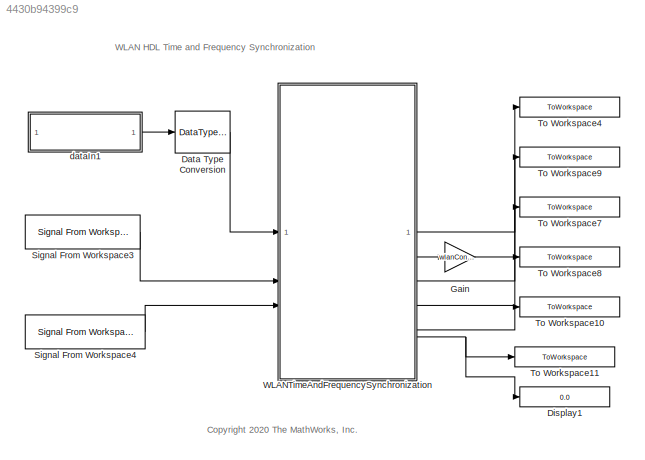
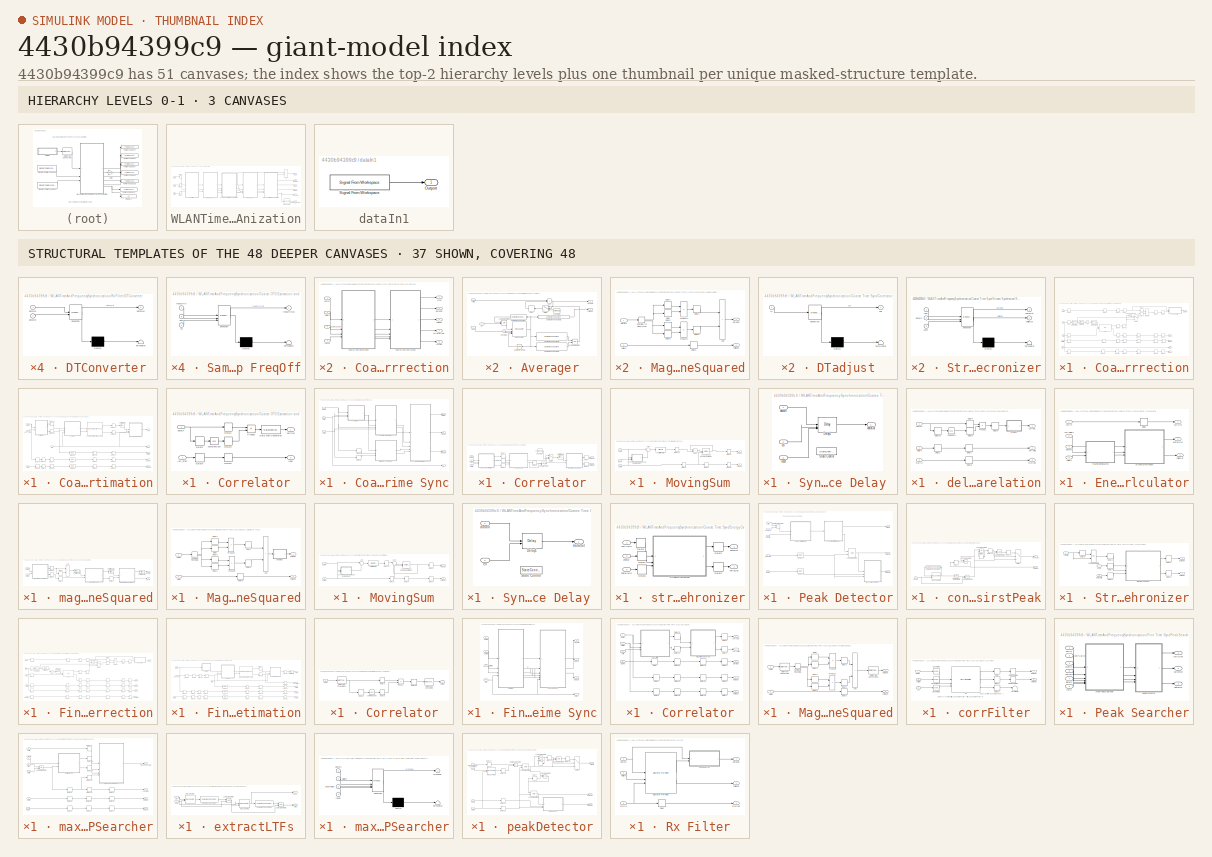
[diagram: thumbnail index - top-2 hierarchy levels (3 canvases) + 37 structural-template representatives of the remaining 48 canvases]
MODEL slx_4430b94399c9
KIND model
CONFIG AbsTol = auto
CONFIG EnableMultiTasking = off
CONFIG FixedStep = auto
CONFIG InitFcn = wlanFrontEndInit;
CONFIG MaxStep = auto
CONFIG MinStep = auto
CONFIG RelTol = 1e-3
CONFIG SampleTimeConstraint = Unconstrained
CONFIG SolverName = FixedStepDiscrete
CONFIG StartTime = 0.0
CONFIG StopTime = 10.0
BLOCK [DataTypeConversion] Data Type Conversion
  OutDataTypeStr = fixdt(1,16,12)
  RndMeth = Floor
  SaturateOnIntegerOverflow = off
BLOCK [Display] Display1
  Decimation = 1
BLOCK [Gain] Gain
  Gain = wlanConfig.Fs
BLOCK [Reference] Signal From Workspace3  REF=dspsrcs4/Signal From
Workspace
  SourceBlock = dspsrcs4/Signal From\nWorkspace
  SourceType = Signal From Workspace
BLOCK [Reference] Signal From Workspace4  REF=dspsrcs4/Signal From
Workspace
  SourceBlock = dspsrcs4/Signal From\nWorkspace
  SourceType = Signal From Workspace
BLOCK [ToWorkspace] To Workspace10
  FixptAsFi = on
  MaxDataPoints = inf
  SampleTime = -1
  Save2DSignal = 2-D array (concatenate along first dimension)
  VariableName = freqOffValid
BLOCK [ToWorkspace] To Workspace11
  FixptAsFi = on
  MaxDataPoints = inf
  SampleTime = -1
  Save2DSignal = 2-D array (concatenate along first dimension)
  VariableName = numPacketsDetected
BLOCK [ToWorkspace] To Workspace4
  FixptAsFi = on
  MaxDataPoints = inf
  SampleTime = -1
  Save2DSignal = 2-D array (concatenate along first dimension)
  VariableName = syncedData
BLOCK [ToWorkspace] To Workspace7
  FixptAsFi = on
  MaxDataPoints = inf
  SampleTime = -1
  Save2DSignal = 2-D array (concatenate along first dimension)
  VariableName = timeSyncPulse
BLOCK [ToWorkspace] To Workspace8
  FixptAsFi = on
  MaxDataPoints = inf
  SampleTime = -1
  Save2DSignal = 2-D array (concatenate along first dimension)
  VariableName = freqOffset
BLOCK [ToWorkspace] To Workspace9
  FixptAsFi = on
  MaxDataPoints = inf
  SampleTime = -1
  Save2DSignal = 2-D array (concatenate along first dimension)
  VariableName = validOut
BLOCK [SubSystem] WLANTimeAndFrequencySynchronization
BLOCK [Sum] WLANTimeAndFrequencySynchronization/Add
  IconShape = rectangular
BLOCK [SubSystem] WLANTimeAndFrequencySynchronization/Coarse CFO Estimation and Correction
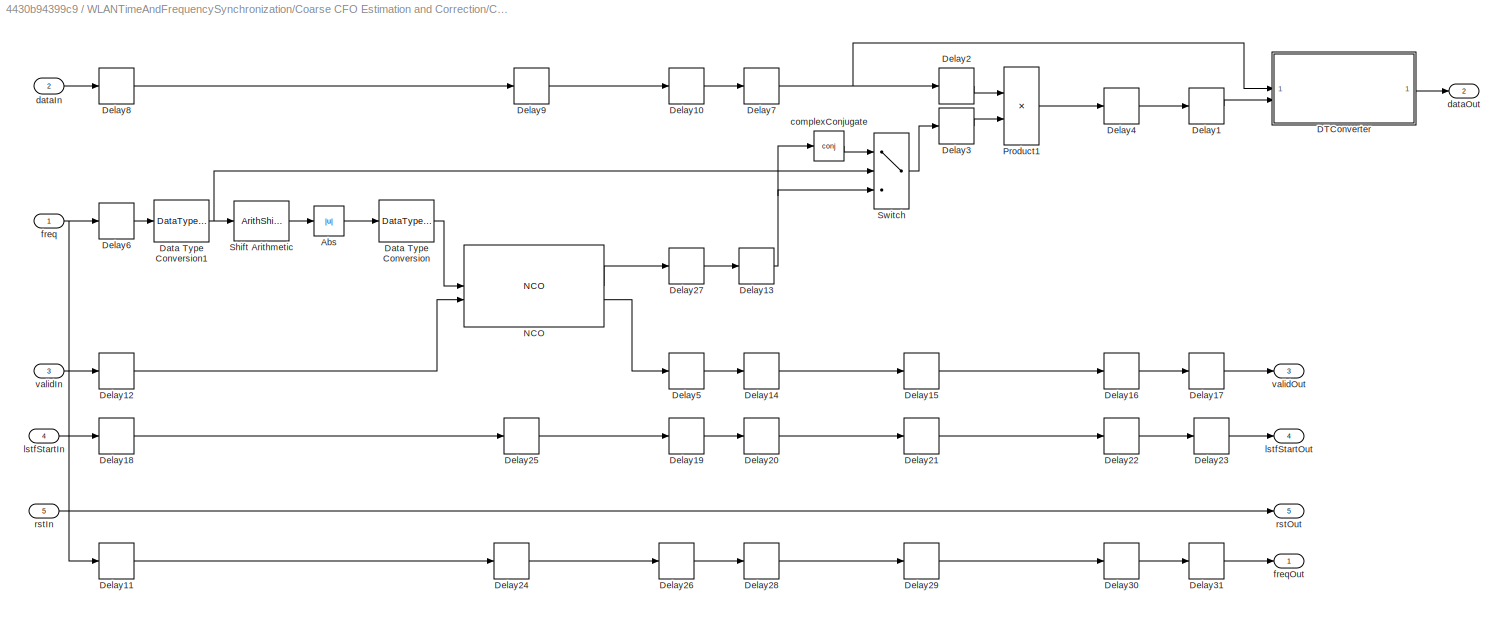
BLOCK [SubSystem] WLANTimeAndFrequencySynchronization/Coarse CFO Estimation and Correction/Coarse CFO Correction
BLOCK [Abs] WLANTimeAndFrequencySynchronization/Coarse CFO Estimation and Correction/Coarse CFO Correction/Abs
  SaturateOnIntegerOverflow = off
BLOCK [SubSystem] WLANTimeAndFrequencySynchronization/Coarse CFO Estimation and Correction/Coarse CFO Correction/DTConverter
  ErrorFcn = Stateflow.Translate.translate
  PermitHierarchicalResolution = ExplicitOnly
  SFBlockType = MATLAB Function
  TreatAsAtomicUnit = on
BLOCK [Demux] WLANTimeAndFrequencySynchronization/Coarse CFO Estimation and Correction/Coarse CFO Correction/DTConverter/ Demux 
  Outputs = 1
BLOCK [S-Function] WLANTimeAndFrequencySynchronization/Coarse CFO Estimation and Correction/Coarse CFO Correction/DTConverter/ SFunction 
  EnableBusSupport = off
  FunctionName = sf_sfun
  PortCounts = [2 2]
  SFcnIsStateOwnerBlock = off
  SFunctionDeploymentMode = off
  Tag = Stateflow S-Function 1
BLOCK [Terminator] WLANTimeAndFrequencySynchronization/Coarse CFO Estimation and Correction/Coarse CFO Correction/DTConverter/ Terminator 
BLOCK [Inport] WLANTimeAndFrequencySynchronization/Coarse CFO Estimation and Correction/Coarse CFO Correction/DTConverter/dataIn1
BLOCK [Inport] WLANTimeAndFrequencySynchronization/Coarse CFO Estimation and Correction/Coarse CFO Correction/DTConverter/dataIn2
  Port = 2
BLOCK [Outport] WLANTimeAndFrequencySynchronization/Coarse CFO Estimation and Correction/Coarse CFO Correction/DTConverter/dataOut
  VectorParamsAs1DForOutWhenUnconnected = off
BLOCK [DataTypeConversion] WLANTimeAndFrequencySynchronization/Coarse CFO Estimation and Correction/Coarse CFO Correction/Data Type Conversion
  OutDataTypeStr = uint16
  RndMeth = Round
  SaturateOnIntegerOverflow = off
BLOCK [DataTypeConversion] WLANTimeAndFrequencySynchronization/Coarse CFO Estimation and Correction/Coarse CFO Correction/Data Type Conversion1
  OutDataTypeStr = fixdt(1,36,18)
  RndMeth = Floor
  SaturateOnIntegerOverflow = off
BLOCK [Delay] WLANTimeAndFrequencySynchronization/Coarse CFO Estimation and Correction/Coarse CFO Correction/Delay1
  DelayLength = 1
  InitialCondition = 0
  InputPortMap = u0
  UseCircularBuffer = on
  UserDataPersistent = on
BLOCK [Delay] WLANTimeAndFrequencySynchronization/Coarse CFO Estimation and Correction/Coarse CFO Correction/Delay10
  DelayLength = 1
  InitialCondition = 0
  InputPortMap = u0
  UseCircularBuffer = on
  UserDataPersistent = on
BLOCK [Delay] WLANTimeAndFrequencySynchronization/Coarse CFO Estimation and Correction/Coarse CFO Correction/Delay11
  DelayLength = 1
  InitialCondition = 0
  InputPortMap = u0
  UseCircularBuffer = on
  UserDataPersistent = on
BLOCK [Delay] WLANTimeAndFrequencySynchronization/Coarse CFO Estimation and Correction/Coarse CFO Correction/Delay12
  DelayLength = 1
  InitialCondition = 0
  InputPortMap = u0
  UseCircularBuffer = on
  UserDataPersistent = on
BLOCK [Delay] WLANTimeAndFrequencySynchronization/Coarse CFO Estimation and Correction/Coarse CFO Correction/Delay13
  DelayLength = 1
  InitialCondition = 0
  InputPortMap = u0
  UseCircularBuffer = on
  UserDataPersistent = on
BLOCK [Delay] WLANTimeAndFrequencySynchronization/Coarse CFO Estimation and Correction/Coarse CFO Correction/Delay14
  DelayLength = 1
  InitialCondition = 0
  InputPortMap = u0
  UseCircularBuffer = on
  UserDataPersistent = on
BLOCK [Delay] WLANTimeAndFrequencySynchronization/Coarse CFO Estimation and Correction/Coarse CFO Correction/Delay15
  InitialCondition = 0
  InputPortMap = u0
  UseCircularBuffer = on
  UserDataPersistent = on
BLOCK [Delay] WLANTimeAndFrequencySynchronization/Coarse CFO Estimation and Correction/Coarse CFO Correction/Delay16
  InitialCondition = 0
  InputPortMap = u0
  UseCircularBuffer = on
  UserDataPersistent = on
BLOCK [Delay] WLANTimeAndFrequencySynchronization/Coarse CFO Estimation and Correction/Coarse CFO Correction/Delay17
  DelayLength = 1
  InitialCondition = 0
  InputPortMap = u0
  UseCircularBuffer = on
  UserDataPersistent = on
BLOCK [Delay] WLANTimeAndFrequencySynchronization/Coarse CFO Estimation and Correction/Coarse CFO Correction/Delay18
  DelayLength = 1
  InitialCondition = 0
  InputPortMap = u0
  UseCircularBuffer = on
  UserDataPersistent = on
BLOCK [Delay] WLANTimeAndFrequencySynchronization/Coarse CFO Estimation and Correction/Coarse CFO Correction/Delay19
  DelayLength = 1
  InitialCondition = 0
  InputPortMap = u0
  UseCircularBuffer = on
  UserDataPersistent = on
BLOCK [Delay] WLANTimeAndFrequencySynchronization/Coarse CFO Estimation and Correction/Coarse CFO Correction/Delay2
  InitialCondition = 0
  InputPortMap = u0
  UseCircularBuffer = on
  UserDataPersistent = on
BLOCK [Delay] WLANTimeAndFrequencySynchronization/Coarse CFO Estimation and Correction/Coarse CFO Correction/Delay20
  DelayLength = 1
  InitialCondition = 0
  InputPortMap = u0
  UseCircularBuffer = on
  UserDataPersistent = on
BLOCK [Delay] WLANTimeAndFrequencySynchronization/Coarse CFO Estimation and Correction/Coarse CFO Correction/Delay21
  InitialCondition = 0
  InputPortMap = u0
  UseCircularBuffer = on
  UserDataPersistent = on
BLOCK [Delay] WLANTimeAndFrequencySynchronization/Coarse CFO Estimation and Correction/Coarse CFO Correction/Delay22
  InitialCondition = 0
  InputPortMap = u0
  UseCircularBuffer = on
  UserDataPersistent = on
BLOCK [Delay] WLANTimeAndFrequencySynchronization/Coarse CFO Estimation and Correction/Coarse CFO Correction/Delay23
  DelayLength = 1
  InitialCondition = 0
  InputPortMap = u0
  UseCircularBuffer = on
  UserDataPersistent = on
BLOCK [Delay] WLANTimeAndFrequencySynchronization/Coarse CFO Estimation and Correction/Coarse CFO Correction/Delay24
  DelayLength = 6
  InitialCondition = 0
  InputPortMap = u0
  UseCircularBuffer = on
  UserDataPersistent = on
BLOCK [Delay] WLANTimeAndFrequencySynchronization/Coarse CFO Estimation and Correction/Coarse CFO Correction/Delay25
  DelayLength = 6
  InitialCondition = 0
  InputPortMap = u0
  UseCircularBuffer = on
  UserDataPersistent = on
BLOCK [Delay] WLANTimeAndFrequencySynchronization/Coarse CFO Estimation and Correction/Coarse CFO Correction/Delay26
  DelayLength = 1
  InitialCondition = 0
  InputPortMap = u0
  UseCircularBuffer = on
  UserDataPersistent = on
BLOCK [Delay] WLANTimeAndFrequencySynchronization/Coarse CFO Estimation and Correction/Coarse CFO Correction/Delay27
  DelayLength = 1
  InitialCondition = 0
  InputPortMap = u0
  UseCircularBuffer = on
  UserDataPersistent = on
BLOCK [Delay] WLANTimeAndFrequencySynchronization/Coarse CFO Estimation and Correction/Coarse CFO Correction/Delay28
  DelayLength = 1
  InitialCondition = 0
  InputPortMap = u0
  UseCircularBuffer = on
  UserDataPersistent = on
BLOCK [Delay] WLANTimeAndFrequencySynchronization/Coarse CFO Estimation and Correction/Coarse CFO Correction/Delay29
  InitialCondition = 0
  InputPortMap = u0
  UseCircularBuffer = on
  UserDataPersistent = on
BLOCK [Delay] WLANTimeAndFrequencySynchronization/Coarse CFO Estimation and Correction/Coarse CFO Correction/Delay3
  InitialCondition = 0
  InputPortMap = u0
  UseCircularBuffer = on
  UserDataPersistent = on
BLOCK [Delay] WLANTimeAndFrequencySynchronization/Coarse CFO Estimation and Correction/Coarse CFO Correction/Delay30
  InitialCondition = 0
  InputPortMap = u0
  UseCircularBuffer = on
  UserDataPersistent = on
BLOCK [Delay] WLANTimeAndFrequencySynchronization/Coarse CFO Estimation and Correction/Coarse CFO Correction/Delay31
  DelayLength = 1
  InitialCondition = 0
  InputPortMap = u0
  UseCircularBuffer = on
  UserDataPersistent = on
BLOCK [Delay] WLANTimeAndFrequencySynchronization/Coarse CFO Estimation and Correction/Coarse CFO Correction/Delay4
  InitialCondition = 0
  InputPortMap = u0
  UseCircularBuffer = on
  UserDataPersistent = on
BLOCK [Delay] WLANTimeAndFrequencySynchronization/Coarse CFO Estimation and Correction/Coarse CFO Correction/Delay5
  DelayLength = 1
  InitialCondition = 0
  InputPortMap = u0
  UseCircularBuffer = on
  UserDataPersistent = on
BLOCK [Delay] WLANTimeAndFrequencySynchronization/Coarse CFO Estimation and Correction/Coarse CFO Correction/Delay6
  DelayLength = 1
  InitialCondition = 0
  InputPortMap = u0
  UseCircularBuffer = on
  UserDataPersistent = on
BLOCK [Delay] WLANTimeAndFrequencySynchronization/Coarse CFO Estimation and Correction/Coarse CFO Correction/Delay7
  DelayLength = 1
  InitialCondition = 0
  InputPortMap = u0
  UseCircularBuffer = on
  UserDataPersistent = on
BLOCK [Delay] WLANTimeAndFrequencySynchronization/Coarse CFO Estimation and Correction/Coarse CFO Correction/Delay8
  DelayLength = 1
  InitialCondition = 0
  InputPortMap = u0
  UseCircularBuffer = on
  UserDataPersistent = on
BLOCK [Delay] WLANTimeAndFrequencySynchronization/Coarse CFO Estimation and Correction/Coarse CFO Correction/Delay9
  DelayLength = 6
  InitialCondition = 0
  InputPortMap = u0
  UseCircularBuffer = on
  UserDataPersistent = on
BLOCK [Reference] WLANTimeAndFrequencySynchronization/Coarse CFO Estimation and Correction/Coarse CFO Correction/NCO  REF=dsphdlsigops2/NCO
  SourceBlock = dsphdlsigops2/NCO
  SourceType = NCO
BLOCK [Product] WLANTimeAndFrequencySynchronization/Coarse CFO Estimation and Correction/Coarse CFO Correction/Product1
BLOCK [ArithShift] WLANTimeAndFrequencySynchronization/Coarse CFO Estimation and Correction/Coarse CFO Correction/Shift Arithmetic
  BitShiftDirection = Left
  BitShiftNumber = 16
  InputPortMap = u0
BLOCK [Switch] WLANTimeAndFrequencySynchronization/Coarse CFO Estimation and Correction/Coarse CFO Correction/Switch
  InputSameDT = off
  SaturateOnIntegerOverflow = off
BLOCK [Math] WLANTimeAndFrequencySynchronization/Coarse CFO Estimation and Correction/Coarse CFO Correction/complexConjugate
  Operator = conj
  SignedPower = on
BLOCK [Inport] WLANTimeAndFrequencySynchronization/Coarse CFO Estimation and Correction/Coarse CFO Correction/dataIn
  Port = 2
BLOCK [Outport] WLANTimeAndFrequencySynchronization/Coarse CFO Estimation and Correction/Coarse CFO Correction/dataOut
  Port = 2
  VectorParamsAs1DForOutWhenUnconnected = off
BLOCK [Inport] WLANTimeAndFrequencySynchronization/Coarse CFO Estimation and Correction/Coarse CFO Correction/freq
BLOCK [Outport] WLANTimeAndFrequencySynchronization/Coarse CFO Estimation and Correction/Coarse CFO Correction/freqOut
  VectorParamsAs1DForOutWhenUnconnected = off
BLOCK [Inport] WLANTimeAndFrequencySynchronization/Coarse CFO Estimation and Correction/Coarse CFO Correction/lstfStartIn
  Port = 4
BLOCK [Outport] WLANTimeAndFrequencySynchronization/Coarse CFO Estimation and Correction/Coarse CFO Correction/lstfStartOut
  Port = 4
  VectorParamsAs1DForOutWhenUnconnected = off
BLOCK [Inport] WLANTimeAndFrequencySynchronization/Coarse CFO Estimation and Correction/Coarse CFO Correction/rstIn
  Port = 5
BLOCK [Outport] WLANTimeAndFrequencySynchronization/Coarse CFO Estimation and Correction/Coarse CFO Correction/rstOut
  Port = 5
  VectorParamsAs1DForOutWhenUnconnected = off
BLOCK [Inport] WLANTimeAndFrequencySynchronization/Coarse CFO Estimation and Correction/Coarse CFO Correction/validIn
  Port = 3
BLOCK [Outport] WLANTimeAndFrequencySynchronization/Coarse CFO Estimation and Correction/Coarse CFO Correction/validOut
  Port = 3
  VectorParamsAs1DForOutWhenUnconnected = off
BLOCK [SubSystem] WLANTimeAndFrequencySynchronization/Coarse CFO Estimation and Correction/Coarse CFO Estimation
BLOCK [SubSystem] WLANTimeAndFrequencySynchronization/Coarse CFO Estimation and Correction/Coarse CFO Estimation/Averager
BLOCK [Reference] WLANTimeAndFrequencySynchronization/Coarse CFO Estimation and Correction/Coarse CFO Estimation/Averager/Compare To Constant  REF=simulink/Logic and Bit
Operations/Compare
To Constant
  SourceBlock = simulink/Logic and Bit\nOperations/Compare\nTo Constant
  SourceType = Compare To Constant
BLOCK [Reference] WLANTimeAndFrequencySynchronization/Coarse CFO Estimation and Correction/Coarse CFO Estimation/Averager/Compare To Constant1  REF=simulink/Logic and Bit
Operations/Compare
To Constant
  SourceBlock = simulink/Logic and Bit\nOperations/Compare\nTo Constant
  SourceType = Compare To Constant
BLOCK [Reference] WLANTimeAndFrequencySynchronization/Coarse CFO Estimation and Correction/Coarse CFO Estimation/Averager/Compare To Constant2  REF=simulink/Logic and Bit
Operations/Compare
To Constant
  SourceBlock = simulink/Logic and Bit\nOperations/Compare\nTo Constant
  SourceType = Compare To Constant
BLOCK [Reference] WLANTimeAndFrequencySynchronization/Coarse CFO Estimation and Correction/Coarse CFO Estimation/Averager/Compare To Constant3  REF=simulink/Logic and Bit
Operations/Compare
To Constant
  SourceBlock = simulink/Logic and Bit\nOperations/Compare\nTo Constant
  SourceType = Compare To Constant
BLOCK [Reference] WLANTimeAndFrequencySynchronization/Coarse CFO Estimation and Correction/Coarse CFO Estimation/Averager/Compare To Zero  REF=simulink/Logic and Bit
Operations/Compare
To Zero
  SourceBlock = simulink/Logic and Bit\nOperations/Compare\nTo Zero
  SourceType = Compare To Zero
BLOCK [Constant] WLANTimeAndFrequencySynchronization/Coarse CFO Estimation and Correction/Coarse CFO Estimation/Averager/Constant
  OutDataTypeStr = uint16
  SampleTime = -1
BLOCK [Constant] WLANTimeAndFrequencySynchronization/Coarse CFO Estimation and Correction/Coarse CFO Estimation/Averager/Constant1
  OutDataTypeStr = Inherit: Inherit via back propagation
  SampleTime = -1
  Value = complex(0,0)
BLOCK [Delay] WLANTimeAndFrequencySynchronization/Coarse CFO Estimation and Correction/Coarse CFO Estimation/Averager/Delay
  DelayLength = 1
  InputPortMap = u0
BLOCK [Reference] WLANTimeAndFrequencySynchronization/Coarse CFO Estimation and Correction/Coarse CFO Estimation/Averager/HDL Counter  REF=hdlsllib/Sources/HDL Counter
  SourceBlock = hdlsllib/Sources/HDL Counter
  SourceType = HDL Counter
BLOCK [Logic] WLANTimeAndFrequencySynchronization/Coarse CFO Estimation and Correction/Coarse CFO Estimation/Averager/Logical Operator
  AllPortsSameDT = off
  OutDataTypeStr = boolean
BLOCK [Logic] WLANTimeAndFrequencySynchronization/Coarse CFO Estimation and Correction/Coarse CFO Estimation/Averager/Logical Operator1
  AllPortsSameDT = off
  Operator = OR
  OutDataTypeStr = boolean
BLOCK [Sum] WLANTimeAndFrequencySynchronization/Coarse CFO Estimation and Correction/Coarse CFO Estimation/Averager/Sum
  IconShape = rectangular
  OutDataTypeStr = Inherit: Same as first input
BLOCK [Switch] WLANTimeAndFrequencySynchronization/Coarse CFO Estimation and Correction/Coarse CFO Estimation/Averager/Switch
  Criteria = u2 ~= 0
  InputSameDT = off
  SaturateOnIntegerOverflow = off
  Threshold = 1
BLOCK [Outport] WLANTimeAndFrequencySynchronization/Coarse CFO Estimation and Correction/Coarse CFO Estimation/Averager/avgCorr
BLOCK [Inport] WLANTimeAndFrequencySynchronization/Coarse CFO Estimation and Correction/Coarse CFO Estimation/Averager/corrIn
BLOCK [Inport] WLANTimeAndFrequencySynchronization/Coarse CFO Estimation and Correction/Coarse CFO Estimation/Averager/load
  Port = 2
BLOCK [Inport] WLANTimeAndFrequencySynchronization/Coarse CFO Estimation and Correction/Coarse CFO Estimation/Averager/rst
  Port = 3
BLOCK [Outport] WLANTimeAndFrequencySynchronization/Coarse CFO Estimation and Correction/Coarse CFO Estimation/Averager/validOut
  Port = 2
BLOCK [Reference] WLANTimeAndFrequencySynchronization/Coarse CFO Estimation and Correction/Coarse CFO Estimation/Complex to Magnitude-Angle  REF=dsphdlmathfun2/Complex to Magnitude-Angle
  SourceBlock = dsphdlmathfun2/Complex to Magnitude-Angle
  SourceType = Complex to Magnitude-Angle
BLOCK [SubSystem] WLANTimeAndFrequencySynchronization/Coarse CFO Estimation and Correction/Coarse CFO Estimation/Correlator
BLOCK [DataTypeConversion] WLANTimeAndFrequencySynchronization/Coarse CFO Estimation and Correction/Coarse CFO Estimation/Correlator/Data Type Conversion
  OutDataTypeStr = fixdt(1,31,19)
  RndMeth = Floor
  SaturateOnIntegerOverflow = off
BLOCK [Delay] WLANTimeAndFrequencySynchronization/Coarse CFO Estimation and Correction/Coarse CFO Estimation/Correlator/Delay1
  InitialCondition = 0
  InputPortMap = u0
  UseCircularBuffer = on
  UserDataPersistent = on
BLOCK [Delay] WLANTimeAndFrequencySynchronization/Coarse CFO Estimation and Correction/Coarse CFO Estimation/Correlator/Delay2
  DelayLength = wlanConfig.lstfLen
  InitialCondition = 0
  InputPortMap = u0
BLOCK [Delay] WLANTimeAndFrequencySynchronization/Coarse CFO Estimation and Correction/Coarse CFO Estimation/Correlator/Delay3
  InitialCondition = 0
  InputPortMap = u0
  UseCircularBuffer = on
  UserDataPersistent = on
BLOCK [Delay] WLANTimeAndFrequencySynchronization/Coarse CFO Estimation and Correction/Coarse CFO Estimation/Correlator/Delay4
  DelayLength = wlanConfig.lstfLen
  InitialCondition = 0
  InputPortMap = u0
BLOCK [Delay] WLANTimeAndFrequencySynchronization/Coarse CFO Estimation and Correction/Coarse CFO Estimation/Correlator/Delay5
  InitialCondition = 0
  InputPortMap = u0
  UseCircularBuffer = on
  UserDataPersistent = on
BLOCK [Product] WLANTimeAndFrequencySynchronization/Coarse CFO Estimation and Correction/Coarse CFO Estimation/Correlator/Product
  RndMeth = Round
BLOCK [Math] WLANTimeAndFrequencySynchronization/Coarse CFO Estimation and Correction/Coarse CFO Estimation/Correlator/complexConj
  Operator = conj
  SaturateOnIntegerOverflow = off
  SignedPower = on
BLOCK [Outport] WLANTimeAndFrequencySynchronization/Coarse CFO Estimation and Correction/Coarse CFO Estimation/Correlator/corrOut
BLOCK [Inport] WLANTimeAndFrequencySynchronization/Coarse CFO Estimation and Correction/Coarse CFO Estimation/Correlator/dataIn
BLOCK [Outport] WLANTimeAndFrequencySynchronization/Coarse CFO Estimation and Correction/Coarse CFO Estimation/Correlator/load
  Port = 2
BLOCK [Inport] WLANTimeAndFrequencySynchronization/Coarse CFO Estimation and Correction/Coarse CFO Estimation/Correlator/lstf_start
  Port = 2
BLOCK [Delay] WLANTimeAndFrequencySynchronization/Coarse CFO Estimation and Correction/Coarse CFO Estimation/Delay10
  DelayLength = wlanConfig.lstfLen
  InitialCondition = 0
  InputPortMap = u0
BLOCK [Delay] WLANTimeAndFrequencySynchronization/Coarse CFO Estimation and Correction/Coarse CFO Estimation/Delay11
  DelayLength = 1
  InitialCondition = 0
  InputPortMap = u0
  UseCircularBuffer = on
  UserDataPersistent = on
BLOCK [Delay] WLANTimeAndFrequencySynchronization/Coarse CFO Estimation and Correction/Coarse CFO Estimation/Delay13
  DelayLength = 1
  InitialCondition = 0
  InputPortMap = u0
  UseCircularBuffer = on
  UserDataPersistent = on
BLOCK [Delay] WLANTimeAndFrequencySynchronization/Coarse CFO Estimation and Correction/Coarse CFO Estimation/Delay14
  DelayLength = wlanConfig.lstfLen
  InitialCondition = 0
  InputPortMap = u0
BLOCK [Delay] WLANTimeAndFrequencySynchronization/Coarse CFO Estimation and Correction/Coarse CFO Estimation/Delay15
  InitialCondition = 0
  InputPortMap = u0
  UseCircularBuffer = on
  UserDataPersistent = on
BLOCK [Delay] WLANTimeAndFrequencySynchronization/Coarse CFO Estimation and Correction/Coarse CFO Estimation/Delay16
  DelayLength = 1
  InitialCondition = 0
  InputPortMap = u0
  UseCircularBuffer = on
  UserDataPersistent = on
BLOCK [Delay] WLANTimeAndFrequencySynchronization/Coarse CFO Estimation and Correction/Coarse CFO Estimation/Delay17
  DelayLength = 1
  InitialCondition = 0
  InputPortMap = u0
  UseCircularBuffer = on
  UserDataPersistent = on
BLOCK [Delay] WLANTimeAndFrequencySynchronization/Coarse CFO Estimation and Correction/Coarse CFO Estimation/Delay21
  DelayLength = 1
  InitialCondition = 0
  InputPortMap = u0
  UseCircularBuffer = on
  UserDataPersistent = on
BLOCK [Delay] WLANTimeAndFrequencySynchronization/Coarse CFO Estimation and Correction/Coarse CFO Estimation/Delay22
  DelayLength = 35
  InitialCondition = 0
  InputPortMap = u0
  UseCircularBuffer = on
  UserDataPersistent = on
BLOCK [Delay] WLANTimeAndFrequencySynchronization/Coarse CFO Estimation and Correction/Coarse CFO Estimation/Delay23
  DelayLength = round(wlanConfig.lstfLen*0.75)+8*wlanConfig.lstfLen-1
  InitialCondition = 0
  InputPortMap = u0
  UseCircularBuffer = on
  UserDataPersistent = on
BLOCK [Delay] WLANTimeAndFrequencySynchronization/Coarse CFO Estimation and Correction/Coarse CFO Estimation/Delay24
  DelayLength = 1
  InputPortMap = u0
BLOCK [Delay] WLANTimeAndFrequencySynchronization/Coarse CFO Estimation and Correction/Coarse CFO Estimation/Delay25
  DelayLength = 1
  InputPortMap = u0
BLOCK [Delay] WLANTimeAndFrequencySynchronization/Coarse CFO Estimation and Correction/Coarse CFO Estimation/Delay26
  DelayLength = 1
  InputPortMap = u0
BLOCK [Delay] WLANTimeAndFrequencySynchronization/Coarse CFO Estimation and Correction/Coarse CFO Estimation/Delay27
  DelayLength = 1
  InputPortMap = u0
BLOCK [Delay] WLANTimeAndFrequencySynchronization/Coarse CFO Estimation and Correction/Coarse CFO Estimation/Delay4
  DelayLength = 35
  InitialCondition = 0
  InputPortMap = u0
  UseCircularBuffer = on
  UserDataPersistent = on
BLOCK [Delay] WLANTimeAndFrequencySynchronization/Coarse CFO Estimation and Correction/Coarse CFO Estimation/Delay5
  DelayLength = 35
  InitialCondition = 0
  InputPortMap = u0
  UseCircularBuffer = on
  UserDataPersistent = on
BLOCK [Delay] WLANTimeAndFrequencySynchronization/Coarse CFO Estimation and Correction/Coarse CFO Estimation/Delay6
  InitialCondition = 0
  InputPortMap = u0
  UseCircularBuffer = on
  UserDataPersistent = on
BLOCK [Delay] WLANTimeAndFrequencySynchronization/Coarse CFO Estimation and Correction/Coarse CFO Estimation/Delay7
  DelayLength = round(wlanConfig.lstfLen*0.75)+8*wlanConfig.lstfLen-1
  InitialCondition = 0
  InputPortMap = u0
  UseCircularBuffer = on
  UserDataPersistent = on
BLOCK [Delay] WLANTimeAndFrequencySynchronization/Coarse CFO Estimation and Correction/Coarse CFO Estimation/Delay9
  DelayLength = round(wlanConfig.lstfLen*0.75)+8*wlanConfig.lstfLen-1
  InitialCondition = 0
  InputPortMap = u0
  UseCircularBuffer = on
  UserDataPersistent = on
BLOCK [Outport] WLANTimeAndFrequencySynchronization/Coarse CFO Estimation and Correction/Coarse CFO Estimation/Freq
  VectorParamsAs1DForOutWhenUnconnected = off
BLOCK [Inport] WLANTimeAndFrequencySynchronization/Coarse CFO Estimation and Correction/Coarse CFO Estimation/LSTF_start
  Port = 3
BLOCK [SubSystem] WLANTimeAndFrequencySynchronization/Coarse CFO Estimation and Correction/Coarse CFO Estimation/Sample FreqOff
  ErrorFcn = Stateflow.Translate.translate
  PermitHierarchicalResolution = ExplicitOnly
  SFBlockType = MATLAB Function
  TreatAsAtomicUnit = on
BLOCK [Demux] WLANTimeAndFrequencySynchronization/Coarse CFO Estimation and Correction/Coarse CFO Estimation/Sample FreqOff/ Demux 
  Outputs = 1
BLOCK [S-Function] WLANTimeAndFrequencySynchronization/Coarse CFO Estimation and Correction/Coarse CFO Estimation/Sample FreqOff/ SFunction 
  EnableBusSupport = off
  FunctionName = sf_sfun
  PortCounts = [3 2]
  SFcnIsStateOwnerBlock = off
  SFunctionDeploymentMode = off
  Tag = Stateflow S-Function 12
BLOCK [Terminator] WLANTimeAndFrequencySynchronization/Coarse CFO Estimation and Correction/Coarse CFO Estimation/Sample FreqOff/ Terminator 
BLOCK [Inport] WLANTimeAndFrequencySynchronization/Coarse CFO Estimation and Correction/Coarse CFO Estimation/Sample FreqOff/enb
  Port = 2
BLOCK [Inport] WLANTimeAndFrequencySynchronization/Coarse CFO Estimation and Correction/Coarse CFO Estimation/Sample FreqOff/freqOffIn
BLOCK [Outport] WLANTimeAndFrequencySynchronization/Coarse CFO Estimation and Correction/Coarse CFO Estimation/Sample FreqOff/freqOffOut
  VectorParamsAs1DForOutWhenUnconnected = off
BLOCK [Inport] WLANTimeAndFrequencySynchronization/Coarse CFO Estimation and Correction/Coarse CFO Estimation/Sample FreqOff/rst
  Port = 3
BLOCK [ArithShift] WLANTimeAndFrequencySynchronization/Coarse CFO Estimation and Correction/Coarse CFO Estimation/Shift Arithmetic
  BitShiftDirection = Right
  BitShiftNumber = log2(2*wlanConfig.lstfLen)
  InputPortMap = u0
BLOCK [Inport] WLANTimeAndFrequencySynchronization/Coarse CFO Estimation and Correction/Coarse CFO Estimation/dataIn
BLOCK [Outport] WLANTimeAndFrequencySynchronization/Coarse CFO Estimation and Correction/Coarse CFO Estimation/dataOut
  Port = 2
  VectorParamsAs1DForOutWhenUnconnected = off
BLOCK [Outport] WLANTimeAndFrequencySynchronization/Coarse CFO Estimation and Correction/Coarse CFO Estimation/lstfStart
  Port = 4
  VectorParamsAs1DForOutWhenUnconnected = off
BLOCK [Inport] WLANTimeAndFrequencySynchronization/Coarse CFO Estimation and Correction/Coarse CFO Estimation/rstIn
  Port = 4
BLOCK [Outport] WLANTimeAndFrequencySynchronization/Coarse CFO Estimation and Correction/Coarse CFO Estimation/rstOut
  Port = 5
  VectorParamsAs1DForOutWhenUnconnected = off
BLOCK [Outport] WLANTimeAndFrequencySynchronization/Coarse CFO Estimation and Correction/Coarse CFO Estimation/validData
  Port = 3
  VectorParamsAs1DForOutWhenUnconnected = off
BLOCK [Inport] WLANTimeAndFrequencySynchronization/Coarse CFO Estimation and Correction/Coarse CFO Estimation/validIn
  Port = 2
BLOCK [Outport] WLANTimeAndFrequencySynchronization/Coarse CFO Estimation and Correction/Freq
BLOCK [Inport] WLANTimeAndFrequencySynchronization/Coarse CFO Estimation and Correction/LSTF_start
  Port = 3
BLOCK [Inport] WLANTimeAndFrequencySynchronization/Coarse CFO Estimation and Correction/dataIn
BLOCK [Outport] WLANTimeAndFrequencySynchronization/Coarse CFO Estimation and Correction/dataOut
  Port = 2
BLOCK [Outport] WLANTimeAndFrequencySynchronization/Coarse CFO Estimation and Correction/lstfStartOut
  Port = 4
BLOCK [Inport] WLANTimeAndFrequencySynchronization/Coarse CFO Estimation and Correction/rstIn
  Port = 4
BLOCK [Outport] WLANTimeAndFrequencySynchronization/Coarse CFO Estimation and Correction/rstOut
  Port = 5
BLOCK [Inport] WLANTimeAndFrequencySynchronization/Coarse CFO Estimation and Correction/validIn
  Port = 2
BLOCK [Outport] WLANTimeAndFrequencySynchronization/Coarse CFO Estimation and Correction/validOut
  Port = 3
BLOCK [SubSystem] WLANTimeAndFrequencySynchronization/Coarse Time Sync
BLOCK [SubSystem] WLANTimeAndFrequencySynchronization/Coarse Time Sync/Correlator
BLOCK [Constant] WLANTimeAndFrequencySynchronization/Coarse Time Sync/Correlator/Constant
  OutDataTypeStr = Inherit: Inherit via back propagation
  SampleTime = -1
  Value = complex(0,0)
  VectorParams1D = off
BLOCK [Delay] WLANTimeAndFrequencySynchronization/Coarse Time Sync/Correlator/Delay
  InputPortMap = u0
BLOCK [Delay] WLANTimeAndFrequencySynchronization/Coarse Time Sync/Correlator/Delay1
  DelayLength = 1
  InputPortMap = u0
BLOCK [Delay] WLANTimeAndFrequencySynchronization/Coarse Time Sync/Correlator/Delay2
  DelayLength = wlanConfig.lstfLen-1
  InputPortMap = u0
BLOCK [Delay] WLANTimeAndFrequencySynchronization/Coarse Time Sync/Correlator/Delay3
  InputPortMap = u0
BLOCK [Delay] WLANTimeAndFrequencySynchronization/Coarse Time Sync/Correlator/Delay4
  DelayLength = 1
  InputPortMap = u0
BLOCK [Delay] WLANTimeAndFrequencySynchronization/Coarse Time Sync/Correlator/Delay5
  DelayLength = 1
  InputPortMap = u0
BLOCK [Logic] WLANTimeAndFrequencySynchronization/Coarse Time Sync/Correlator/Logical Operator
  AllPortsSameDT = off
  OutDataTypeStr = boolean
BLOCK [SubSystem] WLANTimeAndFrequencySynchronization/Coarse Time Sync/Correlator/MagnitudeSquared
BLOCK [Sum] WLANTimeAndFrequencySynchronization/Coarse Time Sync/Correlator/MagnitudeSquared/Add
  AccumDataTypeStr = Inherit: Same as first input
  IconShape = rectangular
  OutDataTypeStr = Inherit: Same as accumulator
BLOCK [ComplexToRealImag] WLANTimeAndFrequencySynchronization/Coarse Time Sync/Correlator/MagnitudeSquared/Complex to Real-Imag
BLOCK [Delay] WLANTimeAndFrequencySynchronization/Coarse Time Sync/Correlator/MagnitudeSquared/Delay
  InputPortMap = u0
BLOCK [Delay] WLANTimeAndFrequencySynchronization/Coarse Time Sync/Correlator/MagnitudeSquared/Delay1
  InputPortMap = u0
BLOCK [Delay] WLANTimeAndFrequencySynchronization/Coarse Time Sync/Correlator/MagnitudeSquared/Delay2
  InputPortMap = u0
BLOCK [Delay] WLANTimeAndFrequencySynchronization/Coarse Time Sync/Correlator/MagnitudeSquared/Delay3
  InputPortMap = u0
BLOCK [Delay] WLANTimeAndFrequencySynchronization/Coarse Time Sync/Correlator/MagnitudeSquared/Delay4
  DelayLength = 1
  InputPortMap = u0
BLOCK [Delay] WLANTimeAndFrequencySynchronization/Coarse Time Sync/Correlator/MagnitudeSquared/Delay5
  DelayLength = 1
  InputPortMap = u0
BLOCK [Delay] WLANTimeAndFrequencySynchronization/Coarse Time Sync/Correlator/MagnitudeSquared/Delay6
  DelayLength = 3
  InputPortMap = u0
BLOCK [Product] WLANTimeAndFrequencySynchronization/Coarse Time Sync/Correlator/MagnitudeSquared/Product1
BLOCK [Product] WLANTimeAndFrequencySynchronization/Coarse Time Sync/Correlator/MagnitudeSquared/Product4
BLOCK [Inport] WLANTimeAndFrequencySynchronization/Coarse Time Sync/Correlator/MagnitudeSquared/dataIn
  NameLocation = top
BLOCK [Outport] WLANTimeAndFrequencySynchronization/Coarse Time Sync/Correlator/MagnitudeSquared/dataOut
  VectorParamsAs1DForOutWhenUnconnected = off
BLOCK [Inport] WLANTimeAndFrequencySynchronization/Coarse Time Sync/Correlator/MagnitudeSquared/validIn
  NameLocation = top
  Port = 2
BLOCK [Outport] WLANTimeAndFrequencySynchronization/Coarse Time Sync/Correlator/MagnitudeSquared/validOut
  Port = 2
  VectorParamsAs1DForOutWhenUnconnected = off
BLOCK [SubSystem] WLANTimeAndFrequencySynchronization/Coarse Time Sync/Correlator/MovingSum
  InitFcn = Simulink.suppressDiagnostic(gcb, 'SimulinkFixedPoint:util:Overflowoccurred');
BLOCK [Sum] WLANTimeAndFrequencySynchronization/Coarse Time Sync/Correlator/MovingSum/Add
  Inputs = |+-
  OutDataTypeStr = Inherit: Same as accumulator
BLOCK [Sum] WLANTimeAndFrequencySynchronization/Coarse Time Sync/Correlator/MovingSum/Add1
  AccumDataTypeStr = Inherit: Same as first input
  IconShape = rectangular
  OutDataTypeStr = Inherit: Same as first input
BLOCK [Delay] WLANTimeAndFrequencySynchronization/Coarse Time Sync/Correlator/MovingSum/Delay12
  DelayLength = 1
  InitialCondition = 0
  InputPortMap = u0
BLOCK [Delay] WLANTimeAndFrequencySynchronization/Coarse Time Sync/Correlator/MovingSum/Delay3
  DelayLength = 1
  InitialCondition = 0
  InputPortMap = u0
BLOCK [Delay] WLANTimeAndFrequencySynchronization/Coarse Time Sync/Correlator/MovingSum/Delay4
  DelayLength = 1
  InitialCondition = 0
  InputPortMap = u0
BLOCK [Delay] WLANTimeAndFrequencySynchronization/Coarse Time Sync/Correlator/MovingSum/Delay5
  DelayLength = 1
  InitialCondition = 0
  InputPortMap = u0
BLOCK [Delay] WLANTimeAndFrequencySynchronization/Coarse Time Sync/Correlator/MovingSum/Delay6
  DelayLength = 1
  InitialCondition = 0
  InputPortMap = u0
BLOCK [ArithShift] WLANTimeAndFrequencySynchronization/Coarse Time Sync/Correlator/MovingSum/Shift Arithmetic
  BitShiftDirection = Right
  BitShiftNumber = 1
  InputPortMap = u0
BLOCK [SubSystem] WLANTimeAndFrequencySynchronization/Coarse Time Sync/Correlator/MovingSum/Synchronous Enabled 128 Sample Delay 
BLOCK [Delay] WLANTimeAndFrequencySynchronization/Coarse Time Sync/Correlator/MovingSum/Synchronous Enabled 128 Sample Delay /Delay1
  DelayLength = wlanConfig.lstfLen
  ExternalReset = Level hold
  InitialCondition = 0
  InputPortMap = u0,e6,r5
  ShowEnablePort = on
  UserDataPersistent = on
BLOCK [StateControl] WLANTimeAndFrequencySynchronization/Coarse Time Sync/Correlator/MovingSum/Synchronous Enabled 128 Sample Delay /State Control
  StateControl = Synchronous
BLOCK [Inport] WLANTimeAndFrequencySynchronization/Coarse Time Sync/Correlator/MovingSum/Synchronous Enabled 128 Sample Delay /dataIn
BLOCK [Outport] WLANTimeAndFrequencySynchronization/Coarse Time Sync/Correlator/MovingSum/Synchronous Enabled 128 Sample Delay /dataOut
  VectorParamsAs1DForOutWhenUnconnected = off
BLOCK [Inport] WLANTimeAndFrequencySynchronization/Coarse Time Sync/Correlator/MovingSum/Synchronous Enabled 128 Sample Delay /en
  Port = 2
BLOCK [Inport] WLANTimeAndFrequencySynchronization/Coarse Time Sync/Correlator/MovingSum/Synchronous Enabled 128 Sample Delay /reset
  Port = 3
BLOCK [Reference] WLANTimeAndFrequencySynchronization/Coarse Time Sync/Correlator/MovingSum/Synchronous Enabled Unit Delay  REF=hdlsllib/Discrete/Unit Delay Enabled
Synchronous
  SourceBlock = hdlsllib/Discrete/Unit Delay Enabled\nSynchronous
  SourceType = Unit Delay Enabled Synchronous
BLOCK [Inport] WLANTimeAndFrequencySynchronization/Coarse Time Sync/Correlator/MovingSum/dataIn
BLOCK [Outport] WLANTimeAndFrequencySynchronization/Coarse Time Sync/Correlator/MovingSum/dataOut
  VectorParamsAs1DForOutWhenUnconnected = off
BLOCK [Inport] WLANTimeAndFrequencySynchronization/Coarse Time Sync/Correlator/MovingSum/reset
  Port = 3
BLOCK [Inport] WLANTimeAndFrequencySynchronization/Coarse Time Sync/Correlator/MovingSum/validIn
  Port = 2
BLOCK [Outport] WLANTimeAndFrequencySynchronization/Coarse Time Sync/Correlator/MovingSum/validOut
  Port = 2
  VectorParamsAs1DForOutWhenUnconnected = off
BLOCK [ArithShift] WLANTimeAndFrequencySynchronization/Coarse Time Sync/Correlator/Shift Arithmetic
  BitShiftDirection = Right
  BitShiftNumber = log2(wlanConfig.lstfLen)
  InputPortMap = u0
BLOCK [Switch] WLANTimeAndFrequencySynchronization/Coarse Time Sync/Correlator/Switch
  Criteria = u2 > Threshold
  InputSameDT = off
  SaturateOnIntegerOverflow = off
BLOCK [Inport] WLANTimeAndFrequencySynchronization/Coarse Time Sync/Correlator/dataIn
BLOCK [Outport] WLANTimeAndFrequencySynchronization/Coarse Time Sync/Correlator/dataOut
BLOCK [SubSystem] WLANTimeAndFrequencySynchronization/Coarse Time Sync/Correlator/delayedCorrelation
BLOCK [Math] WLANTimeAndFrequencySynchronization/Coarse Time Sync/Correlator/delayedCorrelation/Conjugate
  Operator = conj
  RndMeth = Zero
  SignedPower = on
BLOCK [SubSystem] WLANTimeAndFrequencySynchronization/Coarse Time Sync/Correlator/delayedCorrelation/DTadjust
  ErrorFcn = Stateflow.Translate.translate
  PermitHierarchicalResolution = ExplicitOnly
  SFBlockType = MATLAB Function
  TreatAsAtomicUnit = on
BLOCK [Demux] WLANTimeAndFrequencySynchronization/Coarse Time Sync/Correlator/delayedCorrelation/DTadjust/ Demux 
  Outputs = 1
BLOCK [S-Function] WLANTimeAndFrequencySynchronization/Coarse Time Sync/Correlator/delayedCorrelation/DTadjust/ SFunction 
  EnableBusSupport = off
  FunctionName = sf_sfun
  Parameters = wlanConfig
  PortCounts = [1 2]
  SFcnIsStateOwnerBlock = off
  SFunctionDeploymentMode = off
  Tag = Stateflow S-Function 3
BLOCK [Terminator] WLANTimeAndFrequencySynchronization/Coarse Time Sync/Correlator/delayedCorrelation/DTadjust/ Terminator 
BLOCK [Inport] WLANTimeAndFrequencySynchronization/Coarse Time Sync/Correlator/delayedCorrelation/DTadjust/in
BLOCK [Outport] WLANTimeAndFrequencySynchronization/Coarse Time Sync/Correlator/delayedCorrelation/DTadjust/out
  VectorParamsAs1DForOutWhenUnconnected = off
BLOCK [Delay] WLANTimeAndFrequencySynchronization/Coarse Time Sync/Correlator/delayedCorrelation/Delay1
  DelayLength = wlanConfig.lstfLen
  InputPortMap = u0
BLOCK [Delay] WLANTimeAndFrequencySynchronization/Coarse Time Sync/Correlator/delayedCorrelation/Delay16
  DelayLength = wlanConfig.lstfLen
  InputPortMap = u0
BLOCK [Delay] WLANTimeAndFrequencySynchronization/Coarse Time Sync/Correlator/delayedCorrelation/Delay4
  InputPortMap = u0
BLOCK [Delay] WLANTimeAndFrequencySynchronization/Coarse Time Sync/Correlator/delayedCorrelation/Delay5
  InputPortMap = u0
BLOCK [Delay] WLANTimeAndFrequencySynchronization/Coarse Time Sync/Correlator/delayedCorrelation/Delay6
  DelayLength = 1
  InputPortMap = u0
BLOCK [Delay] WLANTimeAndFrequencySynchronization/Coarse Time Sync/Correlator/delayedCorrelation/Delay7
  DelayLength = 3
  InputPortMap = u0
BLOCK [Delay] WLANTimeAndFrequencySynchronization/Coarse Time Sync/Correlator/delayedCorrelation/Delay8
  DelayLength = 3
  InputPortMap = u0
BLOCK [Product] WLANTimeAndFrequencySynchronization/Coarse Time Sync/Correlator/delayedCorrelation/Product
BLOCK [Outport] WLANTimeAndFrequencySynchronization/Coarse Time Sync/Correlator/delayedCorrelation/corrOut
BLOCK [Outport] WLANTimeAndFrequencySynchronization/Coarse Time Sync/Correlator/delayedCorrelation/corrValid
  Port = 2
BLOCK [Inport] WLANTimeAndFrequencySynchronization/Coarse Time Sync/Correlator/delayedCorrelation/dataIn
BLOCK [Inport] WLANTimeAndFrequencySynchronization/Coarse Time Sync/Correlator/delayedCorrelation/startIn
  Port = 3
BLOCK [Outport] WLANTimeAndFrequencySynchronization/Coarse Time Sync/Correlator/delayedCorrelation/startOut
  Port = 3
BLOCK [Inport] WLANTimeAndFrequencySynchronization/Coarse Time Sync/Correlator/delayedCorrelation/validIn
  Port = 2
BLOCK [Inport] WLANTimeAndFrequencySynchronization/Coarse Time Sync/Correlator/startIn
  Port = 3
BLOCK [Inport] WLANTimeAndFrequencySynchronization/Coarse Time Sync/Correlator/validIn
  Port = 2
BLOCK [Outport] WLANTimeAndFrequencySynchronization/Coarse Time Sync/Correlator/validOut
  Port = 2
BLOCK [Delay] WLANTimeAndFrequencySynchronization/Coarse Time Sync/Delay4
  DelayLength = 7
  InputPortMap = u0
BLOCK [Delay] WLANTimeAndFrequencySynchronization/Coarse Time Sync/Delay6
  DelayLength = 7
  InputPortMap = u0
BLOCK [SubSystem] WLANTimeAndFrequencySynchronization/Coarse Time Sync/Energy Calculator
BLOCK [Delay] WLANTimeAndFrequencySynchronization/Coarse Time Sync/Energy Calculator/Delay
  DelayLength = 3
  InputPortMap = u0
BLOCK [Inport] WLANTimeAndFrequencySynchronization/Coarse Time Sync/Energy Calculator/corrIn
BLOCK [Outport] WLANTimeAndFrequencySynchronization/Coarse Time Sync/Energy Calculator/corrOut
BLOCK [Inport] WLANTimeAndFrequencySynchronization/Coarse Time Sync/Energy Calculator/corrValidIn
  Port = 2
BLOCK [Inport] WLANTimeAndFrequencySynchronization/Coarse Time Sync/Energy Calculator/dataIn
  Port = 3
BLOCK [Outport] WLANTimeAndFrequencySynchronization/Coarse Time Sync/Energy Calculator/energyOut
  Port = 2
BLOCK [SubSystem] WLANTimeAndFrequencySynchronization/Coarse Time Sync/Energy Calculator/magnitudeSquared
BLOCK [Sum] WLANTimeAndFrequencySynchronization/Coarse Time Sync/Energy Calculator/magnitudeSquared/Add
  IconShape = rectangular
BLOCK [Delay] WLANTimeAndFrequencySynchronization/Coarse Time Sync/Energy Calculator/magnitudeSquared/Delay
  DelayLength = wlanConfig.lstfLen
  InputPortMap = u0
BLOCK [Delay] WLANTimeAndFrequencySynchronization/Coarse Time Sync/Energy Calculator/magnitudeSquared/Delay1
  DelayLength = wlanConfig.lstfLen
  InputPortMap = u0
BLOCK [Delay] WLANTimeAndFrequencySynchronization/Coarse Time Sync/Energy Calculator/magnitudeSquared/Delay2
  DelayLength = wlanConfig.lstfLen-1
  InputPortMap = u0
BLOCK [Delay] WLANTimeAndFrequencySynchronization/Coarse Time Sync/Energy Calculator/magnitudeSquared/Delay3
  DelayLength = 1
  InputPortMap = u0
BLOCK [Delay] WLANTimeAndFrequencySynchronization/Coarse Time Sync/Energy Calculator/magnitudeSquared/Delay4
  DelayLength = 1
  InputPortMap = u0
BLOCK [SubSystem] WLANTimeAndFrequencySynchronization/Coarse Time Sync/Energy Calculator/magnitudeSquared/MagnitudeSquared
BLOCK [Sum] WLANTimeAndFrequencySynchronization/Coarse Time Sync/Energy Calculator/magnitudeSquared/MagnitudeSquared/Add
  IconShape = rectangular
  OutDataTypeStr = Inherit: Same as accumulator
BLOCK [ComplexToRealImag] WLANTimeAndFrequencySynchronization/Coarse Time Sync/Energy Calculator/magnitudeSquared/MagnitudeSquared/Complex to Real-Imag
BLOCK [SubSystem] WLANTimeAndFrequencySynchronization/Coarse Time Sync/Energy Calculator/magnitudeSquared/MagnitudeSquared/DTadjust
  ErrorFcn = Stateflow.Translate.translate
  PermitHierarchicalResolution = ExplicitOnly
  SFBlockType = MATLAB Function
  TreatAsAtomicUnit = on
BLOCK [Demux] WLANTimeAndFrequencySynchronization/Coarse Time Sync/Energy Calculator/magnitudeSquared/MagnitudeSquared/DTadjust/ Demux 
  Outputs = 1
BLOCK [S-Function] WLANTimeAndFrequencySynchronization/Coarse Time Sync/Energy Calculator/magnitudeSquared/MagnitudeSquared/DTadjust/ SFunction 
  EnableBusSupport = off
  FunctionName = sf_sfun
  Parameters = wlanConfig
  PortCounts = [1 2]
  SFcnIsStateOwnerBlock = off
  SFunctionDeploymentMode = off
  Tag = Stateflow S-Function 4
BLOCK [Terminator] WLANTimeAndFrequencySynchronization/Coarse Time Sync/Energy Calculator/magnitudeSquared/MagnitudeSquared/DTadjust/ Terminator 
BLOCK [Inport] WLANTimeAndFrequencySynchronization/Coarse Time Sync/Energy Calculator/magnitudeSquared/MagnitudeSquared/DTadjust/in
BLOCK [Outport] WLANTimeAndFrequencySynchronization/Coarse Time Sync/Energy Calculator/magnitudeSquared/MagnitudeSquared/DTadjust/out
  VectorParamsAs1DForOutWhenUnconnected = off
BLOCK [Delay] WLANTimeAndFrequencySynchronization/Coarse Time Sync/Energy Calculator/magnitudeSquared/MagnitudeSquared/Delay
  InputPortMap = u0
BLOCK [Delay] WLANTimeAndFrequencySynchronization/Coarse Time Sync/Energy Calculator/magnitudeSquared/MagnitudeSquared/Delay1
  InputPortMap = u0
BLOCK [Delay] WLANTimeAndFrequencySynchronization/Coarse Time Sync/Energy Calculator/magnitudeSquared/MagnitudeSquared/Delay2
  InputPortMap = u0
BLOCK [Delay] WLANTimeAndFrequencySynchronization/Coarse Time Sync/Energy Calculator/magnitudeSquared/MagnitudeSquared/Delay3
  InputPortMap = u0
BLOCK [Delay] WLANTimeAndFrequencySynchronization/Coarse Time Sync/Energy Calculator/magnitudeSquared/MagnitudeSquared/Delay4
  DelayLength = 1
  InputPortMap = u0
BLOCK [Delay] WLANTimeAndFrequencySynchronization/Coarse Time Sync/Energy Calculator/magnitudeSquared/MagnitudeSquared/Delay5
  DelayLength = 1
  InputPortMap = u0
BLOCK [Delay] WLANTimeAndFrequencySynchronization/Coarse Time Sync/Energy Calculator/magnitudeSquared/MagnitudeSquared/Delay6
  DelayLength = 3
  InputPortMap = u0
BLOCK [Product] WLANTimeAndFrequencySynchronization/Coarse Time Sync/Energy Calculator/magnitudeSquared/MagnitudeSquared/Product1
BLOCK [Product] WLANTimeAndFrequencySynchronization/Coarse Time Sync/Energy Calculator/magnitudeSquared/MagnitudeSquared/Product4
BLOCK [Inport] WLANTimeAndFrequencySynchronization/Coarse Time Sync/Energy Calculator/magnitudeSquared/MagnitudeSquared/dataIn
BLOCK [Outport] WLANTimeAndFrequencySynchronization/Coarse Time Sync/Energy Calculator/magnitudeSquared/MagnitudeSquared/dataOut
  VectorParamsAs1DForOutWhenUnconnected = off
BLOCK [Inport] WLANTimeAndFrequencySynchronization/Coarse Time Sync/Energy Calculator/magnitudeSquared/MagnitudeSquared/validIn
  Port = 2
BLOCK [Outport] WLANTimeAndFrequencySynchronization/Coarse Time Sync/Energy Calculator/magnitudeSquared/MagnitudeSquared/validOut
  Port = 2
  VectorParamsAs1DForOutWhenUnconnected = off
BLOCK [SubSystem] WLANTimeAndFrequencySynchronization/Coarse Time Sync/Energy Calculator/magnitudeSquared/MagnitudeSquared1
BLOCK [Sum] WLANTimeAndFrequencySynchronization/Coarse Time Sync/Energy Calculator/magnitudeSquared/MagnitudeSquared1/Add
  IconShape = rectangular
  OutDataTypeStr = Inherit: Same as accumulator
BLOCK [ComplexToRealImag] WLANTimeAndFrequencySynchronization/Coarse Time Sync/Energy Calculator/magnitudeSquared/MagnitudeSquared1/Complex to Real-Imag
BLOCK [Delay] WLANTimeAndFrequencySynchronization/Coarse Time Sync/Energy Calculator/magnitudeSquared/MagnitudeSquared1/Delay
  InputPortMap = u0
BLOCK [Delay] WLANTimeAndFrequencySynchronization/Coarse Time Sync/Energy Calculator/magnitudeSquared/MagnitudeSquared1/Delay1
  InputPortMap = u0
BLOCK [Delay] WLANTimeAndFrequencySynchronization/Coarse Time Sync/Energy Calculator/magnitudeSquared/MagnitudeSquared1/Delay2
  InputPortMap = u0
BLOCK [Delay] WLANTimeAndFrequencySynchronization/Coarse Time Sync/Energy Calculator/magnitudeSquared/MagnitudeSquared1/Delay3
  InputPortMap = u0
BLOCK [Delay] WLANTimeAndFrequencySynchronization/Coarse Time Sync/Energy Calculator/magnitudeSquared/MagnitudeSquared1/Delay4
  DelayLength = 1
  InputPortMap = u0
BLOCK [Delay] WLANTimeAndFrequencySynchronization/Coarse Time Sync/Energy Calculator/magnitudeSquared/MagnitudeSquared1/Delay5
  DelayLength = 1
  InputPortMap = u0
BLOCK [Delay] WLANTimeAndFrequencySynchronization/Coarse Time Sync/Energy Calculator/magnitudeSquared/MagnitudeSquared1/Delay6
  DelayLength = 3
  InputPortMap = u0
BLOCK [Product] WLANTimeAndFrequencySynchronization/Coarse Time Sync/Energy Calculator/magnitudeSquared/MagnitudeSquared1/Product1
BLOCK [Product] WLANTimeAndFrequencySynchronization/Coarse Time Sync/Energy Calculator/magnitudeSquared/MagnitudeSquared1/Product4
BLOCK [Inport] WLANTimeAndFrequencySynchronization/Coarse Time Sync/Energy Calculator/magnitudeSquared/MagnitudeSquared1/dataIn
  NameLocation = top
BLOCK [Outport] WLANTimeAndFrequencySynchronization/Coarse Time Sync/Energy Calculator/magnitudeSquared/MagnitudeSquared1/dataOut
  VectorParamsAs1DForOutWhenUnconnected = off
BLOCK [Inport] WLANTimeAndFrequencySynchronization/Coarse Time Sync/Energy Calculator/magnitudeSquared/MagnitudeSquared1/validIn
  NameLocation = top
  Port = 2
BLOCK [Outport] WLANTimeAndFrequencySynchronization/Coarse Time Sync/Energy Calculator/magnitudeSquared/MagnitudeSquared1/validOut
  Port = 2
  VectorParamsAs1DForOutWhenUnconnected = off
BLOCK [SubSystem] WLANTimeAndFrequencySynchronization/Coarse Time Sync/Energy Calculator/magnitudeSquared/MovingSum
  InitFcn = Simulink.suppressDiagnostic(gcb, 'SimulinkFixedPoint:util:Overflowoccurred');
BLOCK [Sum] WLANTimeAndFrequencySynchronization/Coarse Time Sync/Energy Calculator/magnitudeSquared/MovingSum/Add
  Inputs = |+-
  OutDataTypeStr = Inherit: Same as accumulator
BLOCK [Sum] WLANTimeAndFrequencySynchronization/Coarse Time Sync/Energy Calculator/magnitudeSquared/MovingSum/Add1
  AccumDataTypeStr = Inherit: Same as first input
  Inputs = |++
  OutDataTypeStr = Inherit: Same as accumulator
BLOCK [Delay] WLANTimeAndFrequencySynchronization/Coarse Time Sync/Energy Calculator/magnitudeSquared/MovingSum/Delay12
  DelayLength = 1
  InitialCondition = 0
  InputPortMap = u0
BLOCK [Delay] WLANTimeAndFrequencySynchronization/Coarse Time Sync/Energy Calculator/magnitudeSquared/MovingSum/Delay3
  DelayLength = 1
  InitialCondition = 0
  InputPortMap = u0
BLOCK [Delay] WLANTimeAndFrequencySynchronization/Coarse Time Sync/Energy Calculator/magnitudeSquared/MovingSum/Delay4
  DelayLength = 1
  InitialCondition = 0
  InputPortMap = u0
BLOCK [Delay] WLANTimeAndFrequencySynchronization/Coarse Time Sync/Energy Calculator/magnitudeSquared/MovingSum/Delay5
  DelayLength = 1
  InitialCondition = 0
  InputPortMap = u0
BLOCK [Delay] WLANTimeAndFrequencySynchronization/Coarse Time Sync/Energy Calculator/magnitudeSquared/MovingSum/Delay6
  DelayLength = 1
  InitialCondition = 0
  InputPortMap = u0
BLOCK [ArithShift] WLANTimeAndFrequencySynchronization/Coarse Time Sync/Energy Calculator/magnitudeSquared/MovingSum/Shift Arithmetic
  BitShiftDirection = Right
  BitShiftNumber = 1
  InputPortMap = u0
BLOCK [SubSystem] WLANTimeAndFrequencySynchronization/Coarse Time Sync/Energy Calculator/magnitudeSquared/MovingSum/Synchronous Enabled 16 Sample Delay 
BLOCK [Delay] WLANTimeAndFrequencySynchronization/Coarse Time Sync/Energy Calculator/magnitudeSquared/MovingSum/Synchronous Enabled 16 Sample Delay /Delay1
  DelayLength = wlanConfig.lstfLen
  InitialCondition = 0
  InputPortMap = u0,e6
  ShowEnablePort = on
  UserDataPersistent = on
BLOCK [StateControl] WLANTimeAndFrequencySynchronization/Coarse Time Sync/Energy Calculator/magnitudeSquared/MovingSum/Synchronous Enabled 16 Sample Delay /State Control
  StateControl = Synchronous
BLOCK [Inport] WLANTimeAndFrequencySynchronization/Coarse Time Sync/Energy Calculator/magnitudeSquared/MovingSum/Synchronous Enabled 16 Sample Delay /dataIn
BLOCK [Outport] WLANTimeAndFrequencySynchronization/Coarse Time Sync/Energy Calculator/magnitudeSquared/MovingSum/Synchronous Enabled 16 Sample Delay /dataOut
  VectorParamsAs1DForOutWhenUnconnected = off
BLOCK [Inport] WLANTimeAndFrequencySynchronization/Coarse Time Sync/Energy Calculator/magnitudeSquared/MovingSum/Synchronous Enabled 16 Sample Delay /en
  Port = 2
BLOCK [Reference] WLANTimeAndFrequencySynchronization/Coarse Time Sync/Energy Calculator/magnitudeSquared/MovingSum/Synchronous Enabled Unit Delay  REF=hdlsllib/Discrete/Unit Delay Enabled
Synchronous
  SourceBlock = hdlsllib/Discrete/Unit Delay Enabled\nSynchronous
  SourceType = Unit Delay Enabled Synchronous
BLOCK [Inport] WLANTimeAndFrequencySynchronization/Coarse Time Sync/Energy Calculator/magnitudeSquared/MovingSum/dataIn
BLOCK [Outport] WLANTimeAndFrequencySynchronization/Coarse Time Sync/Energy Calculator/magnitudeSquared/MovingSum/dataOut
  VectorParamsAs1DForOutWhenUnconnected = off
BLOCK [Inport] WLANTimeAndFrequencySynchronization/Coarse Time Sync/Energy Calculator/magnitudeSquared/MovingSum/validIn
  Port = 2
BLOCK [Outport] WLANTimeAndFrequencySynchronization/Coarse Time Sync/Energy Calculator/magnitudeSquared/MovingSum/validOut
  Port = 2
  VectorParamsAs1DForOutWhenUnconnected = off
BLOCK [ArithShift] WLANTimeAndFrequencySynchronization/Coarse Time Sync/Energy Calculator/magnitudeSquared/Shift Arithmetic
  BitShiftDirection = Right
  BitShiftNumber = 1
  InputPortMap = u0
BLOCK [ArithShift] WLANTimeAndFrequencySynchronization/Coarse Time Sync/Energy Calculator/magnitudeSquared/Shift Arithmetic1
  BitShiftDirection = Right
  BitShiftNumber = log2(wlanConfig.lstfLen)
  InputPortMap = u0
BLOCK [ArithShift] WLANTimeAndFrequencySynchronization/Coarse Time Sync/Energy Calculator/magnitudeSquared/Shift Arithmetic2
  BitShiftDirection = Right
  BitShiftNumber = 1
  InputPortMap = u0
BLOCK [Inport] WLANTimeAndFrequencySynchronization/Coarse Time Sync/Energy Calculator/magnitudeSquared/dataIn
BLOCK [Outport] WLANTimeAndFrequencySynchronization/Coarse Time Sync/Energy Calculator/magnitudeSquared/energy
BLOCK [Outport] WLANTimeAndFrequencySynchronization/Coarse Time Sync/Energy Calculator/magnitudeSquared/push
  Port = 2
BLOCK [Inport] WLANTimeAndFrequencySynchronization/Coarse Time Sync/Energy Calculator/magnitudeSquared/validIn
  Port = 2
BLOCK [SubSystem] WLANTimeAndFrequencySynchronization/Coarse Time Sync/Energy Calculator/streamSynchronizer
BLOCK [Delay] WLANTimeAndFrequencySynchronization/Coarse Time Sync/Energy Calculator/streamSynchronizer/Delay1
  DelayLength = 1
  InputPortMap = u0
BLOCK [Delay] WLANTimeAndFrequencySynchronization/Coarse Time Sync/Energy Calculator/streamSynchronizer/Delay2
  DelayLength = 1
  InputPortMap = u0
BLOCK [Delay] WLANTimeAndFrequencySynchronization/Coarse Time Sync/Energy Calculator/streamSynchronizer/Delay3
  DelayLength = 1
  InputPortMap = u0
BLOCK [Delay] WLANTimeAndFrequencySynchronization/Coarse Time Sync/Energy Calculator/streamSynchronizer/Delay4
  DelayLength = 1
  InputPortMap = u0
BLOCK [Delay] WLANTimeAndFrequencySynchronization/Coarse Time Sync/Energy Calculator/streamSynchronizer/Delay6
  DelayLength = 1
  InputPortMap = u0
BLOCK [SubSystem] WLANTimeAndFrequencySynchronization/Coarse Time Sync/Energy Calculator/streamSynchronizer/StreamSyncronizer
  ErrorFcn = Stateflow.Translate.translate
  InitFcn = Simulink.suppressDiagnostic(gcb, 'Stateflow:Runtime:DataOverflowErrorMSLD');
  PermitHierarchicalResolution = ExplicitOnly
  SFBlockType = MATLAB Function
  TreatAsAtomicUnit = on
BLOCK [Demux] WLANTimeAndFrequencySynchronization/Coarse Time Sync/Energy Calculator/streamSynchronizer/StreamSyncronizer/ Demux 
  Outputs = 1
BLOCK [S-Function] WLANTimeAndFrequencySynchronization/Coarse Time Sync/Energy Calculator/streamSynchronizer/StreamSyncronizer/ SFunction 
  EnableBusSupport = off
  FunctionName = sf_sfun
  Parameters = depth
  PortCounts = [3 3]
  SFcnIsStateOwnerBlock = off
  SFunctionDeploymentMode = off
  Tag = Stateflow S-Function 18
BLOCK [Terminator] WLANTimeAndFrequencySynchronization/Coarse Time Sync/Energy Calculator/streamSynchronizer/StreamSyncronizer/ Terminator 
BLOCK [Inport] WLANTimeAndFrequencySynchronization/Coarse Time Sync/Energy Calculator/streamSynchronizer/StreamSyncronizer/dataIn
  Port = 2
BLOCK [Outport] WLANTimeAndFrequencySynchronization/Coarse Time Sync/Energy Calculator/streamSynchronizer/StreamSyncronizer/dataOut
  VectorParamsAs1DForOutWhenUnconnected = off
BLOCK [Inport] WLANTimeAndFrequencySynchronization/Coarse Time Sync/Energy Calculator/streamSynchronizer/StreamSyncronizer/pop
BLOCK [Inport] WLANTimeAndFrequencySynchronization/Coarse Time Sync/Energy Calculator/streamSynchronizer/StreamSyncronizer/push
  Port = 3
BLOCK [Outport] WLANTimeAndFrequencySynchronization/Coarse Time Sync/Energy Calculator/streamSynchronizer/StreamSyncronizer/validOut
  Port = 2
  VectorParamsAs1DForOutWhenUnconnected = off
BLOCK [Inport] WLANTimeAndFrequencySynchronization/Coarse Time Sync/Energy Calculator/streamSynchronizer/corrValid
BLOCK [Outport] WLANTimeAndFrequencySynchronization/Coarse Time Sync/Energy Calculator/streamSynchronizer/dataOut
BLOCK [Inport] WLANTimeAndFrequencySynchronization/Coarse Time Sync/Energy Calculator/streamSynchronizer/dataValid
  Port = 3
BLOCK [Inport] WLANTimeAndFrequencySynchronization/Coarse Time Sync/Energy Calculator/streamSynchronizer/energy
  Port = 2
BLOCK [Outport] WLANTimeAndFrequencySynchronization/Coarse Time Sync/Energy Calculator/streamSynchronizer/validOut
  Port = 2
BLOCK [Inport] WLANTimeAndFrequencySynchronization/Coarse Time Sync/Energy Calculator/validIn
  Port = 4
BLOCK [Outport] WLANTimeAndFrequencySynchronization/Coarse Time Sync/Energy Calculator/validOut
  Port = 3
BLOCK [SubSystem] WLANTimeAndFrequencySynchronization/Coarse Time Sync/Peak Detector
BLOCK [Delay] WLANTimeAndFrequencySynchronization/Coarse Time Sync/Peak Detector/Delay1
  DelayLength = wlanConfig.lstfLen*10
  InitialCondition = 0
  InputPortMap = u0
  UseCircularBuffer = on
  UserDataPersistent = on
BLOCK [Delay] WLANTimeAndFrequencySynchronization/Coarse Time Sync/Peak Detector/Delay2
  DelayLength = wlanConfig.lstfLen*10
  InitialCondition = 0
  InputPortMap = u0
  UseCircularBuffer = on
  UserDataPersistent = on
BLOCK [Logic] WLANTimeAndFrequencySynchronization/Coarse Time Sync/Peak Detector/Logical Operator3
  AllPortsSameDT = off
  OutDataTypeStr = boolean
BLOCK [SubSystem] WLANTimeAndFrequencySynchronization/Coarse Time Sync/Peak Detector/MATLAB Function1
  ErrorFcn = Stateflow.Translate.translate
  PermitHierarchicalResolution = ExplicitOnly
  SFBlockType = MATLAB Function
  TreatAsAtomicUnit = on
BLOCK [Demux] WLANTimeAndFrequencySynchronization/Coarse Time Sync/Peak Detector/MATLAB Function1/ Demux 
  Outputs = 1
BLOCK [S-Function] WLANTimeAndFrequencySynchronization/Coarse Time Sync/Peak Detector/MATLAB Function1/ SFunction 
  EnableBusSupport = off
  FunctionName = sf_sfun
  PortCounts = [3 2]
  SFcnIsStateOwnerBlock = off
  SFunctionDeploymentMode = off
  Tag = Stateflow S-Function 19
BLOCK [Terminator] WLANTimeAndFrequencySynchronization/Coarse Time Sync/Peak Detector/MATLAB Function1/ Terminator 
BLOCK [Inport] WLANTimeAndFrequencySynchronization/Coarse Time Sync/Peak Detector/MATLAB Function1/dataIn
  Port = 2
BLOCK [Outport] WLANTimeAndFrequencySynchronization/Coarse Time Sync/Peak Detector/MATLAB Function1/dataOut
  VectorParamsAs1DForOutWhenUnconnected = off
BLOCK [Inport] WLANTimeAndFrequencySynchronization/Coarse Time Sync/Peak Detector/MATLAB Function1/syncEn
BLOCK [Inport] WLANTimeAndFrequencySynchronization/Coarse Time Sync/Peak Detector/MATLAB Function1/validIn
  Port = 3
BLOCK [RelationalOperator] WLANTimeAndFrequencySynchronization/Coarse Time Sync/Peak Detector/Relational Operator
  InputSameDT = off
  Operator = >
  OutDataTypeStr = boolean
BLOCK [SubSystem] WLANTimeAndFrequencySynchronization/Coarse Time Sync/Peak Detector/considerFirstPeak
BLOCK [Reference] WLANTimeAndFrequencySynchronization/Coarse Time Sync/Peak Detector/considerFirstPeak/Compare To Constant  REF=simulink/Logic and Bit
Operations/Compare
To Constant
  SourceBlock = simulink/Logic and Bit\nOperations/Compare\nTo Constant
  SourceType = Compare To Constant
BLOCK [Reference] WLANTimeAndFrequencySynchronization/Coarse Time Sync/Peak Detector/considerFirstPeak/Compare To Constant1  REF=simulink/Logic and Bit
Operations/Compare
To Constant
  SourceBlock = simulink/Logic and Bit\nOperations/Compare\nTo Constant
  SourceType = Compare To Constant
BLOCK [Delay] WLANTimeAndFrequencySynchronization/Coarse Time Sync/Peak Detector/considerFirstPeak/Delay10
  DelayLength = 1
  InputPortMap = u0
BLOCK [Delay] WLANTimeAndFrequencySynchronization/Coarse Time Sync/Peak Detector/considerFirstPeak/Delay11
  DelayLength = 1
  InputPortMap = u0
BLOCK [Delay] WLANTimeAndFrequencySynchronization/Coarse Time Sync/Peak Detector/considerFirstPeak/Delay7
  DelayLength = 1
  InputPortMap = u0
BLOCK [Delay] WLANTimeAndFrequencySynchronization/Coarse Time Sync/Peak Detector/considerFirstPeak/Delay9
  DelayLength = 1
  InputPortMap = u0
BLOCK [Reference] WLANTimeAndFrequencySynchronization/Coarse Time Sync/Peak Detector/considerFirstPeak/HDL Counter1  REF=hdlsllib/Sources/HDL Counter
  SourceBlock = hdlsllib/Sources/HDL Counter
  SourceType = HDL Counter
BLOCK [Logic] WLANTimeAndFrequencySynchronization/Coarse Time Sync/Peak Detector/considerFirstPeak/Logical Operator1
  AllPortsSameDT = off
  OutDataTypeStr = boolean
BLOCK [Logic] WLANTimeAndFrequencySynchronization/Coarse Time Sync/Peak Detector/considerFirstPeak/Logical Operator2
  AllPortsSameDT = off
  Operator = OR
  OutDataTypeStr = boolean
BLOCK [Logic] WLANTimeAndFrequencySynchronization/Coarse Time Sync/Peak Detector/considerFirstPeak/Logical Operator6
  AllPortsSameDT = off
  Operator = OR
  OutDataTypeStr = boolean
BLOCK [Logic] WLANTimeAndFrequencySynchronization/Coarse Time Sync/Peak Detector/considerFirstPeak/Logical Operator7
  AllPortsSameDT = off
  OutDataTypeStr = boolean
BLOCK [Switch] WLANTimeAndFrequencySynchronization/Coarse Time Sync/Peak Detector/considerFirstPeak/Switch
  Criteria = u2 ~= 0
  InputSameDT = off
  SaturateOnIntegerOverflow = off
BLOCK [Inport] WLANTimeAndFrequencySynchronization/Coarse Time Sync/Peak Detector/considerFirstPeak/peakIn
BLOCK [Outport] WLANTimeAndFrequencySynchronization/Coarse Time Sync/Peak Detector/considerFirstPeak/peakOut
BLOCK [Outport] WLANTimeAndFrequencySynchronization/Coarse Time Sync/Peak Detector/considerFirstPeak/validOut
  Port = 2
BLOCK [Inport] WLANTimeAndFrequencySynchronization/Coarse Time Sync/Peak Detector/corrIn
BLOCK [Inport] WLANTimeAndFrequencySynchronization/Coarse Time Sync/Peak Detector/corrValid
  Port = 3
BLOCK [Inport] WLANTimeAndFrequencySynchronization/Coarse Time Sync/Peak Detector/dataIn
  Port = 4
BLOCK [Outport] WLANTimeAndFrequencySynchronization/Coarse Time Sync/Peak Detector/dataOut
  Port = 3
BLOCK [Inport] WLANTimeAndFrequencySynchronization/Coarse Time Sync/Peak Detector/dataValid
  Port = 5
BLOCK [Inport] WLANTimeAndFrequencySynchronization/Coarse Time Sync/Peak Detector/energyIn
  Port = 2
BLOCK [Outport] WLANTimeAndFrequencySynchronization/Coarse Time Sync/Peak Detector/lstfStart
BLOCK [SubSystem] WLANTimeAndFrequencySynchronization/Coarse Time Sync/Peak Detector/searchStartOfFrame
  ErrorFcn = Stateflow.Translate.translate
  PermitHierarchicalResolution = ExplicitOnly
  SFBlockType = MATLAB Function
  TreatAsAtomicUnit = on
BLOCK [Demux] WLANTimeAndFrequencySynchronization/Coarse Time Sync/Peak Detector/searchStartOfFrame/ Demux 
  Outputs = 1
BLOCK [S-Function] WLANTimeAndFrequencySynchronization/Coarse Time Sync/Peak Detector/searchStartOfFrame/ SFunction 
  EnableBusSupport = off
  FunctionName = sf_sfun
  Parameters = wlanConfig
  PortCounts = [2 2]
  SFcnIsStateOwnerBlock = off
  SFunctionDeploymentMode = off
  Tag = Stateflow S-Function 20
BLOCK [Terminator] WLANTimeAndFrequencySynchronization/Coarse Time Sync/Peak Detector/searchStartOfFrame/ Terminator 
BLOCK [Outport] WLANTimeAndFrequencySynchronization/Coarse Time Sync/Peak Detector/searchStartOfFrame/syncOut
  VectorParamsAs1DForOutWhenUnconnected = off
BLOCK [Inport] WLANTimeAndFrequencySynchronization/Coarse Time Sync/Peak Detector/searchStartOfFrame/thresholdValid
BLOCK [Inport] WLANTimeAndFrequencySynchronization/Coarse Time Sync/Peak Detector/searchStartOfFrame/valid
  Port = 2
BLOCK [Outport] WLANTimeAndFrequencySynchronization/Coarse Time Sync/Peak Detector/validOut
  Port = 2
BLOCK [SubSystem] WLANTimeAndFrequencySynchronization/Coarse Time Sync/Stream Synchronizer
BLOCK [Delay] WLANTimeAndFrequencySynchronization/Coarse Time Sync/Stream Synchronizer/Delay1
  DelayLength = 1
  InputPortMap = u0
BLOCK [Delay] WLANTimeAndFrequencySynchronization/Coarse Time Sync/Stream Synchronizer/Delay2
  DelayLength = 1
  InputPortMap = u0
BLOCK [Delay] WLANTimeAndFrequencySynchronization/Coarse Time Sync/Stream Synchronizer/Delay3
  DelayLength = 1
  InputPortMap = u0
BLOCK [Delay] WLANTimeAndFrequencySynchronization/Coarse Time Sync/Stream Synchronizer/Delay4
  DelayLength = 1
  InputPortMap = u0
BLOCK [Delay] WLANTimeAndFrequencySynchronization/Coarse Time Sync/Stream Synchronizer/Delay5
  DelayLength = wlanConfig.lstfLen-1
  InputPortMap = u0
BLOCK [Delay] WLANTimeAndFrequencySynchronization/Coarse Time Sync/Stream Synchronizer/Delay6
  DelayLength = 1
  InputPortMap = u0
BLOCK [Logic] WLANTimeAndFrequencySynchronization/Coarse Time Sync/Stream Synchronizer/Logical Operator8
  AllPortsSameDT = off
  Operator = OR
  OutDataTypeStr = boolean
BLOCK [SubSystem] WLANTimeAndFrequencySynchronization/Coarse Time Sync/Stream Synchronizer/StreamSyncronizer
  ErrorFcn = Stateflow.Translate.translate
  InitFcn = Simulink.suppressDiagnostic(gcb, 'Stateflow:Runtime:DataOverflowErrorMSLD');
  PermitHierarchicalResolution = ExplicitOnly
  SFBlockType = MATLAB Function
  TreatAsAtomicUnit = on
BLOCK [Demux] WLANTimeAndFrequencySynchronization/Coarse Time Sync/Stream Synchronizer/StreamSyncronizer/ Demux 
  Outputs = 1
BLOCK [S-Function] WLANTimeAndFrequencySynchronization/Coarse Time Sync/Stream Synchronizer/StreamSyncronizer/ SFunction 
  EnableBusSupport = off
  FunctionName = sf_sfun
  Parameters = depth
  PortCounts = [3 3]
  SFcnIsStateOwnerBlock = off
  SFunctionDeploymentMode = off
  Tag = Stateflow S-Function 21
BLOCK [Terminator] WLANTimeAndFrequencySynchronization/Coarse Time Sync/Stream Synchronizer/StreamSyncronizer/ Terminator 
BLOCK [Inport] WLANTimeAndFrequencySynchronization/Coarse Time Sync/Stream Synchronizer/StreamSyncronizer/dataIn
  Port = 2
BLOCK [Outport] WLANTimeAndFrequencySynchronization/Coarse Time Sync/Stream Synchronizer/StreamSyncronizer/dataOut
  VectorParamsAs1DForOutWhenUnconnected = off
BLOCK [Inport] WLANTimeAndFrequencySynchronization/Coarse Time Sync/Stream Synchronizer/StreamSyncronizer/pop
BLOCK [Inport] WLANTimeAndFrequencySynchronization/Coarse Time Sync/Stream Synchronizer/StreamSyncronizer/push
  Port = 3
BLOCK [Outport] WLANTimeAndFrequencySynchronization/Coarse Time Sync/Stream Synchronizer/StreamSyncronizer/validOut
  Port = 2
  VectorParamsAs1DForOutWhenUnconnected = off
BLOCK [Inport] WLANTimeAndFrequencySynchronization/Coarse Time Sync/Stream Synchronizer/corrValid
BLOCK [Inport] WLANTimeAndFrequencySynchronization/Coarse Time Sync/Stream Synchronizer/dataIn
  Port = 2
BLOCK [Outport] WLANTimeAndFrequencySynchronization/Coarse Time Sync/Stream Synchronizer/dataOut
BLOCK [Inport] WLANTimeAndFrequencySynchronization/Coarse Time Sync/Stream Synchronizer/dataValid
  Port = 3
BLOCK [Outport] WLANTimeAndFrequencySynchronization/Coarse Time Sync/Stream Synchronizer/validOut
  Port = 2
BLOCK [Inport] WLANTimeAndFrequencySynchronization/Coarse Time Sync/dataIn
BLOCK [Outport] WLANTimeAndFrequencySynchronization/Coarse Time Sync/dataOut
  VectorParamsAs1DForOutWhenUnconnected = off
BLOCK [Outport] WLANTimeAndFrequencySynchronization/Coarse Time Sync/lstfStart
  Port = 3
  VectorParamsAs1DForOutWhenUnconnected = off
BLOCK [Outport] WLANTimeAndFrequencySynchronization/Coarse Time Sync/rst
  Port = 4
  VectorParamsAs1DForOutWhenUnconnected = off
BLOCK [Inport] WLANTimeAndFrequencySynchronization/Coarse Time Sync/startIn
  Port = 3
BLOCK [Inport] WLANTimeAndFrequencySynchronization/Coarse Time Sync/validIn
  Port = 2
BLOCK [Outport] WLANTimeAndFrequencySynchronization/Coarse Time Sync/validOut
  Port = 2
  VectorParamsAs1DForOutWhenUnconnected = off
BLOCK [Delay] WLANTimeAndFrequencySynchronization/Delay1
  DelayLength = 1
  InitialCondition = 0
  InputPortMap = u0
BLOCK [Delay] WLANTimeAndFrequencySynchronization/Delay2
  DelayLength = 1
  InitialCondition = 0
  InputPortMap = u0
BLOCK [Delay] WLANTimeAndFrequencySynchronization/Delay3
  DelayLength = 1
  InitialCondition = 0
  InputPortMap = u0
BLOCK [SubSystem] WLANTimeAndFrequencySynchronization/Fine CFO Estimation and Correction
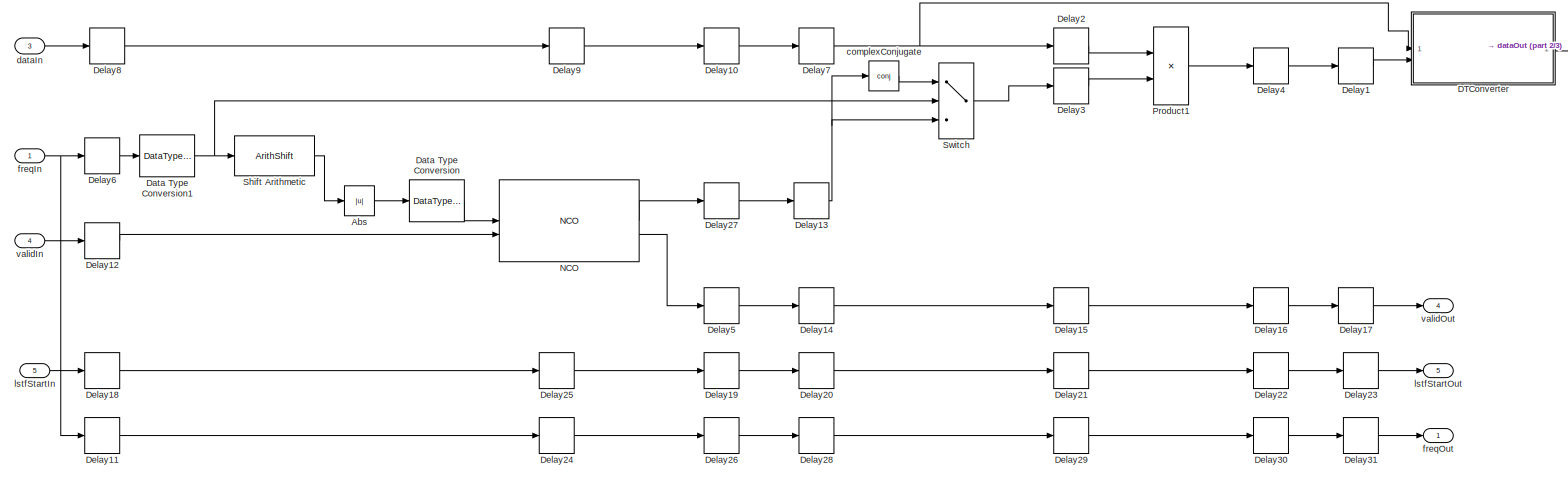
[diagram: WLANTimeAndFrequencySynchronization/Fine CFO Estimation and Correction/Fine CFO Correction - part 1/3, most of the canvas]
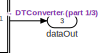
[diagram: WLANTimeAndFrequencySynchronization/Fine CFO Estimation and Correction/Fine CFO Correction - part 2/3, top right region]
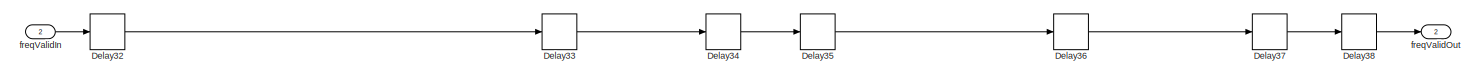
[diagram: WLANTimeAndFrequencySynchronization/Fine CFO Estimation and Correction/Fine CFO Correction - part 3/3, full width, bottom band]
BLOCK [SubSystem] WLANTimeAndFrequencySynchronization/Fine CFO Estimation and Correction/Fine CFO Correction
BLOCK [Abs] WLANTimeAndFrequencySynchronization/Fine CFO Estimation and Correction/Fine CFO Correction/Abs
  SaturateOnIntegerOverflow = off
BLOCK [SubSystem] WLANTimeAndFrequencySynchronization/Fine CFO Estimation and Correction/Fine CFO Correction/DTConverter
  ErrorFcn = Stateflow.Translate.translate
  PermitHierarchicalResolution = ExplicitOnly
  SFBlockType = MATLAB Function
  TreatAsAtomicUnit = on
BLOCK [Demux] WLANTimeAndFrequencySynchronization/Fine CFO Estimation and Correction/Fine CFO Correction/DTConverter/ Demux 
  Outputs = 1
BLOCK [S-Function] WLANTimeAndFrequencySynchronization/Fine CFO Estimation and Correction/Fine CFO Correction/DTConverter/ SFunction 
  EnableBusSupport = off
  FunctionName = sf_sfun
  PortCounts = [2 2]
  SFcnIsStateOwnerBlock = off
  SFunctionDeploymentMode = off
  Tag = Stateflow S-Function 2
BLOCK [Terminator] WLANTimeAndFrequencySynchronization/Fine CFO Estimation and Correction/Fine CFO Correction/DTConverter/ Terminator 
BLOCK [Inport] WLANTimeAndFrequencySynchronization/Fine CFO Estimation and Correction/Fine CFO Correction/DTConverter/dataIn1
BLOCK [Inport] WLANTimeAndFrequencySynchronization/Fine CFO Estimation and Correction/Fine CFO Correction/DTConverter/dataIn2
  Port = 2
BLOCK [Outport] WLANTimeAndFrequencySynchronization/Fine CFO Estimation and Correction/Fine CFO Correction/DTConverter/dataOut
  VectorParamsAs1DForOutWhenUnconnected = off
BLOCK [DataTypeConversion] WLANTimeAndFrequencySynchronization/Fine CFO Estimation and Correction/Fine CFO Correction/Data Type Conversion
  OutDataTypeStr = uint16
  RndMeth = Round
  SaturateOnIntegerOverflow = off
BLOCK [DataTypeConversion] WLANTimeAndFrequencySynchronization/Fine CFO Estimation and Correction/Fine CFO Correction/Data Type Conversion1
  OutDataTypeStr = fixdt(1,36,25)
  RndMeth = Floor
  SaturateOnIntegerOverflow = off
BLOCK [Delay] WLANTimeAndFrequencySynchronization/Fine CFO Estimation and Correction/Fine CFO Correction/Delay1
  DelayLength = 1
  InitialCondition = 0
  InputPortMap = u0
  UseCircularBuffer = on
  UserDataPersistent = on
BLOCK [Delay] WLANTimeAndFrequencySynchronization/Fine CFO Estimation and Correction/Fine CFO Correction/Delay10
  DelayLength = 1
  InitialCondition = 0
  InputPortMap = u0
  UseCircularBuffer = on
  UserDataPersistent = on
BLOCK [Delay] WLANTimeAndFrequencySynchronization/Fine CFO Estimation and Correction/Fine CFO Correction/Delay11
  DelayLength = 1
  InitialCondition = 0
  InputPortMap = u0
  UseCircularBuffer = on
  UserDataPersistent = on
BLOCK [Delay] WLANTimeAndFrequencySynchronization/Fine CFO Estimation and Correction/Fine CFO Correction/Delay12
  DelayLength = 1
  InitialCondition = 0
  InputPortMap = u0
  UseCircularBuffer = on
  UserDataPersistent = on
BLOCK [Delay] WLANTimeAndFrequencySynchronization/Fine CFO Estimation and Correction/Fine CFO Correction/Delay13
  DelayLength = 1
  InitialCondition = 0
  InputPortMap = u0
  UseCircularBuffer = on
  UserDataPersistent = on
BLOCK [Delay] WLANTimeAndFrequencySynchronization/Fine CFO Estimation and Correction/Fine CFO Correction/Delay14
  DelayLength = 1
  InitialCondition = 0
  InputPortMap = u0
  UseCircularBuffer = on
  UserDataPersistent = on
BLOCK [Delay] WLANTimeAndFrequencySynchronization/Fine CFO Estimation and Correction/Fine CFO Correction/Delay15
  InitialCondition = 0
  InputPortMap = u0
  UseCircularBuffer = on
  UserDataPersistent = on
BLOCK [Delay] WLANTimeAndFrequencySynchronization/Fine CFO Estimation and Correction/Fine CFO Correction/Delay16
  InitialCondition = 0
  InputPortMap = u0
  UseCircularBuffer = on
  UserDataPersistent = on
BLOCK [Delay] WLANTimeAndFrequencySynchronization/Fine CFO Estimation and Correction/Fine CFO Correction/Delay17
  DelayLength = 1
  InitialCondition = 0
  InputPortMap = u0
  UseCircularBuffer = on
  UserDataPersistent = on
BLOCK [Delay] WLANTimeAndFrequencySynchronization/Fine CFO Estimation and Correction/Fine CFO Correction/Delay18
  DelayLength = 1
  InitialCondition = 0
  InputPortMap = u0
  UseCircularBuffer = on
  UserDataPersistent = on
BLOCK [Delay] WLANTimeAndFrequencySynchronization/Fine CFO Estimation and Correction/Fine CFO Correction/Delay19
  DelayLength = 1
  InitialCondition = 0
  InputPortMap = u0
  UseCircularBuffer = on
  UserDataPersistent = on
BLOCK [Delay] WLANTimeAndFrequencySynchronization/Fine CFO Estimation and Correction/Fine CFO Correction/Delay2
  InitialCondition = 0
  InputPortMap = u0
  UseCircularBuffer = on
  UserDataPersistent = on
BLOCK [Delay] WLANTimeAndFrequencySynchronization/Fine CFO Estimation and Correction/Fine CFO Correction/Delay20
  DelayLength = 1
  InitialCondition = 0
  InputPortMap = u0
  UseCircularBuffer = on
  UserDataPersistent = on
BLOCK [Delay] WLANTimeAndFrequencySynchronization/Fine CFO Estimation and Correction/Fine CFO Correction/Delay21
  InitialCondition = 0
  InputPortMap = u0
  UseCircularBuffer = on
  UserDataPersistent = on
BLOCK [Delay] WLANTimeAndFrequencySynchronization/Fine CFO Estimation and Correction/Fine CFO Correction/Delay22
  InitialCondition = 0
  InputPortMap = u0
  UseCircularBuffer = on
  UserDataPersistent = on
BLOCK [Delay] WLANTimeAndFrequencySynchronization/Fine CFO Estimation and Correction/Fine CFO Correction/Delay23
  DelayLength = 1
  InitialCondition = 0
  InputPortMap = u0
  UseCircularBuffer = on
  UserDataPersistent = on
BLOCK [Delay] WLANTimeAndFrequencySynchronization/Fine CFO Estimation and Correction/Fine CFO Correction/Delay24
  DelayLength = 6
  InitialCondition = 0
  InputPortMap = u0
  UseCircularBuffer = on
  UserDataPersistent = on
BLOCK [Delay] WLANTimeAndFrequencySynchronization/Fine CFO Estimation and Correction/Fine CFO Correction/Delay25
  DelayLength = 6
  InitialCondition = 0
  InputPortMap = u0
  UseCircularBuffer = on
  UserDataPersistent = on
BLOCK [Delay] WLANTimeAndFrequencySynchronization/Fine CFO Estimation and Correction/Fine CFO Correction/Delay26
  DelayLength = 1
  InitialCondition = 0
  InputPortMap = u0
  UseCircularBuffer = on
  UserDataPersistent = on
BLOCK [Delay] WLANTimeAndFrequencySynchronization/Fine CFO Estimation and Correction/Fine CFO Correction/Delay27
  DelayLength = 1
  InitialCondition = 0
  InputPortMap = u0
  UseCircularBuffer = on
  UserDataPersistent = on
BLOCK [Delay] WLANTimeAndFrequencySynchronization/Fine CFO Estimation and Correction/Fine CFO Correction/Delay28
  DelayLength = 1
  InitialCondition = 0
  InputPortMap = u0
  UseCircularBuffer = on
  UserDataPersistent = on
BLOCK [Delay] WLANTimeAndFrequencySynchronization/Fine CFO Estimation and Correction/Fine CFO Correction/Delay29
  InitialCondition = 0
  InputPortMap = u0
  UseCircularBuffer = on
  UserDataPersistent = on
BLOCK [Delay] WLANTimeAndFrequencySynchronization/Fine CFO Estimation and Correction/Fine CFO Correction/Delay3
  InitialCondition = 0
  InputPortMap = u0
  UseCircularBuffer = on
  UserDataPersistent = on
BLOCK [Delay] WLANTimeAndFrequencySynchronization/Fine CFO Estimation and Correction/Fine CFO Correction/Delay30
  InitialCondition = 0
  InputPortMap = u0
  UseCircularBuffer = on
  UserDataPersistent = on
BLOCK [Delay] WLANTimeAndFrequencySynchronization/Fine CFO Estimation and Correction/Fine CFO Correction/Delay31
  DelayLength = 1
  InitialCondition = 0
  InputPortMap = u0
  UseCircularBuffer = on
  UserDataPersistent = on
BLOCK [Delay] WLANTimeAndFrequencySynchronization/Fine CFO Estimation and Correction/Fine CFO Correction/Delay32
  DelayLength = 1
  InitialCondition = 0
  InputPortMap = u0
  UseCircularBuffer = on
  UserDataPersistent = on
BLOCK [Delay] WLANTimeAndFrequencySynchronization/Fine CFO Estimation and Correction/Fine CFO Correction/Delay33
  DelayLength = 6
  InitialCondition = 0
  InputPortMap = u0
  UseCircularBuffer = on
  UserDataPersistent = on
BLOCK [Delay] WLANTimeAndFrequencySynchronization/Fine CFO Estimation and Correction/Fine CFO Correction/Delay34
  DelayLength = 1
  InitialCondition = 0
  InputPortMap = u0
  UseCircularBuffer = on
  UserDataPersistent = on
BLOCK [Delay] WLANTimeAndFrequencySynchronization/Fine CFO Estimation and Correction/Fine CFO Correction/Delay35
  DelayLength = 1
  InitialCondition = 0
  InputPortMap = u0
  UseCircularBuffer = on
  UserDataPersistent = on
BLOCK [Delay] WLANTimeAndFrequencySynchronization/Fine CFO Estimation and Correction/Fine CFO Correction/Delay36
  InitialCondition = 0
  InputPortMap = u0
  UseCircularBuffer = on
  UserDataPersistent = on
BLOCK [Delay] WLANTimeAndFrequencySynchronization/Fine CFO Estimation and Correction/Fine CFO Correction/Delay37
  InitialCondition = 0
  InputPortMap = u0
  UseCircularBuffer = on
  UserDataPersistent = on
BLOCK [Delay] WLANTimeAndFrequencySynchronization/Fine CFO Estimation and Correction/Fine CFO Correction/Delay38
  DelayLength = 1
  InitialCondition = 0
  InputPortMap = u0
  UseCircularBuffer = on
  UserDataPersistent = on
BLOCK [Delay] WLANTimeAndFrequencySynchronization/Fine CFO Estimation and Correction/Fine CFO Correction/Delay4
  InitialCondition = 0
  InputPortMap = u0
  UseCircularBuffer = on
  UserDataPersistent = on
BLOCK [Delay] WLANTimeAndFrequencySynchronization/Fine CFO Estimation and Correction/Fine CFO Correction/Delay5
  DelayLength = 1
  InitialCondition = 0
  InputPortMap = u0
  UseCircularBuffer = on
  UserDataPersistent = on
BLOCK [Delay] WLANTimeAndFrequencySynchronization/Fine CFO Estimation and Correction/Fine CFO Correction/Delay6
  DelayLength = 1
  InitialCondition = 0
  InputPortMap = u0
  UseCircularBuffer = on
  UserDataPersistent = on
BLOCK [Delay] WLANTimeAndFrequencySynchronization/Fine CFO Estimation and Correction/Fine CFO Correction/Delay7
  DelayLength = 1
  InitialCondition = 0
  InputPortMap = u0
  UseCircularBuffer = on
  UserDataPersistent = on
BLOCK [Delay] WLANTimeAndFrequencySynchronization/Fine CFO Estimation and Correction/Fine CFO Correction/Delay8
  DelayLength = 1
  InitialCondition = 0
  InputPortMap = u0
  UseCircularBuffer = on
  UserDataPersistent = on
BLOCK [Delay] WLANTimeAndFrequencySynchronization/Fine CFO Estimation and Correction/Fine CFO Correction/Delay9
  DelayLength = 6
  InitialCondition = 0
  InputPortMap = u0
  UseCircularBuffer = on
  UserDataPersistent = on
BLOCK [Reference] WLANTimeAndFrequencySynchronization/Fine CFO Estimation and Correction/Fine CFO Correction/NCO  REF=dsphdlsigops2/NCO
  SourceBlock = dsphdlsigops2/NCO
  SourceType = NCO
BLOCK [Product] WLANTimeAndFrequencySynchronization/Fine CFO Estimation and Correction/Fine CFO Correction/Product1
BLOCK [ArithShift] WLANTimeAndFrequencySynchronization/Fine CFO Estimation and Correction/Fine CFO Correction/Shift Arithmetic
  BitShiftDirection = Left
  BitShiftNumber = 16
  InputPortMap = u0
BLOCK [Switch] WLANTimeAndFrequencySynchronization/Fine CFO Estimation and Correction/Fine CFO Correction/Switch
  InputSameDT = off
  SaturateOnIntegerOverflow = off
BLOCK [Math] WLANTimeAndFrequencySynchronization/Fine CFO Estimation and Correction/Fine CFO Correction/complexConjugate
  Operator = conj
  SignedPower = on
BLOCK [Inport] WLANTimeAndFrequencySynchronization/Fine CFO Estimation and Correction/Fine CFO Correction/dataIn
  Port = 3
BLOCK [Outport] WLANTimeAndFrequencySynchronization/Fine CFO Estimation and Correction/Fine CFO Correction/dataOut
  Port = 3
  VectorParamsAs1DForOutWhenUnconnected = off
BLOCK [Inport] WLANTimeAndFrequencySynchronization/Fine CFO Estimation and Correction/Fine CFO Correction/freqIn
BLOCK [Outport] WLANTimeAndFrequencySynchronization/Fine CFO Estimation and Correction/Fine CFO Correction/freqOut
  VectorParamsAs1DForOutWhenUnconnected = off
BLOCK [Inport] WLANTimeAndFrequencySynchronization/Fine CFO Estimation and Correction/Fine CFO Correction/freqValidIn
  Port = 2
BLOCK [Outport] WLANTimeAndFrequencySynchronization/Fine CFO Estimation and Correction/Fine CFO Correction/freqValidOut
  Port = 2
  VectorParamsAs1DForOutWhenUnconnected = off
BLOCK [Inport] WLANTimeAndFrequencySynchronization/Fine CFO Estimation and Correction/Fine CFO Correction/lstfStartIn
  Port = 5
BLOCK [Outport] WLANTimeAndFrequencySynchronization/Fine CFO Estimation and Correction/Fine CFO Correction/lstfStartOut
  Port = 5
  VectorParamsAs1DForOutWhenUnconnected = off
BLOCK [Inport] WLANTimeAndFrequencySynchronization/Fine CFO Estimation and Correction/Fine CFO Correction/validIn
  Port = 4
BLOCK [Outport] WLANTimeAndFrequencySynchronization/Fine CFO Estimation and Correction/Fine CFO Correction/validOut
  Port = 4
  VectorParamsAs1DForOutWhenUnconnected = off
BLOCK [SubSystem] WLANTimeAndFrequencySynchronization/Fine CFO Estimation and Correction/Fine CFO Estimation
BLOCK [SubSystem] WLANTimeAndFrequencySynchronization/Fine CFO Estimation and Correction/Fine CFO Estimation/Averager
BLOCK [Reference] WLANTimeAndFrequencySynchronization/Fine CFO Estimation and Correction/Fine CFO Estimation/Averager/Compare To Constant  REF=simulink/Logic and Bit
Operations/Compare
To Constant
  SourceBlock = simulink/Logic and Bit\nOperations/Compare\nTo Constant
  SourceType = Compare To Constant
BLOCK [Reference] WLANTimeAndFrequencySynchronization/Fine CFO Estimation and Correction/Fine CFO Estimation/Averager/Compare To Constant1  REF=simulink/Logic and Bit
Operations/Compare
To Constant
  SourceBlock = simulink/Logic and Bit\nOperations/Compare\nTo Constant
  SourceType = Compare To Constant
BLOCK [Reference] WLANTimeAndFrequencySynchronization/Fine CFO Estimation and Correction/Fine CFO Estimation/Averager/Compare To Constant2  REF=simulink/Logic and Bit
Operations/Compare
To Constant
  SourceBlock = simulink/Logic and Bit\nOperations/Compare\nTo Constant
  SourceType = Compare To Constant
BLOCK [Reference] WLANTimeAndFrequencySynchronization/Fine CFO Estimation and Correction/Fine CFO Estimation/Averager/Compare To Constant3  REF=simulink/Logic and Bit
Operations/Compare
To Constant
  SourceBlock = simulink/Logic and Bit\nOperations/Compare\nTo Constant
  SourceType = Compare To Constant
BLOCK [Reference] WLANTimeAndFrequencySynchronization/Fine CFO Estimation and Correction/Fine CFO Estimation/Averager/Compare To Zero  REF=simulink/Logic and Bit
Operations/Compare
To Zero
  SourceBlock = simulink/Logic and Bit\nOperations/Compare\nTo Zero
  SourceType = Compare To Zero
BLOCK [Constant] WLANTimeAndFrequencySynchronization/Fine CFO Estimation and Correction/Fine CFO Estimation/Averager/Constant
  OutDataTypeStr = uint16
  SampleTime = -1
BLOCK [Constant] WLANTimeAndFrequencySynchronization/Fine CFO Estimation and Correction/Fine CFO Estimation/Averager/Constant1
  OutDataTypeStr = Inherit: Inherit via back propagation
  SampleTime = -1
  Value = complex(0,0)
BLOCK [Delay] WLANTimeAndFrequencySynchronization/Fine CFO Estimation and Correction/Fine CFO Estimation/Averager/Delay
  DelayLength = 1
  InputPortMap = u0
BLOCK [Reference] WLANTimeAndFrequencySynchronization/Fine CFO Estimation and Correction/Fine CFO Estimation/Averager/HDL Counter  REF=hdlsllib/Sources/HDL Counter
  SourceBlock = hdlsllib/Sources/HDL Counter
  SourceType = HDL Counter
BLOCK [Logic] WLANTimeAndFrequencySynchronization/Fine CFO Estimation and Correction/Fine CFO Estimation/Averager/Logical Operator
  AllPortsSameDT = off
  OutDataTypeStr = boolean
BLOCK [Logic] WLANTimeAndFrequencySynchronization/Fine CFO Estimation and Correction/Fine CFO Estimation/Averager/Logical Operator1
  AllPortsSameDT = off
  Operator = OR
  OutDataTypeStr = boolean
BLOCK [Sum] WLANTimeAndFrequencySynchronization/Fine CFO Estimation and Correction/Fine CFO Estimation/Averager/Sum
  IconShape = rectangular
  OutDataTypeStr = Inherit: Same as first input
BLOCK [Switch] WLANTimeAndFrequencySynchronization/Fine CFO Estimation and Correction/Fine CFO Estimation/Averager/Switch
  Criteria = u2 ~= 0
  InputSameDT = off
  SaturateOnIntegerOverflow = off
  Threshold = 1
BLOCK [Outport] WLANTimeAndFrequencySynchronization/Fine CFO Estimation and Correction/Fine CFO Estimation/Averager/avgCorr
BLOCK [Inport] WLANTimeAndFrequencySynchronization/Fine CFO Estimation and Correction/Fine CFO Estimation/Averager/corrIn
BLOCK [Inport] WLANTimeAndFrequencySynchronization/Fine CFO Estimation and Correction/Fine CFO Estimation/Averager/load
  Port = 3
BLOCK [Inport] WLANTimeAndFrequencySynchronization/Fine CFO Estimation and Correction/Fine CFO Estimation/Averager/rst
  Port = 2
BLOCK [Outport] WLANTimeAndFrequencySynchronization/Fine CFO Estimation and Correction/Fine CFO Estimation/Averager/validOut
  Port = 2
BLOCK [Reference] WLANTimeAndFrequencySynchronization/Fine CFO Estimation and Correction/Fine CFO Estimation/Complex to Magnitude-Angle1  REF=dsphdlmathfun2/Complex to Magnitude-Angle
  SourceBlock = dsphdlmathfun2/Complex to Magnitude-Angle
  SourceType = Complex to Magnitude-Angle
BLOCK [SubSystem] WLANTimeAndFrequencySynchronization/Fine CFO Estimation and Correction/Fine CFO Estimation/Correlator
BLOCK [DataTypeConversion] WLANTimeAndFrequencySynchronization/Fine CFO Estimation and Correction/Fine CFO Estimation/Correlator/Data Type Conversion
  OutDataTypeStr = fixdt(1,31,19)
  RndMeth = Floor
  SaturateOnIntegerOverflow = off
BLOCK [DataTypeConversion] WLANTimeAndFrequencySynchronization/Fine CFO Estimation and Correction/Fine CFO Estimation/Correlator/Data Type Conversion1
  OutDataTypeStr = fixdt(1,16,12)
  RndMeth = Floor
  SaturateOnIntegerOverflow = off
BLOCK [Delay] WLANTimeAndFrequencySynchronization/Fine CFO Estimation and Correction/Fine CFO Estimation/Correlator/Delay1
  InitialCondition = 0
  InputPortMap = u0
  UseCircularBuffer = on
  UserDataPersistent = on
BLOCK [Delay] WLANTimeAndFrequencySynchronization/Fine CFO Estimation and Correction/Fine CFO Estimation/Correlator/Delay2
  DelayLength = wlanConfig.lstfLen*4
  InitialCondition = 0
  InputPortMap = u0
BLOCK [Delay] WLANTimeAndFrequencySynchronization/Fine CFO Estimation and Correction/Fine CFO Estimation/Correlator/Delay3
  InitialCondition = 0
  InputPortMap = u0
  UseCircularBuffer = on
  UserDataPersistent = on
BLOCK [Delay] WLANTimeAndFrequencySynchronization/Fine CFO Estimation and Correction/Fine CFO Estimation/Correlator/Delay32
  DelayLength = 1
  InputPortMap = u0
BLOCK [Product] WLANTimeAndFrequencySynchronization/Fine CFO Estimation and Correction/Fine CFO Estimation/Correlator/Product
  RndMeth = Round
BLOCK [Math] WLANTimeAndFrequencySynchronization/Fine CFO Estimation and Correction/Fine CFO Estimation/Correlator/complexConj
  Operator = conj
  SaturateOnIntegerOverflow = off
  SignedPower = on
BLOCK [Outport] WLANTimeAndFrequencySynchronization/Fine CFO Estimation and Correction/Fine CFO Estimation/Correlator/corrOut
BLOCK [Inport] WLANTimeAndFrequencySynchronization/Fine CFO Estimation and Correction/Fine CFO Estimation/Correlator/dataIn
BLOCK [Delay] WLANTimeAndFrequencySynchronization/Fine CFO Estimation and Correction/Fine CFO Estimation/Delay10
  DelayLength = wlanConfig.lstfLen*4
  InitialCondition = 0
  InputPortMap = u0
BLOCK [Delay] WLANTimeAndFrequencySynchronization/Fine CFO Estimation and Correction/Fine CFO Estimation/Delay11
  DelayLength = 1
  InitialCondition = 0
  InputPortMap = u0
  UseCircularBuffer = on
  UserDataPersistent = on
BLOCK [Delay] WLANTimeAndFrequencySynchronization/Fine CFO Estimation and Correction/Fine CFO Estimation/Delay13
  DelayLength = 1
  InitialCondition = 0
  InputPortMap = u0
  UseCircularBuffer = on
  UserDataPersistent = on
BLOCK [Delay] WLANTimeAndFrequencySynchronization/Fine CFO Estimation and Correction/Fine CFO Estimation/Delay14
  DelayLength = wlanConfig.lstfLen*4
  InitialCondition = 0
  InputPortMap = u0
BLOCK [Delay] WLANTimeAndFrequencySynchronization/Fine CFO Estimation and Correction/Fine CFO Estimation/Delay15
  InitialCondition = 0
  InputPortMap = u0
  UseCircularBuffer = on
  UserDataPersistent = on
BLOCK [Delay] WLANTimeAndFrequencySynchronization/Fine CFO Estimation and Correction/Fine CFO Estimation/Delay16
  DelayLength = 1
  InitialCondition = 0
  InputPortMap = u0
  UseCircularBuffer = on
  UserDataPersistent = on
BLOCK [Delay] WLANTimeAndFrequencySynchronization/Fine CFO Estimation and Correction/Fine CFO Estimation/Delay17
  DelayLength = 1
  InitialCondition = 0
  InputPortMap = u0
  UseCircularBuffer = on
  UserDataPersistent = on
BLOCK [Delay] WLANTimeAndFrequencySynchronization/Fine CFO Estimation and Correction/Fine CFO Estimation/Delay18
  InitialCondition = 0
  InputPortMap = u0
  UseCircularBuffer = on
  UserDataPersistent = on
BLOCK [Delay] WLANTimeAndFrequencySynchronization/Fine CFO Estimation and Correction/Fine CFO Estimation/Delay21
  DelayLength = 1
  InitialCondition = 0
  InputPortMap = u0
  UseCircularBuffer = on
  UserDataPersistent = on
BLOCK [Delay] WLANTimeAndFrequencySynchronization/Fine CFO Estimation and Correction/Fine CFO Estimation/Delay22
  DelayLength = 35
  InitialCondition = 0
  InputPortMap = u0
  UseCircularBuffer = on
  UserDataPersistent = on
BLOCK [Delay] WLANTimeAndFrequencySynchronization/Fine CFO Estimation and Correction/Fine CFO Estimation/Delay23
  DelayLength = round(wlanConfig.lstfLen*2*0.75)+wlanConfig.lstfLen*4-1
  InitialCondition = 0
  InputPortMap = u0
  UseCircularBuffer = on
  UserDataPersistent = on
BLOCK [Delay] WLANTimeAndFrequencySynchronization/Fine CFO Estimation and Correction/Fine CFO Estimation/Delay24
  DelayLength = wlanConfig.lstfLen*10
  InitialCondition = 0
  InputPortMap = u0
BLOCK [Delay] WLANTimeAndFrequencySynchronization/Fine CFO Estimation and Correction/Fine CFO Estimation/Delay27
  DelayLength = 1
  InputPortMap = u0
BLOCK [Delay] WLANTimeAndFrequencySynchronization/Fine CFO Estimation and Correction/Fine CFO Estimation/Delay28
  DelayLength = 1
  InputPortMap = u0
BLOCK [Delay] WLANTimeAndFrequencySynchronization/Fine CFO Estimation and Correction/Fine CFO Estimation/Delay29
  DelayLength = 1
  InputPortMap = u0
BLOCK [Delay] WLANTimeAndFrequencySynchronization/Fine CFO Estimation and Correction/Fine CFO Estimation/Delay30
  DelayLength = 1
  InputPortMap = u0
BLOCK [Delay] WLANTimeAndFrequencySynchronization/Fine CFO Estimation and Correction/Fine CFO Estimation/Delay31
  DelayLength = 1
  InputPortMap = u0
BLOCK [Delay] WLANTimeAndFrequencySynchronization/Fine CFO Estimation and Correction/Fine CFO Estimation/Delay33
  DelayLength = 1
  InputPortMap = u0
BLOCK [Delay] WLANTimeAndFrequencySynchronization/Fine CFO Estimation and Correction/Fine CFO Estimation/Delay34
  DelayLength = 1
  InputPortMap = u0
BLOCK [Delay] WLANTimeAndFrequencySynchronization/Fine CFO Estimation and Correction/Fine CFO Estimation/Delay35
  DelayLength = 1
  InputPortMap = u0
BLOCK [Delay] WLANTimeAndFrequencySynchronization/Fine CFO Estimation and Correction/Fine CFO Estimation/Delay37
  DelayLength = wlanConfig.lstfLen*10
  InitialCondition = 0
  InputPortMap = u0
BLOCK [Delay] WLANTimeAndFrequencySynchronization/Fine CFO Estimation and Correction/Fine CFO Estimation/Delay39
  DelayLength = wlanConfig.lstfLen*10
  InitialCondition = 0
  InputPortMap = u0
BLOCK [Delay] WLANTimeAndFrequencySynchronization/Fine CFO Estimation and Correction/Fine CFO Estimation/Delay4
  DelayLength = 35
  InitialCondition = 0
  InputPortMap = u0
  UseCircularBuffer = on
  UserDataPersistent = on
BLOCK [Delay] WLANTimeAndFrequencySynchronization/Fine CFO Estimation and Correction/Fine CFO Estimation/Delay5
  DelayLength = 35
  InitialCondition = 0
  InputPortMap = u0
  UseCircularBuffer = on
  UserDataPersistent = on
BLOCK [Delay] WLANTimeAndFrequencySynchronization/Fine CFO Estimation and Correction/Fine CFO Estimation/Delay6
  InitialCondition = 0
  InputPortMap = u0
  UseCircularBuffer = on
  UserDataPersistent = on
BLOCK [Delay] WLANTimeAndFrequencySynchronization/Fine CFO Estimation and Correction/Fine CFO Estimation/Delay7
  DelayLength = round(wlanConfig.lstfLen*2*0.75)+wlanConfig.lstfLen*4-1
  InitialCondition = 0
  InputPortMap = u0
  UseCircularBuffer = on
  UserDataPersistent = on
BLOCK [Delay] WLANTimeAndFrequencySynchronization/Fine CFO Estimation and Correction/Fine CFO Estimation/Delay8
  DelayLength = wlanConfig.lstfLen*4
  InitialCondition = 0
  InputPortMap = u0
BLOCK [Delay] WLANTimeAndFrequencySynchronization/Fine CFO Estimation and Correction/Fine CFO Estimation/Delay9
  DelayLength = round(wlanConfig.lstfLen*2*0.75)+wlanConfig.lstfLen*4-1
  InitialCondition = 0
  InputPortMap = u0
  UseCircularBuffer = on
  UserDataPersistent = on
BLOCK [Outport] WLANTimeAndFrequencySynchronization/Fine CFO Estimation and Correction/Fine CFO Estimation/Freq
  VectorParamsAs1DForOutWhenUnconnected = off
BLOCK [Inport] WLANTimeAndFrequencySynchronization/Fine CFO Estimation and Correction/Fine CFO Estimation/LSTF_start
  Port = 3
BLOCK [ArithShift] WLANTimeAndFrequencySynchronization/Fine CFO Estimation and Correction/Fine CFO Estimation/Shift Arithmetic
  BitShiftDirection = Right
  BitShiftNumber = log2(2*4*wlanConfig.lstfLen)
  InputPortMap = u0
BLOCK [Inport] WLANTimeAndFrequencySynchronization/Fine CFO Estimation and Correction/Fine CFO Estimation/dataIn
BLOCK [Outport] WLANTimeAndFrequencySynchronization/Fine CFO Estimation and Correction/Fine CFO Estimation/dataOut
  Port = 3
  VectorParamsAs1DForOutWhenUnconnected = off
BLOCK [Outport] WLANTimeAndFrequencySynchronization/Fine CFO Estimation and Correction/Fine CFO Estimation/freqValidOut
  Port = 2
  VectorParamsAs1DForOutWhenUnconnected = off
BLOCK [Outport] WLANTimeAndFrequencySynchronization/Fine CFO Estimation and Correction/Fine CFO Estimation/lstfStart
  Port = 5
  VectorParamsAs1DForOutWhenUnconnected = off
BLOCK [Inport] WLANTimeAndFrequencySynchronization/Fine CFO Estimation and Correction/Fine CFO Estimation/rstIn
  Port = 4
BLOCK [SubSystem] WLANTimeAndFrequencySynchronization/Fine CFO Estimation and Correction/Fine CFO Estimation/sample FreqOff
  ErrorFcn = Stateflow.Translate.translate
  PermitHierarchicalResolution = ExplicitOnly
  SFBlockType = MATLAB Function
  TreatAsAtomicUnit = on
BLOCK [Demux] WLANTimeAndFrequencySynchronization/Fine CFO Estimation and Correction/Fine CFO Estimation/sample FreqOff/ Demux 
  Outputs = 1
BLOCK [S-Function] WLANTimeAndFrequencySynchronization/Fine CFO Estimation and Correction/Fine CFO Estimation/sample FreqOff/ SFunction 
  EnableBusSupport = off
  FunctionName = sf_sfun
  PortCounts = [3 2]
  SFcnIsStateOwnerBlock = off
  SFunctionDeploymentMode = off
  Tag = Stateflow S-Function 15
BLOCK [Terminator] WLANTimeAndFrequencySynchronization/Fine CFO Estimation and Correction/Fine CFO Estimation/sample FreqOff/ Terminator 
BLOCK [Inport] WLANTimeAndFrequencySynchronization/Fine CFO Estimation and Correction/Fine CFO Estimation/sample FreqOff/enb
  Port = 2
BLOCK [Inport] WLANTimeAndFrequencySynchronization/Fine CFO Estimation and Correction/Fine CFO Estimation/sample FreqOff/freqOffIn
BLOCK [Outport] WLANTimeAndFrequencySynchronization/Fine CFO Estimation and Correction/Fine CFO Estimation/sample FreqOff/freqOffOut
  VectorParamsAs1DForOutWhenUnconnected = off
BLOCK [Inport] WLANTimeAndFrequencySynchronization/Fine CFO Estimation and Correction/Fine CFO Estimation/sample FreqOff/rst
  Port = 3
BLOCK [Inport] WLANTimeAndFrequencySynchronization/Fine CFO Estimation and Correction/Fine CFO Estimation/validIn
  Port = 2
BLOCK [Outport] WLANTimeAndFrequencySynchronization/Fine CFO Estimation and Correction/Fine CFO Estimation/validOut
  Port = 4
  VectorParamsAs1DForOutWhenUnconnected = off
BLOCK [Outport] WLANTimeAndFrequencySynchronization/Fine CFO Estimation and Correction/Freq
BLOCK [Inport] WLANTimeAndFrequencySynchronization/Fine CFO Estimation and Correction/LSTF_start
  Port = 3
BLOCK [Inport] WLANTimeAndFrequencySynchronization/Fine CFO Estimation and Correction/dataIn
BLOCK [Outport] WLANTimeAndFrequencySynchronization/Fine CFO Estimation and Correction/dataOut
  Port = 3
BLOCK [Outport] WLANTimeAndFrequencySynchronization/Fine CFO Estimation and Correction/freqValidOut
  Port = 2
BLOCK [Outport] WLANTimeAndFrequencySynchronization/Fine CFO Estimation and Correction/lstfStartOut
  Port = 5
BLOCK [Inport] WLANTimeAndFrequencySynchronization/Fine CFO Estimation and Correction/rstIn
  Port = 4
BLOCK [Inport] WLANTimeAndFrequencySynchronization/Fine CFO Estimation and Correction/validIn
  Port = 2
BLOCK [Outport] WLANTimeAndFrequencySynchronization/Fine CFO Estimation and Correction/validOut
  Port = 4
BLOCK [SubSystem] WLANTimeAndFrequencySynchronization/Fine Time Sync
BLOCK [SubSystem] WLANTimeAndFrequencySynchronization/Fine Time Sync/Correlator
BLOCK [Delay] WLANTimeAndFrequencySynchronization/Fine Time Sync/Correlator/Delay
  DelayLength = (filterLatency+filterUpsampleFactor-1)/filterUpsampleFactor - 1
  InputPortMap = u0
BLOCK [Delay] WLANTimeAndFrequencySynchronization/Fine Time Sync/Correlator/Delay1
  DelayLength = (filterLatency+filterUpsampleFactor-1)/filterUpsampleFactor
  InputPortMap = u0
BLOCK [Delay] WLANTimeAndFrequencySynchronization/Fine Time Sync/Correlator/Delay13
  DelayLength = 3
  InputPortMap = u0
BLOCK [Delay] WLANTimeAndFrequencySynchronization/Fine Time Sync/Correlator/Delay15
  DelayLength = 3
  InputPortMap = u0
BLOCK [Delay] WLANTimeAndFrequencySynchronization/Fine Time Sync/Correlator/Delay16
  DelayLength = 3
  InputPortMap = u0
BLOCK [Delay] WLANTimeAndFrequencySynchronization/Fine Time Sync/Correlator/Delay2
  DelayLength = (filterLatency+filterUpsampleFactor-1)/filterUpsampleFactor
  InputPortMap = u0
BLOCK [Delay] WLANTimeAndFrequencySynchronization/Fine Time Sync/Correlator/Delay22
  DelayLength = 1
  InputPortMap = u0
BLOCK [Delay] WLANTimeAndFrequencySynchronization/Fine Time Sync/Correlator/Delay23
  DelayLength = 1
  InputPortMap = u0
BLOCK [Delay] WLANTimeAndFrequencySynchronization/Fine Time Sync/Correlator/Delay24
  DelayLength = 1
  InputPortMap = u0
BLOCK [Delay] WLANTimeAndFrequencySynchronization/Fine Time Sync/Correlator/Delay25
  DelayLength = 1
  InputPortMap = u0
BLOCK [Delay] WLANTimeAndFrequencySynchronization/Fine Time Sync/Correlator/Delay26
  DelayLength = 1
  InputPortMap = u0
BLOCK [Delay] WLANTimeAndFrequencySynchronization/Fine Time Sync/Correlator/Delay3
  DelayLength = 1
  InputPortMap = u0
BLOCK [Delay] WLANTimeAndFrequencySynchronization/Fine Time Sync/Correlator/Delay4
  DelayLength = 1
  InputPortMap = u0
BLOCK [Delay] WLANTimeAndFrequencySynchronization/Fine Time Sync/Correlator/Delay5
  DelayLength = 1
  InputPortMap = u0
BLOCK [Delay] WLANTimeAndFrequencySynchronization/Fine Time Sync/Correlator/Delay6
  DelayLength = 1
  InputPortMap = u0
BLOCK [Delay] WLANTimeAndFrequencySynchronization/Fine Time Sync/Correlator/Delay7
  DelayLength = 1
  InputPortMap = u0
BLOCK [SubSystem] WLANTimeAndFrequencySynchronization/Fine Time Sync/Correlator/MagnitudeSquared
BLOCK [Sum] WLANTimeAndFrequencySynchronization/Fine Time Sync/Correlator/MagnitudeSquared/Add
  IconShape = rectangular
  OutDataTypeStr = Inherit: Same as accumulator
BLOCK [ComplexToRealImag] WLANTimeAndFrequencySynchronization/Fine Time Sync/Correlator/MagnitudeSquared/Complex to Real-Imag
BLOCK [DataTypeConversion] WLANTimeAndFrequencySynchronization/Fine Time Sync/Correlator/MagnitudeSquared/Data Type Conversion
  OutDataTypeStr = fixdt(1,16,8)
  RndMeth = Floor
  SaturateOnIntegerOverflow = off
BLOCK [DataTypeConversion] WLANTimeAndFrequencySynchronization/Fine Time Sync/Correlator/MagnitudeSquared/Data Type Conversion1
  OutDataTypeStr = fixdt(1,32,15)
  RndMeth = Floor
  SaturateOnIntegerOverflow = off
BLOCK [Delay] WLANTimeAndFrequencySynchronization/Fine Time Sync/Correlator/MagnitudeSquared/Delay
  InputPortMap = u0
BLOCK [Delay] WLANTimeAndFrequencySynchronization/Fine Time Sync/Correlator/MagnitudeSquared/Delay1
  InputPortMap = u0
BLOCK [Delay] WLANTimeAndFrequencySynchronization/Fine Time Sync/Correlator/MagnitudeSquared/Delay2
  InputPortMap = u0
BLOCK [Delay] WLANTimeAndFrequencySynchronization/Fine Time Sync/Correlator/MagnitudeSquared/Delay3
  InputPortMap = u0
BLOCK [Delay] WLANTimeAndFrequencySynchronization/Fine Time Sync/Correlator/MagnitudeSquared/Delay4
  DelayLength = 1
  InputPortMap = u0
BLOCK [Delay] WLANTimeAndFrequencySynchronization/Fine Time Sync/Correlator/MagnitudeSquared/Delay5
  DelayLength = 1
  InputPortMap = u0
BLOCK [Delay] WLANTimeAndFrequencySynchronization/Fine Time Sync/Correlator/MagnitudeSquared/Delay6
  DelayLength = 3
  InputPortMap = u0
BLOCK [Product] WLANTimeAndFrequencySynchronization/Fine Time Sync/Correlator/MagnitudeSquared/Product1
BLOCK [Product] WLANTimeAndFrequencySynchronization/Fine Time Sync/Correlator/MagnitudeSquared/Product4
BLOCK [Inport] WLANTimeAndFrequencySynchronization/Fine Time Sync/Correlator/MagnitudeSquared/dataIn
  NameLocation = top
BLOCK [Outport] WLANTimeAndFrequencySynchronization/Fine Time Sync/Correlator/MagnitudeSquared/dataOut
  VectorParamsAs1DForOutWhenUnconnected = off
BLOCK [Inport] WLANTimeAndFrequencySynchronization/Fine Time Sync/Correlator/MagnitudeSquared/validIn
  NameLocation = top
  Port = 2
BLOCK [Outport] WLANTimeAndFrequencySynchronization/Fine Time Sync/Correlator/MagnitudeSquared/validOut
  Port = 2
  VectorParamsAs1DForOutWhenUnconnected = off
BLOCK [SubSystem] WLANTimeAndFrequencySynchronization/Fine Time Sync/Correlator/corrFilter
BLOCK [Reference] WLANTimeAndFrequencySynchronization/Fine Time Sync/Correlator/corrFilter/C1  REF=dsphdlfiltering2/Discrete FIR Filter
  SourceBlock = dsphdlfiltering2/Discrete FIR Filter
  SourceType = Discrete FIR Filter
BLOCK [Delay] WLANTimeAndFrequencySynchronization/Fine Time Sync/Correlator/corrFilter/Delay
  DelayLength = filterUpsampleFactor-1
  InputPortMap = u0
BLOCK [Delay] WLANTimeAndFrequencySynchronization/Fine Time Sync/Correlator/corrFilter/Delay1
  DelayLength = filterUpsampleFactor-1
  InputPortMap = u0
BLOCK [Delay] WLANTimeAndFrequencySynchronization/Fine Time Sync/Correlator/corrFilter/Delay2
  DelayLength = filterUpsampleFactor-1
  InputPortMap = u0
BLOCK [DownSample] WLANTimeAndFrequencySynchronization/Fine Time Sync/Correlator/corrFilter/Downsample
  InputProcessing = Elements as channels (sample based)
  N = filterUpsampleFactor
  RateOptions = Allow multirate processing
BLOCK [DownSample] WLANTimeAndFrequencySynchronization/Fine Time Sync/Correlator/corrFilter/Downsample1
  InputProcessing = Elements as channels (sample based)
  N = filterUpsampleFactor
  RateOptions = Allow multirate processing
BLOCK [Terminator] WLANTimeAndFrequencySynchronization/Fine Time Sync/Correlator/corrFilter/Terminator
BLOCK [Reference] WLANTimeAndFrequencySynchronization/Fine Time Sync/Correlator/corrFilter/Upsample  REF=dspsigops/Upsample
  SourceBlock = dspsigops/Upsample
  SourceType = Upsample
  UserDataPersistent = on
BLOCK [Reference] WLANTimeAndFrequencySynchronization/Fine Time Sync/Correlator/corrFilter/Upsample1  REF=dspsigops/Upsample
  SourceBlock = dspsigops/Upsample
  SourceType = Upsample
  UserDataPersistent = on
BLOCK [Reference] WLANTimeAndFrequencySynchronization/Fine Time Sync/Correlator/corrFilter/Upsample2  REF=dspsigops/Upsample
  SourceBlock = dspsigops/Upsample
  SourceType = Upsample
  UserDataPersistent = on
BLOCK [Inport] WLANTimeAndFrequencySynchronization/Fine Time Sync/Correlator/corrFilter/dataIn
BLOCK [Outport] WLANTimeAndFrequencySynchronization/Fine Time Sync/Correlator/corrFilter/dataOut
BLOCK [Inport] WLANTimeAndFrequencySynchronization/Fine Time Sync/Correlator/corrFilter/rst
  Port = 3
BLOCK [Inport] WLANTimeAndFrequencySynchronization/Fine Time Sync/Correlator/corrFilter/validIn
  Port = 2
BLOCK [Outport] WLANTimeAndFrequencySynchronization/Fine Time Sync/Correlator/corrFilter/validOut
  Port = 2
BLOCK [Outport] WLANTimeAndFrequencySynchronization/Fine Time Sync/Correlator/corrOut
BLOCK [Outport] WLANTimeAndFrequencySynchronization/Fine Time Sync/Correlator/corrValid
  Port = 2
BLOCK [Inport] WLANTimeAndFrequencySynchronization/Fine Time Sync/Correlator/dataIn
BLOCK [Outport] WLANTimeAndFrequencySynchronization/Fine Time Sync/Correlator/dataOut
  Port = 4
BLOCK [Inport] WLANTimeAndFrequencySynchronization/Fine Time Sync/Correlator/rstIn
  Port = 4
BLOCK [Inport] WLANTimeAndFrequencySynchronization/Fine Time Sync/Correlator/startIn
  Port = 3
BLOCK [Outport] WLANTimeAndFrequencySynchronization/Fine Time Sync/Correlator/startOut
  Port = 3
BLOCK [Inport] WLANTimeAndFrequencySynchronization/Fine Time Sync/Correlator/validIn
  Port = 2
BLOCK [Outport] WLANTimeAndFrequencySynchronization/Fine Time Sync/Correlator/validOut
  Port = 5
BLOCK [Outport] WLANTimeAndFrequencySynchronization/Fine Time Sync/Lstf_start
  Port = 3
  VectorParamsAs1DForOutWhenUnconnected = off
BLOCK [SubSystem] WLANTimeAndFrequencySynchronization/Fine Time Sync/Peak Searcher
BLOCK [Inport] WLANTimeAndFrequencySynchronization/Fine Time Sync/Peak Searcher/corrIn
BLOCK [Inport] WLANTimeAndFrequencySynchronization/Fine Time Sync/Peak Searcher/corrValid
  Port = 2
BLOCK [Inport] WLANTimeAndFrequencySynchronization/Fine Time Sync/Peak Searcher/dataIn
  Port = 4
BLOCK [Outport] WLANTimeAndFrequencySynchronization/Fine Time Sync/Peak Searcher/dataOut
  Port = 3
BLOCK [Outport] WLANTimeAndFrequencySynchronization/Fine Time Sync/Peak Searcher/lstfStart
BLOCK [SubSystem] WLANTimeAndFrequencySynchronization/Fine Time Sync/Peak Searcher/maxPeakSearcher
BLOCK [Delay] WLANTimeAndFrequencySynchronization/Fine Time Sync/Peak Searcher/maxPeakSearcher/Delay1
  DelayLength = wlanConfig.lltfLen-1
  InputPortMap = u0
BLOCK [Delay] WLANTimeAndFrequencySynchronization/Fine Time Sync/Peak Searcher/maxPeakSearcher/Delay2
  DelayLength = 1
  InputPortMap = u0
BLOCK [Delay] WLANTimeAndFrequencySynchronization/Fine Time Sync/Peak Searcher/maxPeakSearcher/Delay27
  DelayLength = 1
  InputPortMap = u0
BLOCK [Delay] WLANTimeAndFrequencySynchronization/Fine Time Sync/Peak Searcher/maxPeakSearcher/Delay28
  DelayLength = 1
  InputPortMap = u0
BLOCK [Delay] WLANTimeAndFrequencySynchronization/Fine Time Sync/Peak Searcher/maxPeakSearcher/Delay29
  DelayLength = 1
  InputPortMap = u0
BLOCK [Delay] WLANTimeAndFrequencySynchronization/Fine Time Sync/Peak Searcher/maxPeakSearcher/Delay3
  DelayLength = wlanConfig.lltfLen-1
  InputPortMap = u0
BLOCK [Delay] WLANTimeAndFrequencySynchronization/Fine Time Sync/Peak Searcher/maxPeakSearcher/Delay30
  DelayLength = 1
  InputPortMap = u0
BLOCK [Delay] WLANTimeAndFrequencySynchronization/Fine Time Sync/Peak Searcher/maxPeakSearcher/Delay31
  DelayLength = 1
  InputPortMap = u0
BLOCK [Delay] WLANTimeAndFrequencySynchronization/Fine Time Sync/Peak Searcher/maxPeakSearcher/Delay32
  DelayLength = 1
  InputPortMap = u0
BLOCK [Delay] WLANTimeAndFrequencySynchronization/Fine Time Sync/Peak Searcher/maxPeakSearcher/Delay4
  DelayLength = 2*wlanConfig.corrLen+1
  InputPortMap = u0
BLOCK [Delay] WLANTimeAndFrequencySynchronization/Fine Time Sync/Peak Searcher/maxPeakSearcher/Delay6
  DelayLength = 2*wlanConfig.corrLen+1
  InputPortMap = u0
BLOCK [Delay] WLANTimeAndFrequencySynchronization/Fine Time Sync/Peak Searcher/maxPeakSearcher/Delay8
  DelayLength = 2*wlanConfig.corrLen+1
  InputPortMap = u0
BLOCK [Delay] WLANTimeAndFrequencySynchronization/Fine Time Sync/Peak Searcher/maxPeakSearcher/Delay9
  DelayLength = wlanConfig.lltfLen-1
  InputPortMap = u0
BLOCK [Logic] WLANTimeAndFrequencySynchronization/Fine Time Sync/Peak Searcher/maxPeakSearcher/Logical Operator
  AllPortsSameDT = off
  Operator = OR
  OutDataTypeStr = boolean
BLOCK [Inport] WLANTimeAndFrequencySynchronization/Fine Time Sync/Peak Searcher/maxPeakSearcher/corrIn
BLOCK [Inport] WLANTimeAndFrequencySynchronization/Fine Time Sync/Peak Searcher/maxPeakSearcher/corrValid
  Port = 2
BLOCK [Outport] WLANTimeAndFrequencySynchronization/Fine Time Sync/Peak Searcher/maxPeakSearcher/countRst
  Port = 2
BLOCK [Inport] WLANTimeAndFrequencySynchronization/Fine Time Sync/Peak Searcher/maxPeakSearcher/dataIn
  Port = 5
BLOCK [Outport] WLANTimeAndFrequencySynchronization/Fine Time Sync/Peak Searcher/maxPeakSearcher/dataOut
  Port = 3
BLOCK [SubSystem] WLANTimeAndFrequencySynchronization/Fine Time Sync/Peak Searcher/maxPeakSearcher/extractLTFs
BLOCK [Reference] WLANTimeAndFrequencySynchronization/Fine Time Sync/Peak Searcher/maxPeakSearcher/extractLTFs/Compare To Constant  REF=simulink/Logic and Bit
Operations/Compare
To Constant
  SourceBlock = simulink/Logic and Bit\nOperations/Compare\nTo Constant
  SourceType = Compare To Constant
BLOCK [Reference] WLANTimeAndFrequencySynchronization/Fine Time Sync/Peak Searcher/maxPeakSearcher/extractLTFs/Compare To Constant1  REF=simulink/Logic and Bit
Operations/Compare
To Constant
  SourceBlock = simulink/Logic and Bit\nOperations/Compare\nTo Constant
  SourceType = Compare To Constant
BLOCK [Reference] WLANTimeAndFrequencySynchronization/Fine Time Sync/Peak Searcher/maxPeakSearcher/extractLTFs/HDL Counter  REF=hdlsllib/Sources/HDL Counter
  SourceBlock = hdlsllib/Sources/HDL Counter
  SourceType = HDL Counter
BLOCK [Reference] WLANTimeAndFrequencySynchronization/Fine Time Sync/Peak Searcher/maxPeakSearcher/extractLTFs/HDL Counter1  REF=hdlsllib/Sources/HDL Counter
  SourceBlock = hdlsllib/Sources/HDL Counter
  SourceType = HDL Counter
BLOCK [Logic] WLANTimeAndFrequencySynchronization/Fine Time Sync/Peak Searcher/maxPeakSearcher/extractLTFs/Logical Operator
  AllPortsSameDT = off
  OutDataTypeStr = boolean
BLOCK [Logic] WLANTimeAndFrequencySynchronization/Fine Time Sync/Peak Searcher/maxPeakSearcher/extractLTFs/Logical Operator1
  AllPortsSameDT = off
  OutDataTypeStr = boolean
BLOCK [Outport] WLANTimeAndFrequencySynchronization/Fine Time Sync/Peak Searcher/maxPeakSearcher/extractLTFs/count
  Port = 2
BLOCK [Inport] WLANTimeAndFrequencySynchronization/Fine Time Sync/Peak Searcher/maxPeakSearcher/extractLTFs/enb
BLOCK [Inport] WLANTimeAndFrequencySynchronization/Fine Time Sync/Peak Searcher/maxPeakSearcher/extractLTFs/rst
  Port = 2
BLOCK [Outport] WLANTimeAndFrequencySynchronization/Fine Time Sync/Peak Searcher/maxPeakSearcher/extractLTFs/valid
BLOCK [SubSystem] WLANTimeAndFrequencySynchronization/Fine Time Sync/Peak Searcher/maxPeakSearcher/maxPeakSearcher
  ErrorFcn = Stateflow.Translate.translate
  PermitHierarchicalResolution = ExplicitOnly
  SFBlockType = MATLAB Function
  TreatAsAtomicUnit = on
BLOCK [Demux] WLANTimeAndFrequencySynchronization/Fine Time Sync/Peak Searcher/maxPeakSearcher/maxPeakSearcher/ Demux 
  Outputs = 1
BLOCK [S-Function] WLANTimeAndFrequencySynchronization/Fine Time Sync/Peak Searcher/maxPeakSearcher/maxPeakSearcher/ SFunction 
  EnableBusSupport = off
  FunctionName = sf_sfun
  Parameters = wlanConfig
  PortCounts = [4 2]
  SFcnIsStateOwnerBlock = off
  SFunctionDeploymentMode = off
  Tag = Stateflow S-Function 16
BLOCK [Terminator] WLANTimeAndFrequencySynchronization/Fine Time Sync/Peak Searcher/maxPeakSearcher/maxPeakSearcher/ Terminator 
BLOCK [Inport] WLANTimeAndFrequencySynchronization/Fine Time Sync/Peak Searcher/maxPeakSearcher/maxPeakSearcher/countValue
  Port = 3
BLOCK [Inport] WLANTimeAndFrequencySynchronization/Fine Time Sync/Peak Searcher/maxPeakSearcher/maxPeakSearcher/dataIn
BLOCK [Outport] WLANTimeAndFrequencySynchronization/Fine Time Sync/Peak Searcher/maxPeakSearcher/maxPeakSearcher/maxPeak
  VectorParamsAs1DForOutWhenUnconnected = off
BLOCK [Inport] WLANTimeAndFrequencySynchronization/Fine Time Sync/Peak Searcher/maxPeakSearcher/maxPeakSearcher/reset
  Port = 4
BLOCK [Inport] WLANTimeAndFrequencySynchronization/Fine Time Sync/Peak Searcher/maxPeakSearcher/maxPeakSearcher/validIn
  Port = 2
BLOCK [Outport] WLANTimeAndFrequencySynchronization/Fine Time Sync/Peak Searcher/maxPeakSearcher/maxPeakValue
BLOCK [Inport] WLANTimeAndFrequencySynchronization/Fine Time Sync/Peak Searcher/maxPeakSearcher/rstIn
  Port = 6
BLOCK [Inport] WLANTimeAndFrequencySynchronization/Fine Time Sync/Peak Searcher/maxPeakSearcher/startIn
  Port = 3
BLOCK [Inport] WLANTimeAndFrequencySynchronization/Fine Time Sync/Peak Searcher/maxPeakSearcher/validIn
  Port = 4
BLOCK [Outport] WLANTimeAndFrequencySynchronization/Fine Time Sync/Peak Searcher/maxPeakSearcher/validOut
  Port = 4
BLOCK [SubSystem] WLANTimeAndFrequencySynchronization/Fine Time Sync/Peak Searcher/peakDetector
BLOCK [Delay] WLANTimeAndFrequencySynchronization/Fine Time Sync/Peak Searcher/peakDetector/Delay10
  DelayLength = 1
  InputPortMap = u0
BLOCK [Delay] WLANTimeAndFrequencySynchronization/Fine Time Sync/Peak Searcher/peakDetector/Delay11
  DelayLength = 1
  InputPortMap = u0
BLOCK [Delay] WLANTimeAndFrequencySynchronization/Fine Time Sync/Peak Searcher/peakDetector/Delay12
  DelayLength = 1
  InputPortMap = u0
BLOCK [Delay] WLANTimeAndFrequencySynchronization/Fine Time Sync/Peak Searcher/peakDetector/Delay17
  DelayLength = 1
  InputPortMap = u0
BLOCK [Delay] WLANTimeAndFrequencySynchronization/Fine Time Sync/Peak Searcher/peakDetector/Delay18
  DelayLength = 1
  InputPortMap = u0
BLOCK [Delay] WLANTimeAndFrequencySynchronization/Fine Time Sync/Peak Searcher/peakDetector/Delay20
  DelayLength = 1
  InputPortMap = u0
BLOCK [Delay] WLANTimeAndFrequencySynchronization/Fine Time Sync/Peak Searcher/peakDetector/Delay21
  DelayLength = 1
  InputPortMap = u0
BLOCK [Delay] WLANTimeAndFrequencySynchronization/Fine Time Sync/Peak Searcher/peakDetector/Delay7
  DelayLength = 1
  InputPortMap = u0
BLOCK [Reference] WLANTimeAndFrequencySynchronization/Fine Time Sync/Peak Searcher/peakDetector/HDL Counter2  REF=hdlsllib/Sources/HDL Counter
  SourceBlock = hdlsllib/Sources/HDL Counter
  SourceType = HDL Counter
BLOCK [Logic] WLANTimeAndFrequencySynchronization/Fine Time Sync/Peak Searcher/peakDetector/Logical Operator2
  AllPortsSameDT = off
  Operator = OR
  OutDataTypeStr = boolean
BLOCK [Logic] WLANTimeAndFrequencySynchronization/Fine Time Sync/Peak Searcher/peakDetector/Logical Operator3
  AllPortsSameDT = off
  OutDataTypeStr = boolean
BLOCK [Logic] WLANTimeAndFrequencySynchronization/Fine Time Sync/Peak Searcher/peakDetector/Logical Operator4
  AllPortsSameDT = off
  OutDataTypeStr = boolean
BLOCK [Logic] WLANTimeAndFrequencySynchronization/Fine Time Sync/Peak Searcher/peakDetector/Logical Operator6
  AllPortsSameDT = off
  Operator = OR
  OutDataTypeStr = boolean
BLOCK [Logic] WLANTimeAndFrequencySynchronization/Fine Time Sync/Peak Searcher/peakDetector/Logical Operator7
  AllPortsSameDT = off
  OutDataTypeStr = boolean
BLOCK [RelationalOperator] WLANTimeAndFrequencySynchronization/Fine Time Sync/Peak Searcher/peakDetector/Relational Operator
  InputSameDT = off
  Operator = ==
  OutDataTypeStr = boolean
  RndMeth = Simplest
BLOCK [Switch] WLANTimeAndFrequencySynchronization/Fine Time Sync/Peak Searcher/peakDetector/Switch
  Criteria = u2 ~= 0
  InputSameDT = off
  SaturateOnIntegerOverflow = off
BLOCK [Inport] WLANTimeAndFrequencySynchronization/Fine Time Sync/Peak Searcher/peakDetector/counterRst
  Port = 2
BLOCK [Inport] WLANTimeAndFrequencySynchronization/Fine Time Sync/Peak Searcher/peakDetector/dataIn
  Port = 3
BLOCK [Outport] WLANTimeAndFrequencySynchronization/Fine Time Sync/Peak Searcher/peakDetector/dataOut
  Port = 3
BLOCK [SubSystem] WLANTimeAndFrequencySynchronization/Fine Time Sync/Peak Searcher/peakDetector/dataSelector 
  ErrorFcn = Stateflow.Translate.translate
  PermitHierarchicalResolution = ExplicitOnly
  SFBlockType = MATLAB Function
  TreatAsAtomicUnit = on
BLOCK [Demux] WLANTimeAndFrequencySynchronization/Fine Time Sync/Peak Searcher/peakDetector/dataSelector / Demux 
  Outputs = 1
BLOCK [S-Function] WLANTimeAndFrequencySynchronization/Fine Time Sync/Peak Searcher/peakDetector/dataSelector / SFunction 
  EnableBusSupport = off
  FunctionName = sf_sfun
  PortCounts = [3 2]
  SFcnIsStateOwnerBlock = off
  SFunctionDeploymentMode = off
  Tag = Stateflow S-Function 17
BLOCK [Terminator] WLANTimeAndFrequencySynchronization/Fine Time Sync/Peak Searcher/peakDetector/dataSelector / Terminator 
BLOCK [Inport] WLANTimeAndFrequencySynchronization/Fine Time Sync/Peak Searcher/peakDetector/dataSelector /dataIn
  Port = 2
BLOCK [Outport] WLANTimeAndFrequencySynchronization/Fine Time Sync/Peak Searcher/peakDetector/dataSelector /dataOut
  VectorParamsAs1DForOutWhenUnconnected = off
BLOCK [Inport] WLANTimeAndFrequencySynchronization/Fine Time Sync/Peak Searcher/peakDetector/dataSelector /syncEn
BLOCK [Inport] WLANTimeAndFrequencySynchronization/Fine Time Sync/Peak Searcher/peakDetector/dataSelector /validIn
  Port = 3
BLOCK [Outport] WLANTimeAndFrequencySynchronization/Fine Time Sync/Peak Searcher/peakDetector/lstfStart
BLOCK [Inport] WLANTimeAndFrequencySynchronization/Fine Time Sync/Peak Searcher/peakDetector/maxPeakVal
BLOCK [Inport] WLANTimeAndFrequencySynchronization/Fine Time Sync/Peak Searcher/peakDetector/validIn
  Port = 4
BLOCK [Outport] WLANTimeAndFrequencySynchronization/Fine Time Sync/Peak Searcher/peakDetector/validOut
  Port = 2
BLOCK [Inport] WLANTimeAndFrequencySynchronization/Fine Time Sync/Peak Searcher/rstIn
  Port = 6
BLOCK [Inport] WLANTimeAndFrequencySynchronization/Fine Time Sync/Peak Searcher/startIn
  Port = 3
BLOCK [Inport] WLANTimeAndFrequencySynchronization/Fine Time Sync/Peak Searcher/validIn
  Port = 5
BLOCK [Outport] WLANTimeAndFrequencySynchronization/Fine Time Sync/Peak Searcher/validOut
  Port = 2
BLOCK [Inport] WLANTimeAndFrequencySynchronization/Fine Time Sync/dataIn
BLOCK [Outport] WLANTimeAndFrequencySynchronization/Fine Time Sync/dataOut
  VectorParamsAs1DForOutWhenUnconnected = off
BLOCK [Inport] WLANTimeAndFrequencySynchronization/Fine Time Sync/lstfStart
  Port = 3
BLOCK [Inport] WLANTimeAndFrequencySynchronization/Fine Time Sync/rstIn
  Port = 4
BLOCK [Outport] WLANTimeAndFrequencySynchronization/Fine Time Sync/rstOut
  Port = 4
  VectorParamsAs1DForOutWhenUnconnected = off
BLOCK [Inport] WLANTimeAndFrequencySynchronization/Fine Time Sync/validIn
  Port = 2
BLOCK [Outport] WLANTimeAndFrequencySynchronization/Fine Time Sync/validOut
  Port = 2
  VectorParamsAs1DForOutWhenUnconnected = off
BLOCK [Reference] WLANTimeAndFrequencySynchronization/HDL Counter  REF=hdlsllib/Sources/HDL Counter
  SourceBlock = hdlsllib/Sources/HDL Counter
  SourceType = HDL Counter
BLOCK [SubSystem] WLANTimeAndFrequencySynchronization/Rx Filter
BLOCK [SubSystem] WLANTimeAndFrequencySynchronization/Rx Filter/DTConverter
  ErrorFcn = Stateflow.Translate.translate
  PermitHierarchicalResolution = ExplicitOnly
  SFBlockType = MATLAB Function
  TreatAsAtomicUnit = on
BLOCK [Demux] WLANTimeAndFrequencySynchronization/Rx Filter/DTConverter/ Demux 
  Outputs = 1
BLOCK [S-Function] WLANTimeAndFrequencySynchronization/Rx Filter/DTConverter/ SFunction 
  EnableBusSupport = off
  FunctionName = sf_sfun
  PortCounts = [2 2]
  SFcnIsStateOwnerBlock = off
  SFunctionDeploymentMode = off
  Tag = Stateflow S-Function 22
BLOCK [Terminator] WLANTimeAndFrequencySynchronization/Rx Filter/DTConverter/ Terminator 
BLOCK [Inport] WLANTimeAndFrequencySynchronization/Rx Filter/DTConverter/dataIn1
BLOCK [Inport] WLANTimeAndFrequencySynchronization/Rx Filter/DTConverter/dataIn2
  Port = 2
BLOCK [Outport] WLANTimeAndFrequencySynchronization/Rx Filter/DTConverter/dataOut
  VectorParamsAs1DForOutWhenUnconnected = off
BLOCK [Delay] WLANTimeAndFrequencySynchronization/Rx Filter/Delay
  DelayLength = 33
  InputPortMap = u0
BLOCK [Reference] WLANTimeAndFrequencySynchronization/Rx Filter/Discrete FIR Filter  REF=dsphdlfiltering2/Discrete FIR Filter
  SourceBlock = dsphdlfiltering2/Discrete FIR Filter
  SourceType = Discrete FIR Filter
BLOCK [Inport] WLANTimeAndFrequencySynchronization/Rx Filter/dataIn
BLOCK [Outport] WLANTimeAndFrequencySynchronization/Rx Filter/dataOut
BLOCK [Inport] WLANTimeAndFrequencySynchronization/Rx Filter/startIn
  Port = 3
BLOCK [Outport] WLANTimeAndFrequencySynchronization/Rx Filter/startOut
  Port = 3
BLOCK [Inport] WLANTimeAndFrequencySynchronization/Rx Filter/validIn
  Port = 2
BLOCK [Outport] WLANTimeAndFrequencySynchronization/Rx Filter/validOut
  Port = 2
BLOCK [Inport] WLANTimeAndFrequencySynchronization/dataIn
BLOCK [Outport] WLANTimeAndFrequencySynchronization/dataOut
BLOCK [Outport] WLANTimeAndFrequencySynchronization/freqOff
  Port = 4
BLOCK [Outport] WLANTimeAndFrequencySynchronization/freqOffValid
  Port = 5
BLOCK [Outport] WLANTimeAndFrequencySynchronization/numPacketsDetected
  Port = 6
BLOCK [Inport] WLANTimeAndFrequencySynchronization/startIn
  Port = 3
BLOCK [Outport] WLANTimeAndFrequencySynchronization/syncPulse
  Port = 3
BLOCK [Inport] WLANTimeAndFrequencySynchronization/validIn
  Port = 2
BLOCK [Outport] WLANTimeAndFrequencySynchronization/validOut
  Port = 2
BLOCK [SubSystem] dataIn1
BLOCK [Outport] dataIn1/Outport
BLOCK [Reference] dataIn1/Signal From Workspace  REF=dspsrcs4/Signal From
Workspace
  SourceBlock = dspsrcs4/Signal From\nWorkspace
  SourceType = Signal From Workspace
ANNOTATION (root): WLAN HDL Time and Frequency Synchronization
ANNOTATION (root): <copyright redacted>
ANNOTATION WLANTimeAndFrequencySynchronization/Coarse Time Sync/Peak Detector: Searching peak in LSTF region
ANNOTATION WLANTimeAndFrequencySynchronization/Fine Time Sync/Correlator/corrFilter: Latency = (coeffLen/filterUpsampleFactor)+filterUpsampleFactor+9
ANNOTATION WLANTimeAndFrequencySynchronization/Fine Time Sync/Correlator/corrFilter: delayLen=filterUpsampleFactor-1
LINE Data Type Conversion:1 -> WLANTimeAndFrequencySynchronization:1
LINE Gain:1 -> To Workspace8:1
LINE Signal From Workspace3:1 -> WLANTimeAndFrequencySynchronization:2
LINE Signal From Workspace4:1 -> WLANTimeAndFrequencySynchronization:3
LINE WLANTimeAndFrequencySynchronization/Add:1 -> WLANTimeAndFrequencySynchronization/freqOff:1
LINE WLANTimeAndFrequencySynchronization/Coarse CFO Estimation and Correction/Coarse CFO Correction/Abs:1 -> WLANTimeAndFrequencySynchronization/Coarse CFO Estimation and Correction/Coarse CFO Correction/Data Type Conversion:1
LINE WLANTimeAndFrequencySynchronization/Coarse CFO Estimation and Correction/Coarse CFO Correction/DTConverter:1 -> WLANTimeAndFrequencySynchronization/Coarse CFO Estimation and Correction/Coarse CFO Correction/dataOut:1
NET WLANTimeAndFrequencySynchronization/Coarse CFO Estimation and Correction/Coarse CFO Correction/Data Type Conversion1:1 -> WLANTimeAndFrequencySynchronization/Coarse CFO Estimation and Correction/Coarse CFO Correction/Shift Arithmetic:1, WLANTimeAndFrequencySynchronization/Coarse CFO Estimation and Correction/Coarse CFO Correction/Switch:2
LINE WLANTimeAndFrequencySynchronization/Coarse CFO Estimation and Correction/Coarse CFO Correction/Data Type Conversion:1 -> WLANTimeAndFrequencySynchronization/Coarse CFO Estimation and Correction/Coarse CFO Correction/NCO:1
LINE WLANTimeAndFrequencySynchronization/Coarse CFO Estimation and Correction/Coarse CFO Correction/Delay10:1 -> WLANTimeAndFrequencySynchronization/Coarse CFO Estimation and Correction/Coarse CFO Correction/Delay7:1
LINE WLANTimeAndFrequencySynchronization/Coarse CFO Estimation and Correction/Coarse CFO Correction/Delay11:1 -> WLANTimeAndFrequencySynchronization/Coarse CFO Estimation and Correction/Coarse CFO Correction/Delay24:1
LINE WLANTimeAndFrequencySynchronization/Coarse CFO Estimation and Correction/Coarse CFO Correction/Delay12:1 -> WLANTimeAndFrequencySynchronization/Coarse CFO Estimation and Correction/Coarse CFO Correction/NCO:2
NET WLANTimeAndFrequencySynchronization/Coarse CFO Estimation and Correction/Coarse CFO Correction/Delay13:1 -> WLANTimeAndFrequencySynchronization/Coarse CFO Estimation and Correction/Coarse CFO Correction/Switch:3, WLANTimeAndFrequencySynchronization/Coarse CFO Estimation and Correction/Coarse CFO Correction/complexConjugate:1
LINE WLANTimeAndFrequencySynchronization/Coarse CFO Estimation and Correction/Coarse CFO Correction/Delay14:1 -> WLANTimeAndFrequencySynchronization/Coarse CFO Estimation and Correction/Coarse CFO Correction/Delay15:1
LINE WLANTimeAndFrequencySynchronization/Coarse CFO Estimation and Correction/Coarse CFO Correction/Delay15:1 -> WLANTimeAndFrequencySynchronization/Coarse CFO Estimation and Correction/Coarse CFO Correction/Delay16:1
LINE WLANTimeAndFrequencySynchronization/Coarse CFO Estimation and Correction/Coarse CFO Correction/Delay16:1 -> WLANTimeAndFrequencySynchronization/Coarse CFO Estimation and Correction/Coarse CFO Correction/Delay17:1
LINE WLANTimeAndFrequencySynchronization/Coarse CFO Estimation and Correction/Coarse CFO Correction/Delay17:1 -> WLANTimeAndFrequencySynchronization/Coarse CFO Estimation and Correction/Coarse CFO Correction/validOut:1
LINE WLANTimeAndFrequencySynchronization/Coarse CFO Estimation and Correction/Coarse CFO Correction/Delay18:1 -> WLANTimeAndFrequencySynchronization/Coarse CFO Estimation and Correction/Coarse CFO Correction/Delay25:1
LINE WLANTimeAndFrequencySynchronization/Coarse CFO Estimation and Correction/Coarse CFO Correction/Delay19:1 -> WLANTimeAndFrequencySynchronization/Coarse CFO Estimation and Correction/Coarse CFO Correction/Delay20:1
LINE WLANTimeAndFrequencySynchronization/Coarse CFO Estimation and Correction/Coarse CFO Correction/Delay1:1 -> WLANTimeAndFrequencySynchronization/Coarse CFO Estimation and Correction/Coarse CFO Correction/DTConverter:2
LINE WLANTimeAndFrequencySynchronization/Coarse CFO Estimation and Correction/Coarse CFO Correction/Delay20:1 -> WLANTimeAndFrequencySynchronization/Coarse CFO Estimation and Correction/Coarse CFO Correction/Delay21:1
LINE WLANTimeAndFrequencySynchronization/Coarse CFO Estimation and Correction/Coarse CFO Correction/Delay21:1 -> WLANTimeAndFrequencySynchronization/Coarse CFO Estimation and Correction/Coarse CFO Correction/Delay22:1
LINE WLANTimeAndFrequencySynchronization/Coarse CFO Estimation and Correction/Coarse CFO Correction/Delay22:1 -> WLANTimeAndFrequencySynchronization/Coarse CFO Estimation and Correction/Coarse CFO Correction/Delay23:1
LINE WLANTimeAndFrequencySynchronization/Coarse CFO Estimation and Correction/Coarse CFO Correction/Delay23:1 -> WLANTimeAndFrequencySynchronization/Coarse CFO Estimation and Correction/Coarse CFO Correction/lstfStartOut:1
LINE WLANTimeAndFrequencySynchronization/Coarse CFO Estimation and Correction/Coarse CFO Correction/Delay24:1 -> WLANTimeAndFrequencySynchronization/Coarse CFO Estimation and Correction/Coarse CFO Correction/Delay26:1
LINE WLANTimeAndFrequencySynchronization/Coarse CFO Estimation and Correction/Coarse CFO Correction/Delay25:1 -> WLANTimeAndFrequencySynchronization/Coarse CFO Estimation and Correction/Coarse CFO Correction/Delay19:1
LINE WLANTimeAndFrequencySynchronization/Coarse CFO Estimation and Correction/Coarse CFO Correction/Delay26:1 -> WLANTimeAndFrequencySynchronization/Coarse CFO Estimation and Correction/Coarse CFO Correction/Delay28:1
LINE WLANTimeAndFrequencySynchronization/Coarse CFO Estimation and Correction/Coarse CFO Correction/Delay27:1 -> WLANTimeAndFrequencySynchronization/Coarse CFO Estimation and Correction/Coarse CFO Correction/Delay13:1
LINE WLANTimeAndFrequencySynchronization/Coarse CFO Estimation and Correction/Coarse CFO Correction/Delay28:1 -> WLANTimeAndFrequencySynchronization/Coarse CFO Estimation and Correction/Coarse CFO Correction/Delay29:1
LINE WLANTimeAndFrequencySynchronization/Coarse CFO Estimation and Correction/Coarse CFO Correction/Delay29:1 -> WLANTimeAndFrequencySynchronization/Coarse CFO Estimation and Correction/Coarse CFO Correction/Delay30:1
LINE WLANTimeAndFrequencySynchronization/Coarse CFO Estimation and Correction/Coarse CFO Correction/Delay2:1 -> WLANTimeAndFrequencySynchronization/Coarse CFO Estimation and Correction/Coarse CFO Correction/Product1:1
LINE WLANTimeAndFrequencySynchronization/Coarse CFO Estimation and Correction/Coarse CFO Correction/Delay30:1 -> WLANTimeAndFrequencySynchronization/Coarse CFO Estimation and Correction/Coarse CFO Correction/Delay31:1
LINE WLANTimeAndFrequencySynchronization/Coarse CFO Estimation and Correction/Coarse CFO Correction/Delay31:1 -> WLANTimeAndFrequencySynchronization/Coarse CFO Estimation and Correction/Coarse CFO Correction/freqOut:1
LINE WLANTimeAndFrequencySynchronization/Coarse CFO Estimation and Correction/Coarse CFO Correction/Delay3:1 -> WLANTimeAndFrequencySynchronization/Coarse CFO Estimation and Correction/Coarse CFO Correction/Product1:2
LINE WLANTimeAndFrequencySynchronization/Coarse CFO Estimation and Correction/Coarse CFO Correction/Delay4:1 -> WLANTimeAndFrequencySynchronization/Coarse CFO Estimation and Correction/Coarse CFO Correction/Delay1:1
LINE WLANTimeAndFrequencySynchronization/Coarse CFO Estimation and Correction/Coarse CFO Correction/Delay5:1 -> WLANTimeAndFrequencySynchronization/Coarse CFO Estimation and Correction/Coarse CFO Correction/Delay14:1
LINE WLANTimeAndFrequencySynchronization/Coarse CFO Estimation and Correction/Coarse CFO Correction/Delay6:1 -> WLANTimeAndFrequencySynchronization/Coarse CFO Estimation and Correction/Coarse CFO Correction/Data Type Conversion1:1
NET WLANTimeAndFrequencySynchronization/Coarse CFO Estimation and Correction/Coarse CFO Correction/Delay7:1 -> WLANTimeAndFrequencySynchronization/Coarse CFO Estimation and Correction/Coarse CFO Correction/DTConverter:1, WLANTimeAndFrequencySynchronization/Coarse CFO Estimation and Correction/Coarse CFO Correction/Delay2:1
LINE WLANTimeAndFrequencySynchronization/Coarse CFO Estimation and Correction/Coarse CFO Correction/Delay8:1 -> WLANTimeAndFrequencySynchronization/Coarse CFO Estimation and Correction/Coarse CFO Correction/Delay9:1
LINE WLANTimeAndFrequencySynchronization/Coarse CFO Estimation and Correction/Coarse CFO Correction/Delay9:1 -> WLANTimeAndFrequencySynchronization/Coarse CFO Estimation and Correction/Coarse CFO Correction/Delay10:1
LINE WLANTimeAndFrequencySynchronization/Coarse CFO Estimation and Correction/Coarse CFO Correction/NCO:1 -> WLANTimeAndFrequencySynchronization/Coarse CFO Estimation and Correction/Coarse CFO Correction/Delay27:1
LINE WLANTimeAndFrequencySynchronization/Coarse CFO Estimation and Correction/Coarse CFO Correction/NCO:2 -> WLANTimeAndFrequencySynchronization/Coarse CFO Estimation and Correction/Coarse CFO Correction/Delay5:1
LINE WLANTimeAndFrequencySynchronization/Coarse CFO Estimation and Correction/Coarse CFO Correction/Product1:1 -> WLANTimeAndFrequencySynchronization/Coarse CFO Estimation and Correction/Coarse CFO Correction/Delay4:1
LINE WLANTimeAndFrequencySynchronization/Coarse CFO Estimation and Correction/Coarse CFO Correction/Shift Arithmetic:1 -> WLANTimeAndFrequencySynchronization/Coarse CFO Estimation and Correction/Coarse CFO Correction/Abs:1
LINE WLANTimeAndFrequencySynchronization/Coarse CFO Estimation and Correction/Coarse CFO Correction/Switch:1 -> WLANTimeAndFrequencySynchronization/Coarse CFO Estimation and Correction/Coarse CFO Correction/Delay3:1
LINE WLANTimeAndFrequencySynchronization/Coarse CFO Estimation and Correction/Coarse CFO Correction/complexConjugate:1 -> WLANTimeAndFrequencySynchronization/Coarse CFO Estimation and Correction/Coarse CFO Correction/Switch:1
LINE WLANTimeAndFrequencySynchronization/Coarse CFO Estimation and Correction/Coarse CFO Correction/dataIn:1 -> WLANTimeAndFrequencySynchronization/Coarse CFO Estimation and Correction/Coarse CFO Correction/Delay8:1
NET WLANTimeAndFrequencySynchronization/Coarse CFO Estimation and Correction/Coarse CFO Correction/freq:1 -> WLANTimeAndFrequencySynchronization/Coarse CFO Estimation and Correction/Coarse CFO Correction/Delay11:1, WLANTimeAndFrequencySynchronization/Coarse CFO Estimation and Correction/Coarse CFO Correction/Delay6:1
LINE WLANTimeAndFrequencySynchronization/Coarse CFO Estimation and Correction/Coarse CFO Correction/lstfStartIn:1 -> WLANTimeAndFrequencySynchronization/Coarse CFO Estimation and Correction/Coarse CFO Correction/Delay18:1
LINE WLANTimeAndFrequencySynchronization/Coarse CFO Estimation and Correction/Coarse CFO Correction/rstIn:1 -> WLANTimeAndFrequencySynchronization/Coarse CFO Estimation and Correction/Coarse CFO Correction/rstOut:1
LINE WLANTimeAndFrequencySynchronization/Coarse CFO Estimation and Correction/Coarse CFO Correction/validIn:1 -> WLANTimeAndFrequencySynchronization/Coarse CFO Estimation and Correction/Coarse CFO Correction/Delay12:1
LINE WLANTimeAndFrequencySynchronization/Coarse CFO Estimation and Correction/Coarse CFO Correction:1 -> WLANTimeAndFrequencySynchronization/Coarse CFO Estimation and Correction/Freq:1
LINE WLANTimeAndFrequencySynchronization/Coarse CFO Estimation and Correction/Coarse CFO Correction:2 -> WLANTimeAndFrequencySynchronization/Coarse CFO Estimation and Correction/dataOut:1
LINE WLANTimeAndFrequencySynchronization/Coarse CFO Estimation and Correction/Coarse CFO Correction:3 -> WLANTimeAndFrequencySynchronization/Coarse CFO Estimation and Correction/validOut:1
LINE WLANTimeAndFrequencySynchronization/Coarse CFO Estimation and Correction/Coarse CFO Correction:4 -> WLANTimeAndFrequencySynchronization/Coarse CFO Estimation and Correction/lstfStartOut:1
LINE WLANTimeAndFrequencySynchronization/Coarse CFO Estimation and Correction/Coarse CFO Correction:5 -> WLANTimeAndFrequencySynchronization/Coarse CFO Estimation and Correction/rstOut:1
LINE WLANTimeAndFrequencySynchronization/Coarse CFO Estimation and Correction/Coarse CFO Estimation/Averager/Compare To Constant1:1 -> WLANTimeAndFrequencySynchronization/Coarse CFO Estimation and Correction/Coarse CFO Estimation/Averager/Logical Operator:2
LINE WLANTimeAndFrequencySynchronization/Coarse CFO Estimation and Correction/Coarse CFO Estimation/Averager/Compare To Constant2:1 -> WLANTimeAndFrequencySynchronization/Coarse CFO Estimation and Correction/Coarse CFO Estimation/Averager/Logical Operator:1
LINE WLANTimeAndFrequencySynchronization/Coarse CFO Estimation and Correction/Coarse CFO Estimation/Averager/Compare To Constant3:1 -> WLANTimeAndFrequencySynchronization/Coarse CFO Estimation and Correction/Coarse CFO Estimation/Averager/validOut:1
LINE WLANTimeAndFrequencySynchronization/Coarse CFO Estimation and Correction/Coarse CFO Estimation/Averager/Compare To Constant:1 -> WLANTimeAndFrequencySynchronization/Coarse CFO Estimation and Correction/Coarse CFO Estimation/Averager/Logical Operator1:1
LINE WLANTimeAndFrequencySynchronization/Coarse CFO Estimation and Correction/Coarse CFO Estimation/Averager/Compare To Zero:1 -> WLANTimeAndFrequencySynchronization/Coarse CFO Estimation and Correction/Coarse CFO Estimation/Averager/HDL Counter:4
LINE WLANTimeAndFrequencySynchronization/Coarse CFO Estimation and Correction/Coarse CFO Estimation/Averager/Constant1:1 -> WLANTimeAndFrequencySynchronization/Coarse CFO Estimation and Correction/Coarse CFO Estimation/Averager/Switch:3
LINE WLANTimeAndFrequencySynchronization/Coarse CFO Estimation and Correction/Coarse CFO Estimation/Averager/Constant:1 -> WLANTimeAndFrequencySynchronization/Coarse CFO Estimation and Correction/Coarse CFO Estimation/Averager/HDL Counter:3
LINE WLANTimeAndFrequencySynchronization/Coarse CFO Estimation and Correction/Coarse CFO Estimation/Averager/Delay:1 -> WLANTimeAndFrequencySynchronization/Coarse CFO Estimation and Correction/Coarse CFO Estimation/Averager/Sum:2
NET WLANTimeAndFrequencySynchronization/Coarse CFO Estimation and Correction/Coarse CFO Estimation/Averager/HDL Counter:1 -> WLANTimeAndFrequencySynchronization/Coarse CFO Estimation and Correction/Coarse CFO Estimation/Averager/Compare To Constant1:1, WLANTimeAndFrequencySynchronization/Coarse CFO Estimation and Correction/Coarse CFO Estimation/Averager/Compare To Constant2:1, WLANTimeAndFrequencySynchronization/Coarse CFO Estimation and Correction/Coarse CFO Estimation/Averager/Compare To Constant3:1, WLANTimeAndFrequencySynchronization/Coarse CFO Estimation and Correction/Coarse CFO Estimation/Averager/Compare To Constant:1, WLANTimeAndFrequencySynchronization/Coarse CFO Estimation and Correction/Coarse CFO Estimation/Averager/Compare To Zero:1
LINE WLANTimeAndFrequencySynchronization/Coarse CFO Estimation and Correction/Coarse CFO Estimation/Averager/Logical Operator1:1 -> WLANTimeAndFrequencySynchronization/Coarse CFO Estimation and Correction/Coarse CFO Estimation/Averager/HDL Counter:1
LINE WLANTimeAndFrequencySynchronization/Coarse CFO Estimation and Correction/Coarse CFO Estimation/Averager/Logical Operator:1 -> WLANTimeAndFrequencySynchronization/Coarse CFO Estimation and Correction/Coarse CFO Estimation/Averager/Switch:2
NET WLANTimeAndFrequencySynchronization/Coarse CFO Estimation and Correction/Coarse CFO Estimation/Averager/Sum:1 -> WLANTimeAndFrequencySynchronization/Coarse CFO Estimation and Correction/Coarse CFO Estimation/Averager/Switch:1, WLANTimeAndFrequencySynchronization/Coarse CFO Estimation and Correction/Coarse CFO Estimation/Averager/avgCorr:1
LINE WLANTimeAndFrequencySynchronization/Coarse CFO Estimation and Correction/Coarse CFO Estimation/Averager/Switch:1 -> WLANTimeAndFrequencySynchronization/Coarse CFO Estimation and Correction/Coarse CFO Estimation/Averager/Delay:1
LINE WLANTimeAndFrequencySynchronization/Coarse CFO Estimation and Correction/Coarse CFO Estimation/Averager/corrIn:1 -> WLANTimeAndFrequencySynchronization/Coarse CFO Estimation and Correction/Coarse CFO Estimation/Averager/Sum:1
LINE WLANTimeAndFrequencySynchronization/Coarse CFO Estimation and Correction/Coarse CFO Estimation/Averager/load:1 -> WLANTimeAndFrequencySynchronization/Coarse CFO Estimation and Correction/Coarse CFO Estimation/Averager/HDL Counter:2
LINE WLANTimeAndFrequencySynchronization/Coarse CFO Estimation and Correction/Coarse CFO Estimation/Averager/rst:1 -> WLANTimeAndFrequencySynchronization/Coarse CFO Estimation and Correction/Coarse CFO Estimation/Averager/Logical Operator1:2
LINE WLANTimeAndFrequencySynchronization/Coarse CFO Estimation and Correction/Coarse CFO Estimation/Averager:1 -> WLANTimeAndFrequencySynchronization/Coarse CFO Estimation and Correction/Coarse CFO Estimation/Complex to Magnitude-Angle:1
LINE WLANTimeAndFrequencySynchronization/Coarse CFO Estimation and Correction/Coarse CFO Estimation/Averager:2 -> WLANTimeAndFrequencySynchronization/Coarse CFO Estimation and Correction/Coarse CFO Estimation/Complex to Magnitude-Angle:2
LINE WLANTimeAndFrequencySynchronization/Coarse CFO Estimation and Correction/Coarse CFO Estimation/Complex to Magnitude-Angle:1 -> WLANTimeAndFrequencySynchronization/Coarse CFO Estimation and Correction/Coarse CFO Estimation/Delay11:1
LINE WLANTimeAndFrequencySynchronization/Coarse CFO Estimation and Correction/Coarse CFO Estimation/Complex to Magnitude-Angle:2 -> WLANTimeAndFrequencySynchronization/Coarse CFO Estimation and Correction/Coarse CFO Estimation/Delay13:1
LINE WLANTimeAndFrequencySynchronization/Coarse CFO Estimation and Correction/Coarse CFO Estimation/Correlator/Data Type Conversion:1 -> WLANTimeAndFrequencySynchronization/Coarse CFO Estimation and Correction/Coarse CFO Estimation/Correlator/corrOut:1
LINE WLANTimeAndFrequencySynchronization/Coarse CFO Estimation and Correction/Coarse CFO Estimation/Correlator/Delay1:1 -> WLANTimeAndFrequencySynchronization/Coarse CFO Estimation and Correction/Coarse CFO Estimation/Correlator/Product:1
LINE WLANTimeAndFrequencySynchronization/Coarse CFO Estimation and Correction/Coarse CFO Estimation/Correlator/Delay2:1 -> WLANTimeAndFrequencySynchronization/Coarse CFO Estimation and Correction/Coarse CFO Estimation/Correlator/complexConj:1
LINE WLANTimeAndFrequencySynchronization/Coarse CFO Estimation and Correction/Coarse CFO Estimation/Correlator/Delay3:1 -> WLANTimeAndFrequencySynchronization/Coarse CFO Estimation and Correction/Coarse CFO Estimation/Correlator/Product:2
LINE WLANTimeAndFrequencySynchronization/Coarse CFO Estimation and Correction/Coarse CFO Estimation/Correlator/Delay4:1 -> WLANTimeAndFrequencySynchronization/Coarse CFO Estimation and Correction/Coarse CFO Estimation/Correlator/Delay5:1
LINE WLANTimeAndFrequencySynchronization/Coarse CFO Estimation and Correction/Coarse CFO Estimation/Correlator/Delay5:1 -> WLANTimeAndFrequencySynchronization/Coarse CFO Estimation and Correction/Coarse CFO Estimation/Correlator/load:1
LINE WLANTimeAndFrequencySynchronization/Coarse CFO Estimation and Correction/Coarse CFO Estimation/Correlator/Product:1 -> WLANTimeAndFrequencySynchronization/Coarse CFO Estimation and Correction/Coarse CFO Estimation/Correlator/Data Type Conversion:1
LINE WLANTimeAndFrequencySynchronization/Coarse CFO Estimation and Correction/Coarse CFO Estimation/Correlator/complexConj:1 -> WLANTimeAndFrequencySynchronization/Coarse CFO Estimation and Correction/Coarse CFO Estimation/Correlator/Delay3:1
NET WLANTimeAndFrequencySynchronization/Coarse CFO Estimation and Correction/Coarse CFO Estimation/Correlator/dataIn:1 -> WLANTimeAndFrequencySynchronization/Coarse CFO Estimation and Correction/Coarse CFO Estimation/Correlator/Delay1:1, WLANTimeAndFrequencySynchronization/Coarse CFO Estimation and Correction/Coarse CFO Estimation/Correlator/Delay2:1
LINE WLANTimeAndFrequencySynchronization/Coarse CFO Estimation and Correction/Coarse CFO Estimation/Correlator/lstf_start:1 -> WLANTimeAndFrequencySynchronization/Coarse CFO Estimation and Correction/Coarse CFO Estimation/Correlator/Delay4:1
LINE WLANTimeAndFrequencySynchronization/Coarse CFO Estimation and Correction/Coarse CFO Estimation/Correlator:1 -> WLANTimeAndFrequencySynchronization/Coarse CFO Estimation and Correction/Coarse CFO Estimation/Delay24:1
LINE WLANTimeAndFrequencySynchronization/Coarse CFO Estimation and Correction/Coarse CFO Estimation/Correlator:2 -> WLANTimeAndFrequencySynchronization/Coarse CFO Estimation and Correction/Coarse CFO Estimation/Delay25:1
LINE WLANTimeAndFrequencySynchronization/Coarse CFO Estimation and Correction/Coarse CFO Estimation/Delay10:1 -> WLANTimeAndFrequencySynchronization/Coarse CFO Estimation and Correction/Coarse CFO Estimation/Delay6:1
LINE WLANTimeAndFrequencySynchronization/Coarse CFO Estimation and Correction/Coarse CFO Estimation/Delay11:1 -> WLANTimeAndFrequencySynchronization/Coarse CFO Estimation and Correction/Coarse CFO Estimation/Shift Arithmetic:1
LINE WLANTimeAndFrequencySynchronization/Coarse CFO Estimation and Correction/Coarse CFO Estimation/Delay13:1 -> WLANTimeAndFrequencySynchronization/Coarse CFO Estimation and Correction/Coarse CFO Estimation/Sample FreqOff:2
LINE WLANTimeAndFrequencySynchronization/Coarse CFO Estimation and Correction/Coarse CFO Estimation/Delay14:1 -> WLANTimeAndFrequencySynchronization/Coarse CFO Estimation and Correction/Coarse CFO Estimation/Delay15:1
LINE WLANTimeAndFrequencySynchronization/Coarse CFO Estimation and Correction/Coarse CFO Estimation/Delay15:1 -> WLANTimeAndFrequencySynchronization/Coarse CFO Estimation and Correction/Coarse CFO Estimation/Delay27:1
LINE WLANTimeAndFrequencySynchronization/Coarse CFO Estimation and Correction/Coarse CFO Estimation/Delay16:1 -> WLANTimeAndFrequencySynchronization/Coarse CFO Estimation and Correction/Coarse CFO Estimation/validData:1
LINE WLANTimeAndFrequencySynchronization/Coarse CFO Estimation and Correction/Coarse CFO Estimation/Delay17:1 -> WLANTimeAndFrequencySynchronization/Coarse CFO Estimation and Correction/Coarse CFO Estimation/dataOut:1
LINE WLANTimeAndFrequencySynchronization/Coarse CFO Estimation and Correction/Coarse CFO Estimation/Delay21:1 -> WLANTimeAndFrequencySynchronization/Coarse CFO Estimation and Correction/Coarse CFO Estimation/lstfStart:1
LINE WLANTimeAndFrequencySynchronization/Coarse CFO Estimation and Correction/Coarse CFO Estimation/Delay22:1 -> WLANTimeAndFrequencySynchronization/Coarse CFO Estimation and Correction/Coarse CFO Estimation/Delay21:1
LINE WLANTimeAndFrequencySynchronization/Coarse CFO Estimation and Correction/Coarse CFO Estimation/Delay23:1 -> WLANTimeAndFrequencySynchronization/Coarse CFO Estimation and Correction/Coarse CFO Estimation/Delay22:1
LINE WLANTimeAndFrequencySynchronization/Coarse CFO Estimation and Correction/Coarse CFO Estimation/Delay24:1 -> WLANTimeAndFrequencySynchronization/Coarse CFO Estimation and Correction/Coarse CFO Estimation/Averager:1
NET WLANTimeAndFrequencySynchronization/Coarse CFO Estimation and Correction/Coarse CFO Estimation/Delay25:1 -> WLANTimeAndFrequencySynchronization/Coarse CFO Estimation and Correction/Coarse CFO Estimation/Averager:2, WLANTimeAndFrequencySynchronization/Coarse CFO Estimation and Correction/Coarse CFO Estimation/Delay23:1
LINE WLANTimeAndFrequencySynchronization/Coarse CFO Estimation and Correction/Coarse CFO Estimation/Delay26:1 -> WLANTimeAndFrequencySynchronization/Coarse CFO Estimation and Correction/Coarse CFO Estimation/Delay9:1
LINE WLANTimeAndFrequencySynchronization/Coarse CFO Estimation and Correction/Coarse CFO Estimation/Delay27:1 -> WLANTimeAndFrequencySynchronization/Coarse CFO Estimation and Correction/Coarse CFO Estimation/Delay7:1
LINE WLANTimeAndFrequencySynchronization/Coarse CFO Estimation and Correction/Coarse CFO Estimation/Delay4:1 -> WLANTimeAndFrequencySynchronization/Coarse CFO Estimation and Correction/Coarse CFO Estimation/Delay17:1
LINE WLANTimeAndFrequencySynchronization/Coarse CFO Estimation and Correction/Coarse CFO Estimation/Delay5:1 -> WLANTimeAndFrequencySynchronization/Coarse CFO Estimation and Correction/Coarse CFO Estimation/Delay16:1
LINE WLANTimeAndFrequencySynchronization/Coarse CFO Estimation and Correction/Coarse CFO Estimation/Delay6:1 -> WLANTimeAndFrequencySynchronization/Coarse CFO Estimation and Correction/Coarse CFO Estimation/Delay26:1
LINE WLANTimeAndFrequencySynchronization/Coarse CFO Estimation and Correction/Coarse CFO Estimation/Delay7:1 -> WLANTimeAndFrequencySynchronization/Coarse CFO Estimation and Correction/Coarse CFO Estimation/Delay4:1
LINE WLANTimeAndFrequencySynchronization/Coarse CFO Estimation and Correction/Coarse CFO Estimation/Delay9:1 -> WLANTimeAndFrequencySynchronization/Coarse CFO Estimation and Correction/Coarse CFO Estimation/Delay5:1
LINE WLANTimeAndFrequencySynchronization/Coarse CFO Estimation and Correction/Coarse CFO Estimation/LSTF_start:1 -> WLANTimeAndFrequencySynchronization/Coarse CFO Estimation and Correction/Coarse CFO Estimation/Correlator:2
LINE WLANTimeAndFrequencySynchronization/Coarse CFO Estimation and Correction/Coarse CFO Estimation/Sample FreqOff:1 -> WLANTimeAndFrequencySynchronization/Coarse CFO Estimation and Correction/Coarse CFO Estimation/Freq:1
LINE WLANTimeAndFrequencySynchronization/Coarse CFO Estimation and Correction/Coarse CFO Estimation/Shift Arithmetic:1 -> WLANTimeAndFrequencySynchronization/Coarse CFO Estimation and Correction/Coarse CFO Estimation/Sample FreqOff:1
NET WLANTimeAndFrequencySynchronization/Coarse CFO Estimation and Correction/Coarse CFO Estimation/dataIn:1 -> WLANTimeAndFrequencySynchronization/Coarse CFO Estimation and Correction/Coarse CFO Estimation/Correlator:1, WLANTimeAndFrequencySynchronization/Coarse CFO Estimation and Correction/Coarse CFO Estimation/Delay14:1
NET WLANTimeAndFrequencySynchronization/Coarse CFO Estimation and Correction/Coarse CFO Estimation/rstIn:1 -> WLANTimeAndFrequencySynchronization/Coarse CFO Estimation and Correction/Coarse CFO Estimation/Averager:3, WLANTimeAndFrequencySynchronization/Coarse CFO Estimation and Correction/Coarse CFO Estimation/Sample FreqOff:3, WLANTimeAndFrequencySynchronization/Coarse CFO Estimation and Correction/Coarse CFO Estimation/rstOut:1
LINE WLANTimeAndFrequencySynchronization/Coarse CFO Estimation and Correction/Coarse CFO Estimation/validIn:1 -> WLANTimeAndFrequencySynchronization/Coarse CFO Estimation and Correction/Coarse CFO Estimation/Delay10:1
LINE WLANTimeAndFrequencySynchronization/Coarse CFO Estimation and Correction/Coarse CFO Estimation:1 -> WLANTimeAndFrequencySynchronization/Coarse CFO Estimation and Correction/Coarse CFO Correction:1
LINE WLANTimeAndFrequencySynchronization/Coarse CFO Estimation and Correction/Coarse CFO Estimation:2 -> WLANTimeAndFrequencySynchronization/Coarse CFO Estimation and Correction/Coarse CFO Correction:2
LINE WLANTimeAndFrequencySynchronization/Coarse CFO Estimation and Correction/Coarse CFO Estimation:3 -> WLANTimeAndFrequencySynchronization/Coarse CFO Estimation and Correction/Coarse CFO Correction:3
LINE WLANTimeAndFrequencySynchronization/Coarse CFO Estimation and Correction/Coarse CFO Estimation:4 -> WLANTimeAndFrequencySynchronization/Coarse CFO Estimation and Correction/Coarse CFO Correction:4
LINE WLANTimeAndFrequencySynchronization/Coarse CFO Estimation and Correction/Coarse CFO Estimation:5 -> WLANTimeAndFrequencySynchronization/Coarse CFO Estimation and Correction/Coarse CFO Correction:5
LINE WLANTimeAndFrequencySynchronization/Coarse CFO Estimation and Correction/LSTF_start:1 -> WLANTimeAndFrequencySynchronization/Coarse CFO Estimation and Correction/Coarse CFO Estimation:3
LINE WLANTimeAndFrequencySynchronization/Coarse CFO Estimation and Correction/dataIn:1 -> WLANTimeAndFrequencySynchronization/Coarse CFO Estimation and Correction/Coarse CFO Estimation:1
LINE WLANTimeAndFrequencySynchronization/Coarse CFO Estimation and Correction/rstIn:1 -> WLANTimeAndFrequencySynchronization/Coarse CFO Estimation and Correction/Coarse CFO Estimation:4
LINE WLANTimeAndFrequencySynchronization/Coarse CFO Estimation and Correction/validIn:1 -> WLANTimeAndFrequencySynchronization/Coarse CFO Estimation and Correction/Coarse CFO Estimation:2
LINE WLANTimeAndFrequencySynchronization/Coarse CFO Estimation and Correction:1 -> WLANTimeAndFrequencySynchronization/Add:1
LINE WLANTimeAndFrequencySynchronization/Coarse CFO Estimation and Correction:2 -> WLANTimeAndFrequencySynchronization/Fine Time Sync:1
LINE WLANTimeAndFrequencySynchronization/Coarse CFO Estimation and Correction:3 -> WLANTimeAndFrequencySynchronization/Fine Time Sync:2
LINE WLANTimeAndFrequencySynchronization/Coarse CFO Estimation and Correction:4 -> WLANTimeAndFrequencySynchronization/Fine Time Sync:3
LINE WLANTimeAndFrequencySynchronization/Coarse CFO Estimation and Correction:5 -> WLANTimeAndFrequencySynchronization/Fine Time Sync:4
LINE WLANTimeAndFrequencySynchronization/Coarse Time Sync/Correlator/Constant:1 -> WLANTimeAndFrequencySynchronization/Coarse Time Sync/Correlator/Switch:3
LINE WLANTimeAndFrequencySynchronization/Coarse Time Sync/Correlator/Delay1:1 -> WLANTimeAndFrequencySynchronization/Coarse Time Sync/Correlator/MovingSum:1
LINE WLANTimeAndFrequencySynchronization/Coarse Time Sync/Correlator/Delay2:1 -> WLANTimeAndFrequencySynchronization/Coarse Time Sync/Correlator/Logical Operator:1
LINE WLANTimeAndFrequencySynchronization/Coarse Time Sync/Correlator/Delay3:1 -> WLANTimeAndFrequencySynchronization/Coarse Time Sync/Correlator/validOut:1
LINE WLANTimeAndFrequencySynchronization/Coarse Time Sync/Correlator/Delay4:1 -> WLANTimeAndFrequencySynchronization/Coarse Time Sync/Correlator/MovingSum:2
LINE WLANTimeAndFrequencySynchronization/Coarse Time Sync/Correlator/Delay5:1 -> WLANTimeAndFrequencySynchronization/Coarse Time Sync/Correlator/MovingSum:3
LINE WLANTimeAndFrequencySynchronization/Coarse Time Sync/Correlator/Delay:1 -> WLANTimeAndFrequencySynchronization/Coarse Time Sync/Correlator/dataOut:1
NET WLANTimeAndFrequencySynchronization/Coarse Time Sync/Correlator/Logical Operator:1 -> WLANTimeAndFrequencySynchronization/Coarse Time Sync/Correlator/MagnitudeSquared:2, WLANTimeAndFrequencySynchronization/Coarse Time Sync/Correlator/Switch:2
LINE WLANTimeAndFrequencySynchronization/Coarse Time Sync/Correlator/MagnitudeSquared/Add:1 -> WLANTimeAndFrequencySynchronization/Coarse Time Sync/Correlator/MagnitudeSquared/dataOut:1
NET WLANTimeAndFrequencySynchronization/Coarse Time Sync/Correlator/MagnitudeSquared/Complex to Real-Imag:1 -> WLANTimeAndFrequencySynchronization/Coarse Time Sync/Correlator/MagnitudeSquared/Delay1:1, WLANTimeAndFrequencySynchronization/Coarse Time Sync/Correlator/MagnitudeSquared/Delay:1
NET WLANTimeAndFrequencySynchronization/Coarse Time Sync/Correlator/MagnitudeSquared/Complex to Real-Imag:2 -> WLANTimeAndFrequencySynchronization/Coarse Time Sync/Correlator/MagnitudeSquared/Delay2:1, WLANTimeAndFrequencySynchronization/Coarse Time Sync/Correlator/MagnitudeSquared/Delay3:1
LINE WLANTimeAndFrequencySynchronization/Coarse Time Sync/Correlator/MagnitudeSquared/Delay1:1 -> WLANTimeAndFrequencySynchronization/Coarse Time Sync/Correlator/MagnitudeSquared/Product4:1
LINE WLANTimeAndFrequencySynchronization/Coarse Time Sync/Correlator/MagnitudeSquared/Delay2:1 -> WLANTimeAndFrequencySynchronization/Coarse Time Sync/Correlator/MagnitudeSquared/Product1:1
LINE WLANTimeAndFrequencySynchronization/Coarse Time Sync/Correlator/MagnitudeSquared/Delay3:1 -> WLANTimeAndFrequencySynchronization/Coarse Time Sync/Correlator/MagnitudeSquared/Product1:2
LINE WLANTimeAndFrequencySynchronization/Coarse Time Sync/Correlator/MagnitudeSquared/Delay4:1 -> WLANTimeAndFrequencySynchronization/Coarse Time Sync/Correlator/MagnitudeSquared/Add:1
LINE WLANTimeAndFrequencySynchronization/Coarse Time Sync/Correlator/MagnitudeSquared/Delay5:1 -> WLANTimeAndFrequencySynchronization/Coarse Time Sync/Correlator/MagnitudeSquared/Add:2
LINE WLANTimeAndFrequencySynchronization/Coarse Time Sync/Correlator/MagnitudeSquared/Delay6:1 -> WLANTimeAndFrequencySynchronization/Coarse Time Sync/Correlator/MagnitudeSquared/validOut:1
LINE WLANTimeAndFrequencySynchronization/Coarse Time Sync/Correlator/MagnitudeSquared/Delay:1 -> WLANTimeAndFrequencySynchronization/Coarse Time Sync/Correlator/MagnitudeSquared/Product4:2
LINE WLANTimeAndFrequencySynchronization/Coarse Time Sync/Correlator/MagnitudeSquared/Product1:1 -> WLANTimeAndFrequencySynchronization/Coarse Time Sync/Correlator/MagnitudeSquared/Delay5:1
LINE WLANTimeAndFrequencySynchronization/Coarse Time Sync/Correlator/MagnitudeSquared/Product4:1 -> WLANTimeAndFrequencySynchronization/Coarse Time Sync/Correlator/MagnitudeSquared/Delay4:1
LINE WLANTimeAndFrequencySynchronization/Coarse Time Sync/Correlator/MagnitudeSquared/dataIn:1 -> WLANTimeAndFrequencySynchronization/Coarse Time Sync/Correlator/MagnitudeSquared/Complex to Real-Imag:1
LINE WLANTimeAndFrequencySynchronization/Coarse Time Sync/Correlator/MagnitudeSquared/validIn:1 -> WLANTimeAndFrequencySynchronization/Coarse Time Sync/Correlator/MagnitudeSquared/Delay6:1
LINE WLANTimeAndFrequencySynchronization/Coarse Time Sync/Correlator/MagnitudeSquared:1 -> WLANTimeAndFrequencySynchronization/Coarse Time Sync/Correlator/Delay:1
LINE WLANTimeAndFrequencySynchronization/Coarse Time Sync/Correlator/MagnitudeSquared:2 -> WLANTimeAndFrequencySynchronization/Coarse Time Sync/Correlator/Delay3:1
LINE WLANTimeAndFrequencySynchronization/Coarse Time Sync/Correlator/MovingSum/Add1:1 -> WLANTimeAndFrequencySynchronization/Coarse Time Sync/Correlator/MovingSum/Synchronous Enabled Unit Delay:1
LINE WLANTimeAndFrequencySynchronization/Coarse Time Sync/Correlator/MovingSum/Add:1 -> WLANTimeAndFrequencySynchronization/Coarse Time Sync/Correlator/MovingSum/Shift Arithmetic:1
LINE WLANTimeAndFrequencySynchronization/Coarse Time Sync/Correlator/MovingSum/Delay12:1 -> WLANTimeAndFrequencySynchronization/Coarse Time Sync/Correlator/MovingSum/Add1:2
NET WLANTimeAndFrequencySynchronization/Coarse Time Sync/Correlator/MovingSum/Delay3:1 -> WLANTimeAndFrequencySynchronization/Coarse Time Sync/Correlator/MovingSum/Delay4:1, WLANTimeAndFrequencySynchronization/Coarse Time Sync/Correlator/MovingSum/Synchronous Enabled Unit Delay:2
LINE WLANTimeAndFrequencySynchronization/Coarse Time Sync/Correlator/MovingSum/Delay4:1 -> WLANTimeAndFrequencySynchronization/Coarse Time Sync/Correlator/MovingSum/Delay6:1
LINE WLANTimeAndFrequencySynchronization/Coarse Time Sync/Correlator/MovingSum/Delay5:1 -> WLANTimeAndFrequencySynchronization/Coarse Time Sync/Correlator/MovingSum/dataOut:1
LINE WLANTimeAndFrequencySynchronization/Coarse Time Sync/Correlator/MovingSum/Delay6:1 -> WLANTimeAndFrequencySynchronization/Coarse Time Sync/Correlator/MovingSum/validOut:1
LINE WLANTimeAndFrequencySynchronization/Coarse Time Sync/Correlator/MovingSum/Shift Arithmetic:1 -> WLANTimeAndFrequencySynchronization/Coarse Time Sync/Correlator/MovingSum/Delay12:1
LINE WLANTimeAndFrequencySynchronization/Coarse Time Sync/Correlator/MovingSum/Synchronous Enabled 128 Sample Delay /Delay1:1 -> WLANTimeAndFrequencySynchronization/Coarse Time Sync/Correlator/MovingSum/Synchronous Enabled 128 Sample Delay /dataOut:1
LINE WLANTimeAndFrequencySynchronization/Coarse Time Sync/Correlator/MovingSum/Synchronous Enabled 128 Sample Delay /dataIn:1 -> WLANTimeAndFrequencySynchronization/Coarse Time Sync/Correlator/MovingSum/Synchronous Enabled 128 Sample Delay /Delay1:1
LINE WLANTimeAndFrequencySynchronization/Coarse Time Sync/Correlator/MovingSum/Synchronous Enabled 128 Sample Delay /en:1 -> WLANTimeAndFrequencySynchronization/Coarse Time Sync/Correlator/MovingSum/Synchronous Enabled 128 Sample Delay /Delay1:2
LINE WLANTimeAndFrequencySynchronization/Coarse Time Sync/Correlator/MovingSum/Synchronous Enabled 128 Sample Delay /reset:1 -> WLANTimeAndFrequencySynchronization/Coarse Time Sync/Correlator/MovingSum/Synchronous Enabled 128 Sample Delay /Delay1:3
LINE WLANTimeAndFrequencySynchronization/Coarse Time Sync/Correlator/MovingSum/Synchronous Enabled 128 Sample Delay :1 -> WLANTimeAndFrequencySynchronization/Coarse Time Sync/Correlator/MovingSum/Add:2
NET WLANTimeAndFrequencySynchronization/Coarse Time Sync/Correlator/MovingSum/Synchronous Enabled Unit Delay:1 -> WLANTimeAndFrequencySynchronization/Coarse Time Sync/Correlator/MovingSum/Add1:1, WLANTimeAndFrequencySynchronization/Coarse Time Sync/Correlator/MovingSum/Delay5:1
NET WLANTimeAndFrequencySynchronization/Coarse Time Sync/Correlator/MovingSum/dataIn:1 -> WLANTimeAndFrequencySynchronization/Coarse Time Sync/Correlator/MovingSum/Add:1, WLANTimeAndFrequencySynchronization/Coarse Time Sync/Correlator/MovingSum/Synchronous Enabled 128 Sample Delay :1
LINE WLANTimeAndFrequencySynchronization/Coarse Time Sync/Correlator/MovingSum/reset:1 -> WLANTimeAndFrequencySynchronization/Coarse Time Sync/Correlator/MovingSum/Synchronous Enabled 128 Sample Delay :3
NET WLANTimeAndFrequencySynchronization/Coarse Time Sync/Correlator/MovingSum/validIn:1 -> WLANTimeAndFrequencySynchronization/Coarse Time Sync/Correlator/MovingSum/Delay3:1, WLANTimeAndFrequencySynchronization/Coarse Time Sync/Correlator/MovingSum/Synchronous Enabled 128 Sample Delay :2
LINE WLANTimeAndFrequencySynchronization/Coarse Time Sync/Correlator/MovingSum:1 -> WLANTimeAndFrequencySynchronization/Coarse Time Sync/Correlator/Switch:1
NET WLANTimeAndFrequencySynchronization/Coarse Time Sync/Correlator/MovingSum:2 -> WLANTimeAndFrequencySynchronization/Coarse Time Sync/Correlator/Delay2:1, WLANTimeAndFrequencySynchronization/Coarse Time Sync/Correlator/Logical Operator:2
LINE WLANTimeAndFrequencySynchronization/Coarse Time Sync/Correlator/Shift Arithmetic:1 -> WLANTimeAndFrequencySynchronization/Coarse Time Sync/Correlator/MagnitudeSquared:1
LINE WLANTimeAndFrequencySynchronization/Coarse Time Sync/Correlator/Switch:1 -> WLANTimeAndFrequencySynchronization/Coarse Time Sync/Correlator/Shift Arithmetic:1
LINE WLANTimeAndFrequencySynchronization/Coarse Time Sync/Correlator/dataIn:1 -> WLANTimeAndFrequencySynchronization/Coarse Time Sync/Correlator/delayedCorrelation:1
LINE WLANTimeAndFrequencySynchronization/Coarse Time Sync/Correlator/delayedCorrelation/Conjugate:1 -> WLANTimeAndFrequencySynchronization/Coarse Time Sync/Correlator/delayedCorrelation/Delay5:1
LINE WLANTimeAndFrequencySynchronization/Coarse Time Sync/Correlator/delayedCorrelation/DTadjust:1 -> WLANTimeAndFrequencySynchronization/Coarse Time Sync/Correlator/delayedCorrelation/corrOut:1
LINE WLANTimeAndFrequencySynchronization/Coarse Time Sync/Correlator/delayedCorrelation/Delay16:1 -> WLANTimeAndFrequencySynchronization/Coarse Time Sync/Correlator/delayedCorrelation/Conjugate:1
LINE WLANTimeAndFrequencySynchronization/Coarse Time Sync/Correlator/delayedCorrelation/Delay1:1 -> WLANTimeAndFrequencySynchronization/Coarse Time Sync/Correlator/delayedCorrelation/Delay7:1
LINE WLANTimeAndFrequencySynchronization/Coarse Time Sync/Correlator/delayedCorrelation/Delay4:1 -> WLANTimeAndFrequencySynchronization/Coarse Time Sync/Correlator/delayedCorrelation/Product:1
LINE WLANTimeAndFrequencySynchronization/Coarse Time Sync/Correlator/delayedCorrelation/Delay5:1 -> WLANTimeAndFrequencySynchronization/Coarse Time Sync/Correlator/delayedCorrelation/Product:2
LINE WLANTimeAndFrequencySynchronization/Coarse Time Sync/Correlator/delayedCorrelation/Delay6:1 -> WLANTimeAndFrequencySynchronization/Coarse Time Sync/Correlator/delayedCorrelation/DTadjust:1
LINE WLANTimeAndFrequencySynchronization/Coarse Time Sync/Correlator/delayedCorrelation/Delay7:1 -> WLANTimeAndFrequencySynchronization/Coarse Time Sync/Correlator/delayedCorrelation/corrValid:1
LINE WLANTimeAndFrequencySynchronization/Coarse Time Sync/Correlator/delayedCorrelation/Delay8:1 -> WLANTimeAndFrequencySynchronization/Coarse Time Sync/Correlator/delayedCorrelation/startOut:1
LINE WLANTimeAndFrequencySynchronization/Coarse Time Sync/Correlator/delayedCorrelation/Product:1 -> WLANTimeAndFrequencySynchronization/Coarse Time Sync/Correlator/delayedCorrelation/Delay6:1
NET WLANTimeAndFrequencySynchronization/Coarse Time Sync/Correlator/delayedCorrelation/dataIn:1 -> WLANTimeAndFrequencySynchronization/Coarse Time Sync/Correlator/delayedCorrelation/Delay16:1, WLANTimeAndFrequencySynchronization/Coarse Time Sync/Correlator/delayedCorrelation/Delay4:1
LINE WLANTimeAndFrequencySynchronization/Coarse Time Sync/Correlator/delayedCorrelation/startIn:1 -> WLANTimeAndFrequencySynchronization/Coarse Time Sync/Correlator/delayedCorrelation/Delay8:1
LINE WLANTimeAndFrequencySynchronization/Coarse Time Sync/Correlator/delayedCorrelation/validIn:1 -> WLANTimeAndFrequencySynchronization/Coarse Time Sync/Correlator/delayedCorrelation/Delay1:1
LINE WLANTimeAndFrequencySynchronization/Coarse Time Sync/Correlator/delayedCorrelation:1 -> WLANTimeAndFrequencySynchronization/Coarse Time Sync/Correlator/Delay1:1
LINE WLANTimeAndFrequencySynchronization/Coarse Time Sync/Correlator/delayedCorrelation:2 -> WLANTimeAndFrequencySynchronization/Coarse Time Sync/Correlator/Delay4:1
LINE WLANTimeAndFrequencySynchronization/Coarse Time Sync/Correlator/delayedCorrelation:3 -> WLANTimeAndFrequencySynchronization/Coarse Time Sync/Correlator/Delay5:1
LINE WLANTimeAndFrequencySynchronization/Coarse Time Sync/Correlator/startIn:1 -> WLANTimeAndFrequencySynchronization/Coarse Time Sync/Correlator/delayedCorrelation:3
LINE WLANTimeAndFrequencySynchronization/Coarse Time Sync/Correlator/validIn:1 -> WLANTimeAndFrequencySynchronization/Coarse Time Sync/Correlator/delayedCorrelation:2
LINE WLANTimeAndFrequencySynchronization/Coarse Time Sync/Correlator:1 -> WLANTimeAndFrequencySynchronization/Coarse Time Sync/Energy Calculator:1
NET WLANTimeAndFrequencySynchronization/Coarse Time Sync/Correlator:2 -> WLANTimeAndFrequencySynchronization/Coarse Time Sync/Energy Calculator:2, WLANTimeAndFrequencySynchronization/Coarse Time Sync/Stream Synchronizer:1
LINE WLANTimeAndFrequencySynchronization/Coarse Time Sync/Delay4:1 -> WLANTimeAndFrequencySynchronization/Coarse Time Sync/Stream Synchronizer:2
LINE WLANTimeAndFrequencySynchronization/Coarse Time Sync/Delay6:1 -> WLANTimeAndFrequencySynchronization/Coarse Time Sync/Stream Synchronizer:3
LINE WLANTimeAndFrequencySynchronization/Coarse Time Sync/Energy Calculator/Delay:1 -> WLANTimeAndFrequencySynchronization/Coarse Time Sync/Energy Calculator/corrOut:1
LINE WLANTimeAndFrequencySynchronization/Coarse Time Sync/Energy Calculator/corrIn:1 -> WLANTimeAndFrequencySynchronization/Coarse Time Sync/Energy Calculator/Delay:1
LINE WLANTimeAndFrequencySynchronization/Coarse Time Sync/Energy Calculator/corrValidIn:1 -> WLANTimeAndFrequencySynchronization/Coarse Time Sync/Energy Calculator/streamSynchronizer:1
LINE WLANTimeAndFrequencySynchronization/Coarse Time Sync/Energy Calculator/dataIn:1 -> WLANTimeAndFrequencySynchronization/Coarse Time Sync/Energy Calculator/magnitudeSquared:1
LINE WLANTimeAndFrequencySynchronization/Coarse Time Sync/Energy Calculator/magnitudeSquared/Add:1 -> WLANTimeAndFrequencySynchronization/Coarse Time Sync/Energy Calculator/magnitudeSquared/Shift Arithmetic:1
LINE WLANTimeAndFrequencySynchronization/Coarse Time Sync/Energy Calculator/magnitudeSquared/Delay1:1 -> WLANTimeAndFrequencySynchronization/Coarse Time Sync/Energy Calculator/magnitudeSquared/MovingSum:2
LINE WLANTimeAndFrequencySynchronization/Coarse Time Sync/Energy Calculator/magnitudeSquared/Delay2:1 -> WLANTimeAndFrequencySynchronization/Coarse Time Sync/Energy Calculator/magnitudeSquared/MagnitudeSquared1:2
NET WLANTimeAndFrequencySynchronization/Coarse Time Sync/Energy Calculator/magnitudeSquared/Delay3:1 -> WLANTimeAndFrequencySynchronization/Coarse Time Sync/Energy Calculator/magnitudeSquared/Add:1, WLANTimeAndFrequencySynchronization/Coarse Time Sync/Energy Calculator/magnitudeSquared/Delay:1
LINE WLANTimeAndFrequencySynchronization/Coarse Time Sync/Energy Calculator/magnitudeSquared/Delay4:1 -> WLANTimeAndFrequencySynchronization/Coarse Time Sync/Energy Calculator/magnitudeSquared/Delay1:1
LINE WLANTimeAndFrequencySynchronization/Coarse Time Sync/Energy Calculator/magnitudeSquared/Delay:1 -> WLANTimeAndFrequencySynchronization/Coarse Time Sync/Energy Calculator/magnitudeSquared/Add:2
LINE WLANTimeAndFrequencySynchronization/Coarse Time Sync/Energy Calculator/magnitudeSquared/MagnitudeSquared/Add:1 -> WLANTimeAndFrequencySynchronization/Coarse Time Sync/Energy Calculator/magnitudeSquared/MagnitudeSquared/DTadjust:1
NET WLANTimeAndFrequencySynchronization/Coarse Time Sync/Energy Calculator/magnitudeSquared/MagnitudeSquared/Complex to Real-Imag:1 -> WLANTimeAndFrequencySynchronization/Coarse Time Sync/Energy Calculator/magnitudeSquared/MagnitudeSquared/Delay1:1, WLANTimeAndFrequencySynchronization/Coarse Time Sync/Energy Calculator/magnitudeSquared/MagnitudeSquared/Delay:1
NET WLANTimeAndFrequencySynchronization/Coarse Time Sync/Energy Calculator/magnitudeSquared/MagnitudeSquared/Complex to Real-Imag:2 -> WLANTimeAndFrequencySynchronization/Coarse Time Sync/Energy Calculator/magnitudeSquared/MagnitudeSquared/Delay2:1, WLANTimeAndFrequencySynchronization/Coarse Time Sync/Energy Calculator/magnitudeSquared/MagnitudeSquared/Delay3:1
LINE WLANTimeAndFrequencySynchronization/Coarse Time Sync/Energy Calculator/magnitudeSquared/MagnitudeSquared/DTadjust:1 -> WLANTimeAndFrequencySynchronization/Coarse Time Sync/Energy Calculator/magnitudeSquared/MagnitudeSquared/dataOut:1
LINE WLANTimeAndFrequencySynchronization/Coarse Time Sync/Energy Calculator/magnitudeSquared/MagnitudeSquared/Delay1:1 -> WLANTimeAndFrequencySynchronization/Coarse Time Sync/Energy Calculator/magnitudeSquared/MagnitudeSquared/Product4:1
LINE WLANTimeAndFrequencySynchronization/Coarse Time Sync/Energy Calculator/magnitudeSquared/MagnitudeSquared/Delay2:1 -> WLANTimeAndFrequencySynchronization/Coarse Time Sync/Energy Calculator/magnitudeSquared/MagnitudeSquared/Product1:1
LINE WLANTimeAndFrequencySynchronization/Coarse Time Sync/Energy Calculator/magnitudeSquared/MagnitudeSquared/Delay3:1 -> WLANTimeAndFrequencySynchronization/Coarse Time Sync/Energy Calculator/magnitudeSquared/MagnitudeSquared/Product1:2
LINE WLANTimeAndFrequencySynchronization/Coarse Time Sync/Energy Calculator/magnitudeSquared/MagnitudeSquared/Delay4:1 -> WLANTimeAndFrequencySynchronization/Coarse Time Sync/Energy Calculator/magnitudeSquared/MagnitudeSquared/Add:1
LINE WLANTimeAndFrequencySynchronization/Coarse Time Sync/Energy Calculator/magnitudeSquared/MagnitudeSquared/Delay5:1 -> WLANTimeAndFrequencySynchronization/Coarse Time Sync/Energy Calculator/magnitudeSquared/MagnitudeSquared/Add:2
LINE WLANTimeAndFrequencySynchronization/Coarse Time Sync/Energy Calculator/magnitudeSquared/MagnitudeSquared/Delay6:1 -> WLANTimeAndFrequencySynchronization/Coarse Time Sync/Energy Calculator/magnitudeSquared/MagnitudeSquared/validOut:1
LINE WLANTimeAndFrequencySynchronization/Coarse Time Sync/Energy Calculator/magnitudeSquared/MagnitudeSquared/Delay:1 -> WLANTimeAndFrequencySynchronization/Coarse Time Sync/Energy Calculator/magnitudeSquared/MagnitudeSquared/Product4:2
LINE WLANTimeAndFrequencySynchronization/Coarse Time Sync/Energy Calculator/magnitudeSquared/MagnitudeSquared/Product1:1 -> WLANTimeAndFrequencySynchronization/Coarse Time Sync/Energy Calculator/magnitudeSquared/MagnitudeSquared/Delay5:1
LINE WLANTimeAndFrequencySynchronization/Coarse Time Sync/Energy Calculator/magnitudeSquared/MagnitudeSquared/Product4:1 -> WLANTimeAndFrequencySynchronization/Coarse Time Sync/Energy Calculator/magnitudeSquared/MagnitudeSquared/Delay4:1
LINE WLANTimeAndFrequencySynchronization/Coarse Time Sync/Energy Calculator/magnitudeSquared/MagnitudeSquared/dataIn:1 -> WLANTimeAndFrequencySynchronization/Coarse Time Sync/Energy Calculator/magnitudeSquared/MagnitudeSquared/Complex to Real-Imag:1
LINE WLANTimeAndFrequencySynchronization/Coarse Time Sync/Energy Calculator/magnitudeSquared/MagnitudeSquared/validIn:1 -> WLANTimeAndFrequencySynchronization/Coarse Time Sync/Energy Calculator/magnitudeSquared/MagnitudeSquared/Delay6:1
LINE WLANTimeAndFrequencySynchronization/Coarse Time Sync/Energy Calculator/magnitudeSquared/MagnitudeSquared1/Add:1 -> WLANTimeAndFrequencySynchronization/Coarse Time Sync/Energy Calculator/magnitudeSquared/MagnitudeSquared1/dataOut:1
NET WLANTimeAndFrequencySynchronization/Coarse Time Sync/Energy Calculator/magnitudeSquared/MagnitudeSquared1/Complex to Real-Imag:1 -> WLANTimeAndFrequencySynchronization/Coarse Time Sync/Energy Calculator/magnitudeSquared/MagnitudeSquared1/Delay1:1, WLANTimeAndFrequencySynchronization/Coarse Time Sync/Energy Calculator/magnitudeSquared/MagnitudeSquared1/Delay:1
NET WLANTimeAndFrequencySynchronization/Coarse Time Sync/Energy Calculator/magnitudeSquared/MagnitudeSquared1/Complex to Real-Imag:2 -> WLANTimeAndFrequencySynchronization/Coarse Time Sync/Energy Calculator/magnitudeSquared/MagnitudeSquared1/Delay2:1, WLANTimeAndFrequencySynchronization/Coarse Time Sync/Energy Calculator/magnitudeSquared/MagnitudeSquared1/Delay3:1
LINE WLANTimeAndFrequencySynchronization/Coarse Time Sync/Energy Calculator/magnitudeSquared/MagnitudeSquared1/Delay1:1 -> WLANTimeAndFrequencySynchronization/Coarse Time Sync/Energy Calculator/magnitudeSquared/MagnitudeSquared1/Product4:1
LINE WLANTimeAndFrequencySynchronization/Coarse Time Sync/Energy Calculator/magnitudeSquared/MagnitudeSquared1/Delay2:1 -> WLANTimeAndFrequencySynchronization/Coarse Time Sync/Energy Calculator/magnitudeSquared/MagnitudeSquared1/Product1:1
LINE WLANTimeAndFrequencySynchronization/Coarse Time Sync/Energy Calculator/magnitudeSquared/MagnitudeSquared1/Delay3:1 -> WLANTimeAndFrequencySynchronization/Coarse Time Sync/Energy Calculator/magnitudeSquared/MagnitudeSquared1/Product1:2
LINE WLANTimeAndFrequencySynchronization/Coarse Time Sync/Energy Calculator/magnitudeSquared/MagnitudeSquared1/Delay4:1 -> WLANTimeAndFrequencySynchronization/Coarse Time Sync/Energy Calculator/magnitudeSquared/MagnitudeSquared1/Add:1
LINE WLANTimeAndFrequencySynchronization/Coarse Time Sync/Energy Calculator/magnitudeSquared/MagnitudeSquared1/Delay5:1 -> WLANTimeAndFrequencySynchronization/Coarse Time Sync/Energy Calculator/magnitudeSquared/MagnitudeSquared1/Add:2
LINE WLANTimeAndFrequencySynchronization/Coarse Time Sync/Energy Calculator/magnitudeSquared/MagnitudeSquared1/Delay6:1 -> WLANTimeAndFrequencySynchronization/Coarse Time Sync/Energy Calculator/magnitudeSquared/MagnitudeSquared1/validOut:1
LINE WLANTimeAndFrequencySynchronization/Coarse Time Sync/Energy Calculator/magnitudeSquared/MagnitudeSquared1/Delay:1 -> WLANTimeAndFrequencySynchronization/Coarse Time Sync/Energy Calculator/magnitudeSquared/MagnitudeSquared1/Product4:2
LINE WLANTimeAndFrequencySynchronization/Coarse Time Sync/Energy Calculator/magnitudeSquared/MagnitudeSquared1/Product1:1 -> WLANTimeAndFrequencySynchronization/Coarse Time Sync/Energy Calculator/magnitudeSquared/MagnitudeSquared1/Delay5:1
LINE WLANTimeAndFrequencySynchronization/Coarse Time Sync/Energy Calculator/magnitudeSquared/MagnitudeSquared1/Product4:1 -> WLANTimeAndFrequencySynchronization/Coarse Time Sync/Energy Calculator/magnitudeSquared/MagnitudeSquared1/Delay4:1
LINE WLANTimeAndFrequencySynchronization/Coarse Time Sync/Energy Calculator/magnitudeSquared/MagnitudeSquared1/dataIn:1 -> WLANTimeAndFrequencySynchronization/Coarse Time Sync/Energy Calculator/magnitudeSquared/MagnitudeSquared1/Complex to Real-Imag:1
LINE WLANTimeAndFrequencySynchronization/Coarse Time Sync/Energy Calculator/magnitudeSquared/MagnitudeSquared1/validIn:1 -> WLANTimeAndFrequencySynchronization/Coarse Time Sync/Energy Calculator/magnitudeSquared/MagnitudeSquared1/Delay6:1
LINE WLANTimeAndFrequencySynchronization/Coarse Time Sync/Energy Calculator/magnitudeSquared/MagnitudeSquared1:1 -> WLANTimeAndFrequencySynchronization/Coarse Time Sync/Energy Calculator/magnitudeSquared/Shift Arithmetic2:1
LINE WLANTimeAndFrequencySynchronization/Coarse Time Sync/Energy Calculator/magnitudeSquared/MagnitudeSquared1:2 -> WLANTimeAndFrequencySynchronization/Coarse Time Sync/Energy Calculator/magnitudeSquared/push:1
LINE WLANTimeAndFrequencySynchronization/Coarse Time Sync/Energy Calculator/magnitudeSquared/MagnitudeSquared:1 -> WLANTimeAndFrequencySynchronization/Coarse Time Sync/Energy Calculator/magnitudeSquared/Delay3:1
LINE WLANTimeAndFrequencySynchronization/Coarse Time Sync/Energy Calculator/magnitudeSquared/MagnitudeSquared:2 -> WLANTimeAndFrequencySynchronization/Coarse Time Sync/Energy Calculator/magnitudeSquared/Delay4:1
LINE WLANTimeAndFrequencySynchronization/Coarse Time Sync/Energy Calculator/magnitudeSquared/MovingSum/Add1:1 -> WLANTimeAndFrequencySynchronization/Coarse Time Sync/Energy Calculator/magnitudeSquared/MovingSum/Synchronous Enabled Unit Delay:1
LINE WLANTimeAndFrequencySynchronization/Coarse Time Sync/Energy Calculator/magnitudeSquared/MovingSum/Add:1 -> WLANTimeAndFrequencySynchronization/Coarse Time Sync/Energy Calculator/magnitudeSquared/MovingSum/Shift Arithmetic:1
LINE WLANTimeAndFrequencySynchronization/Coarse Time Sync/Energy Calculator/magnitudeSquared/MovingSum/Delay12:1 -> WLANTimeAndFrequencySynchronization/Coarse Time Sync/Energy Calculator/magnitudeSquared/MovingSum/Add1:1
NET WLANTimeAndFrequencySynchronization/Coarse Time Sync/Energy Calculator/magnitudeSquared/MovingSum/Delay3:1 -> WLANTimeAndFrequencySynchronization/Coarse Time Sync/Energy Calculator/magnitudeSquared/MovingSum/Delay4:1, WLANTimeAndFrequencySynchronization/Coarse Time Sync/Energy Calculator/magnitudeSquared/MovingSum/Synchronous Enabled Unit Delay:2
LINE WLANTimeAndFrequencySynchronization/Coarse Time Sync/Energy Calculator/magnitudeSquared/MovingSum/Delay4:1 -> WLANTimeAndFrequencySynchronization/Coarse Time Sync/Energy Calculator/magnitudeSquared/MovingSum/Delay6:1
LINE WLANTimeAndFrequencySynchronization/Coarse Time Sync/Energy Calculator/magnitudeSquared/MovingSum/Delay5:1 -> WLANTimeAndFrequencySynchronization/Coarse Time Sync/Energy Calculator/magnitudeSquared/MovingSum/dataOut:1
LINE WLANTimeAndFrequencySynchronization/Coarse Time Sync/Energy Calculator/magnitudeSquared/MovingSum/Delay6:1 -> WLANTimeAndFrequencySynchronization/Coarse Time Sync/Energy Calculator/magnitudeSquared/MovingSum/validOut:1
LINE WLANTimeAndFrequencySynchronization/Coarse Time Sync/Energy Calculator/magnitudeSquared/MovingSum/Shift Arithmetic:1 -> WLANTimeAndFrequencySynchronization/Coarse Time Sync/Energy Calculator/magnitudeSquared/MovingSum/Delay12:1
LINE WLANTimeAndFrequencySynchronization/Coarse Time Sync/Energy Calculator/magnitudeSquared/MovingSum/Synchronous Enabled 16 Sample Delay /Delay1:1 -> WLANTimeAndFrequencySynchronization/Coarse Time Sync/Energy Calculator/magnitudeSquared/MovingSum/Synchronous Enabled 16 Sample Delay /dataOut:1
LINE WLANTimeAndFrequencySynchronization/Coarse Time Sync/Energy Calculator/magnitudeSquared/MovingSum/Synchronous Enabled 16 Sample Delay /dataIn:1 -> WLANTimeAndFrequencySynchronization/Coarse Time Sync/Energy Calculator/magnitudeSquared/MovingSum/Synchronous Enabled 16 Sample Delay /Delay1:1
LINE WLANTimeAndFrequencySynchronization/Coarse Time Sync/Energy Calculator/magnitudeSquared/MovingSum/Synchronous Enabled 16 Sample Delay /en:1 -> WLANTimeAndFrequencySynchronization/Coarse Time Sync/Energy Calculator/magnitudeSquared/MovingSum/Synchronous Enabled 16 Sample Delay /Delay1:2
LINE WLANTimeAndFrequencySynchronization/Coarse Time Sync/Energy Calculator/magnitudeSquared/MovingSum/Synchronous Enabled 16 Sample Delay :1 -> WLANTimeAndFrequencySynchronization/Coarse Time Sync/Energy Calculator/magnitudeSquared/MovingSum/Add:2
NET WLANTimeAndFrequencySynchronization/Coarse Time Sync/Energy Calculator/magnitudeSquared/MovingSum/Synchronous Enabled Unit Delay:1 -> WLANTimeAndFrequencySynchronization/Coarse Time Sync/Energy Calculator/magnitudeSquared/MovingSum/Add1:2, WLANTimeAndFrequencySynchronization/Coarse Time Sync/Energy Calculator/magnitudeSquared/MovingSum/Delay5:1
NET WLANTimeAndFrequencySynchronization/Coarse Time Sync/Energy Calculator/magnitudeSquared/MovingSum/dataIn:1 -> WLANTimeAndFrequencySynchronization/Coarse Time Sync/Energy Calculator/magnitudeSquared/MovingSum/Add:1, WLANTimeAndFrequencySynchronization/Coarse Time Sync/Energy Calculator/magnitudeSquared/MovingSum/Synchronous Enabled 16 Sample Delay :1
NET WLANTimeAndFrequencySynchronization/Coarse Time Sync/Energy Calculator/magnitudeSquared/MovingSum/validIn:1 -> WLANTimeAndFrequencySynchronization/Coarse Time Sync/Energy Calculator/magnitudeSquared/MovingSum/Delay3:1, WLANTimeAndFrequencySynchronization/Coarse Time Sync/Energy Calculator/magnitudeSquared/MovingSum/Synchronous Enabled 16 Sample Delay :2
LINE WLANTimeAndFrequencySynchronization/Coarse Time Sync/Energy Calculator/magnitudeSquared/MovingSum:1 -> WLANTimeAndFrequencySynchronization/Coarse Time Sync/Energy Calculator/magnitudeSquared/Shift Arithmetic1:1
LINE WLANTimeAndFrequencySynchronization/Coarse Time Sync/Energy Calculator/magnitudeSquared/MovingSum:2 -> WLANTimeAndFrequencySynchronization/Coarse Time Sync/Energy Calculator/magnitudeSquared/Delay2:1
LINE WLANTimeAndFrequencySynchronization/Coarse Time Sync/Energy Calculator/magnitudeSquared/Shift Arithmetic1:1 -> WLANTimeAndFrequencySynchronization/Coarse Time Sync/Energy Calculator/magnitudeSquared/MagnitudeSquared1:1
LINE WLANTimeAndFrequencySynchronization/Coarse Time Sync/Energy Calculator/magnitudeSquared/Shift Arithmetic2:1 -> WLANTimeAndFrequencySynchronization/Coarse Time Sync/Energy Calculator/magnitudeSquared/energy:1
LINE WLANTimeAndFrequencySynchronization/Coarse Time Sync/Energy Calculator/magnitudeSquared/Shift Arithmetic:1 -> WLANTimeAndFrequencySynchronization/Coarse Time Sync/Energy Calculator/magnitudeSquared/MovingSum:1
LINE WLANTimeAndFrequencySynchronization/Coarse Time Sync/Energy Calculator/magnitudeSquared/dataIn:1 -> WLANTimeAndFrequencySynchronization/Coarse Time Sync/Energy Calculator/magnitudeSquared/MagnitudeSquared:1
LINE WLANTimeAndFrequencySynchronization/Coarse Time Sync/Energy Calculator/magnitudeSquared/validIn:1 -> WLANTimeAndFrequencySynchronization/Coarse Time Sync/Energy Calculator/magnitudeSquared/MagnitudeSquared:2
LINE WLANTimeAndFrequencySynchronization/Coarse Time Sync/Energy Calculator/magnitudeSquared:1 -> WLANTimeAndFrequencySynchronization/Coarse Time Sync/Energy Calculator/streamSynchronizer:2
LINE WLANTimeAndFrequencySynchronization/Coarse Time Sync/Energy Calculator/magnitudeSquared:2 -> WLANTimeAndFrequencySynchronization/Coarse Time Sync/Energy Calculator/streamSynchronizer:3
LINE WLANTimeAndFrequencySynchronization/Coarse Time Sync/Energy Calculator/streamSynchronizer/Delay1:1 -> WLANTimeAndFrequencySynchronization/Coarse Time Sync/Energy Calculator/streamSynchronizer/StreamSyncronizer:2
LINE WLANTimeAndFrequencySynchronization/Coarse Time Sync/Energy Calculator/streamSynchronizer/Delay2:1 -> WLANTimeAndFrequencySynchronization/Coarse Time Sync/Energy Calculator/streamSynchronizer/dataOut:1
LINE WLANTimeAndFrequencySynchronization/Coarse Time Sync/Energy Calculator/streamSynchronizer/Delay3:1 -> WLANTimeAndFrequencySynchronization/Coarse Time Sync/Energy Calculator/streamSynchronizer/validOut:1
LINE WLANTimeAndFrequencySynchronization/Coarse Time Sync/Energy Calculator/streamSynchronizer/Delay4:1 -> WLANTimeAndFrequencySynchronization/Coarse Time Sync/Energy Calculator/streamSynchronizer/StreamSyncronizer:1
LINE WLANTimeAndFrequencySynchronization/Coarse Time Sync/Energy Calculator/streamSynchronizer/Delay6:1 -> WLANTimeAndFrequencySynchronization/Coarse Time Sync/Energy Calculator/streamSynchronizer/StreamSyncronizer:3
LINE WLANTimeAndFrequencySynchronization/Coarse Time Sync/Energy Calculator/streamSynchronizer/StreamSyncronizer:1 -> WLANTimeAndFrequencySynchronization/Coarse Time Sync/Energy Calculator/streamSynchronizer/Delay2:1
LINE WLANTimeAndFrequencySynchronization/Coarse Time Sync/Energy Calculator/streamSynchronizer/StreamSyncronizer:2 -> WLANTimeAndFrequencySynchronization/Coarse Time Sync/Energy Calculator/streamSynchronizer/Delay3:1
LINE WLANTimeAndFrequencySynchronization/Coarse Time Sync/Energy Calculator/streamSynchronizer/corrValid:1 -> WLANTimeAndFrequencySynchronization/Coarse Time Sync/Energy Calculator/streamSynchronizer/Delay4:1
LINE WLANTimeAndFrequencySynchronization/Coarse Time Sync/Energy Calculator/streamSynchronizer/dataValid:1 -> WLANTimeAndFrequencySynchronization/Coarse Time Sync/Energy Calculator/streamSynchronizer/Delay6:1
LINE WLANTimeAndFrequencySynchronization/Coarse Time Sync/Energy Calculator/streamSynchronizer/energy:1 -> WLANTimeAndFrequencySynchronization/Coarse Time Sync/Energy Calculator/streamSynchronizer/Delay1:1
LINE WLANTimeAndFrequencySynchronization/Coarse Time Sync/Energy Calculator/streamSynchronizer:1 -> WLANTimeAndFrequencySynchronization/Coarse Time Sync/Energy Calculator/energyOut:1
LINE WLANTimeAndFrequencySynchronization/Coarse Time Sync/Energy Calculator/streamSynchronizer:2 -> WLANTimeAndFrequencySynchronization/Coarse Time Sync/Energy Calculator/validOut:1
LINE WLANTimeAndFrequencySynchronization/Coarse Time Sync/Energy Calculator/validIn:1 -> WLANTimeAndFrequencySynchronization/Coarse Time Sync/Energy Calculator/magnitudeSquared:2
LINE WLANTimeAndFrequencySynchronization/Coarse Time Sync/Energy Calculator:1 -> WLANTimeAndFrequencySynchronization/Coarse Time Sync/Peak Detector:1
LINE WLANTimeAndFrequencySynchronization/Coarse Time Sync/Energy Calculator:2 -> WLANTimeAndFrequencySynchronization/Coarse Time Sync/Peak Detector:2
LINE WLANTimeAndFrequencySynchronization/Coarse Time Sync/Energy Calculator:3 -> WLANTimeAndFrequencySynchronization/Coarse Time Sync/Peak Detector:3
NET WLANTimeAndFrequencySynchronization/Coarse Time Sync/Peak Detector/Delay1:1 -> WLANTimeAndFrequencySynchronization/Coarse Time Sync/Peak Detector/Logical Operator3:2, WLANTimeAndFrequencySynchronization/Coarse Time Sync/Peak Detector/MATLAB Function1:3
LINE WLANTimeAndFrequencySynchronization/Coarse Time Sync/Peak Detector/Delay2:1 -> WLANTimeAndFrequencySynchronization/Coarse Time Sync/Peak Detector/MATLAB Function1:2
NET WLANTimeAndFrequencySynchronization/Coarse Time Sync/Peak Detector/Logical Operator3:1 -> WLANTimeAndFrequencySynchronization/Coarse Time Sync/Peak Detector/MATLAB Function1:1, WLANTimeAndFrequencySynchronization/Coarse Time Sync/Peak Detector/validOut:1
LINE WLANTimeAndFrequencySynchronization/Coarse Time Sync/Peak Detector/MATLAB Function1:1 -> WLANTimeAndFrequencySynchronization/Coarse Time Sync/Peak Detector/dataOut:1
LINE WLANTimeAndFrequencySynchronization/Coarse Time Sync/Peak Detector/Relational Operator:1 -> WLANTimeAndFrequencySynchronization/Coarse Time Sync/Peak Detector/searchStartOfFrame:1
LINE WLANTimeAndFrequencySynchronization/Coarse Time Sync/Peak Detector/considerFirstPeak/Compare To Constant1:1 -> WLANTimeAndFrequencySynchronization/Coarse Time Sync/Peak Detector/considerFirstPeak/Logical Operator1:1
LINE WLANTimeAndFrequencySynchronization/Coarse Time Sync/Peak Detector/considerFirstPeak/Compare To Constant:1 -> WLANTimeAndFrequencySynchronization/Coarse Time Sync/Peak Detector/considerFirstPeak/HDL Counter1:1
NET WLANTimeAndFrequencySynchronization/Coarse Time Sync/Peak Detector/considerFirstPeak/Delay10:1 -> WLANTimeAndFrequencySynchronization/Coarse Time Sync/Peak Detector/considerFirstPeak/Logical Operator7:1, WLANTimeAndFrequencySynchronization/Coarse Time Sync/Peak Detector/considerFirstPeak/Switch:2
LINE WLANTimeAndFrequencySynchronization/Coarse Time Sync/Peak Detector/considerFirstPeak/Delay11:1 -> WLANTimeAndFrequencySynchronization/Coarse Time Sync/Peak Detector/considerFirstPeak/Switch:1
LINE WLANTimeAndFrequencySynchronization/Coarse Time Sync/Peak Detector/considerFirstPeak/Delay7:1 -> WLANTimeAndFrequencySynchronization/Coarse Time Sync/Peak Detector/considerFirstPeak/Logical Operator2:2
LINE WLANTimeAndFrequencySynchronization/Coarse Time Sync/Peak Detector/considerFirstPeak/Delay9:1 -> WLANTimeAndFrequencySynchronization/Coarse Time Sync/Peak Detector/considerFirstPeak/Logical Operator6:2
NET WLANTimeAndFrequencySynchronization/Coarse Time Sync/Peak Detector/considerFirstPeak/HDL Counter1:1 -> WLANTimeAndFrequencySynchronization/Coarse Time Sync/Peak Detector/considerFirstPeak/Compare To Constant1:1, WLANTimeAndFrequencySynchronization/Coarse Time Sync/Peak Detector/considerFirstPeak/Compare To Constant:1
NET WLANTimeAndFrequencySynchronization/Coarse Time Sync/Peak Detector/considerFirstPeak/Logical Operator1:1 -> WLANTimeAndFrequencySynchronization/Coarse Time Sync/Peak Detector/considerFirstPeak/Logical Operator2:1, WLANTimeAndFrequencySynchronization/Coarse Time Sync/Peak Detector/considerFirstPeak/Logical Operator6:1, WLANTimeAndFrequencySynchronization/Coarse Time Sync/Peak Detector/considerFirstPeak/Logical Operator7:2, WLANTimeAndFrequencySynchronization/Coarse Time Sync/Peak Detector/considerFirstPeak/Switch:3
NET WLANTimeAndFrequencySynchronization/Coarse Time Sync/Peak Detector/considerFirstPeak/Logical Operator2:1 -> WLANTimeAndFrequencySynchronization/Coarse Time Sync/Peak Detector/considerFirstPeak/Delay7:1, WLANTimeAndFrequencySynchronization/Coarse Time Sync/Peak Detector/considerFirstPeak/validOut:1
NET WLANTimeAndFrequencySynchronization/Coarse Time Sync/Peak Detector/considerFirstPeak/Logical Operator6:1 -> WLANTimeAndFrequencySynchronization/Coarse Time Sync/Peak Detector/considerFirstPeak/Delay10:1, WLANTimeAndFrequencySynchronization/Coarse Time Sync/Peak Detector/considerFirstPeak/Delay9:1
LINE WLANTimeAndFrequencySynchronization/Coarse Time Sync/Peak Detector/considerFirstPeak/Logical Operator7:1 -> WLANTimeAndFrequencySynchronization/Coarse Time Sync/Peak Detector/considerFirstPeak/Delay11:1
LINE WLANTimeAndFrequencySynchronization/Coarse Time Sync/Peak Detector/considerFirstPeak/Switch:1 -> WLANTimeAndFrequencySynchronization/Coarse Time Sync/Peak Detector/considerFirstPeak/peakOut:1
NET WLANTimeAndFrequencySynchronization/Coarse Time Sync/Peak Detector/considerFirstPeak/peakIn:1 -> WLANTimeAndFrequencySynchronization/Coarse Time Sync/Peak Detector/considerFirstPeak/HDL Counter1:2, WLANTimeAndFrequencySynchronization/Coarse Time Sync/Peak Detector/considerFirstPeak/Logical Operator1:2
LINE WLANTimeAndFrequencySynchronization/Coarse Time Sync/Peak Detector/considerFirstPeak:1 -> WLANTimeAndFrequencySynchronization/Coarse Time Sync/Peak Detector/lstfStart:1
LINE WLANTimeAndFrequencySynchronization/Coarse Time Sync/Peak Detector/considerFirstPeak:2 -> WLANTimeAndFrequencySynchronization/Coarse Time Sync/Peak Detector/Logical Operator3:1
LINE WLANTimeAndFrequencySynchronization/Coarse Time Sync/Peak Detector/corrIn:1 -> WLANTimeAndFrequencySynchronization/Coarse Time Sync/Peak Detector/Relational Operator:1
LINE WLANTimeAndFrequencySynchronization/Coarse Time Sync/Peak Detector/corrValid:1 -> WLANTimeAndFrequencySynchronization/Coarse Time Sync/Peak Detector/searchStartOfFrame:2
LINE WLANTimeAndFrequencySynchronization/Coarse Time Sync/Peak Detector/dataIn:1 -> WLANTimeAndFrequencySynchronization/Coarse Time Sync/Peak Detector/Delay2:1
LINE WLANTimeAndFrequencySynchronization/Coarse Time Sync/Peak Detector/dataValid:1 -> WLANTimeAndFrequencySynchronization/Coarse Time Sync/Peak Detector/Delay1:1
LINE WLANTimeAndFrequencySynchronization/Coarse Time Sync/Peak Detector/energyIn:1 -> WLANTimeAndFrequencySynchronization/Coarse Time Sync/Peak Detector/Relational Operator:2
LINE WLANTimeAndFrequencySynchronization/Coarse Time Sync/Peak Detector/searchStartOfFrame:1 -> WLANTimeAndFrequencySynchronization/Coarse Time Sync/Peak Detector/considerFirstPeak:1
LINE WLANTimeAndFrequencySynchronization/Coarse Time Sync/Peak Detector:1 -> WLANTimeAndFrequencySynchronization/Coarse Time Sync/lstfStart:1
LINE WLANTimeAndFrequencySynchronization/Coarse Time Sync/Peak Detector:2 -> WLANTimeAndFrequencySynchronization/Coarse Time Sync/validOut:1
LINE WLANTimeAndFrequencySynchronization/Coarse Time Sync/Peak Detector:3 -> WLANTimeAndFrequencySynchronization/Coarse Time Sync/dataOut:1
LINE WLANTimeAndFrequencySynchronization/Coarse Time Sync/Stream Synchronizer/Delay1:1 -> WLANTimeAndFrequencySynchronization/Coarse Time Sync/Stream Synchronizer/StreamSyncronizer:1
LINE WLANTimeAndFrequencySynchronization/Coarse Time Sync/Stream Synchronizer/Delay2:1 -> WLANTimeAndFrequencySynchronization/Coarse Time Sync/Stream Synchronizer/dataOut:1
LINE WLANTimeAndFrequencySynchronization/Coarse Time Sync/Stream Synchronizer/Delay3:1 -> WLANTimeAndFrequencySynchronization/Coarse Time Sync/Stream Synchronizer/validOut:1
LINE WLANTimeAndFrequencySynchronization/Coarse Time Sync/Stream Synchronizer/Delay4:1 -> WLANTimeAndFrequencySynchronization/Coarse Time Sync/Stream Synchronizer/StreamSyncronizer:2
LINE WLANTimeAndFrequencySynchronization/Coarse Time Sync/Stream Synchronizer/Delay5:1 -> WLANTimeAndFrequencySynchronization/Coarse Time Sync/Stream Synchronizer/Logical Operator8:1
LINE WLANTimeAndFrequencySynchronization/Coarse Time Sync/Stream Synchronizer/Delay6:1 -> WLANTimeAndFrequencySynchronization/Coarse Time Sync/Stream Synchronizer/StreamSyncronizer:3
LINE WLANTimeAndFrequencySynchronization/Coarse Time Sync/Stream Synchronizer/Logical Operator8:1 -> WLANTimeAndFrequencySynchronization/Coarse Time Sync/Stream Synchronizer/Delay1:1
LINE WLANTimeAndFrequencySynchronization/Coarse Time Sync/Stream Synchronizer/StreamSyncronizer:1 -> WLANTimeAndFrequencySynchronization/Coarse Time Sync/Stream Synchronizer/Delay2:1
LINE WLANTimeAndFrequencySynchronization/Coarse Time Sync/Stream Synchronizer/StreamSyncronizer:2 -> WLANTimeAndFrequencySynchronization/Coarse Time Sync/Stream Synchronizer/Delay3:1
NET WLANTimeAndFrequencySynchronization/Coarse Time Sync/Stream Synchronizer/corrValid:1 -> WLANTimeAndFrequencySynchronization/Coarse Time Sync/Stream Synchronizer/Delay5:1, WLANTimeAndFrequencySynchronization/Coarse Time Sync/Stream Synchronizer/Logical Operator8:2
LINE WLANTimeAndFrequencySynchronization/Coarse Time Sync/Stream Synchronizer/dataIn:1 -> WLANTimeAndFrequencySynchronization/Coarse Time Sync/Stream Synchronizer/Delay4:1
LINE WLANTimeAndFrequencySynchronization/Coarse Time Sync/Stream Synchronizer/dataValid:1 -> WLANTimeAndFrequencySynchronization/Coarse Time Sync/Stream Synchronizer/Delay6:1
LINE WLANTimeAndFrequencySynchronization/Coarse Time Sync/Stream Synchronizer:1 -> WLANTimeAndFrequencySynchronization/Coarse Time Sync/Peak Detector:4
LINE WLANTimeAndFrequencySynchronization/Coarse Time Sync/Stream Synchronizer:2 -> WLANTimeAndFrequencySynchronization/Coarse Time Sync/Peak Detector:5
NET WLANTimeAndFrequencySynchronization/Coarse Time Sync/dataIn:1 -> WLANTimeAndFrequencySynchronization/Coarse Time Sync/Correlator:1, WLANTimeAndFrequencySynchronization/Coarse Time Sync/Delay4:1, WLANTimeAndFrequencySynchronization/Coarse Time Sync/Energy Calculator:3
NET WLANTimeAndFrequencySynchronization/Coarse Time Sync/startIn:1 -> WLANTimeAndFrequencySynchronization/Coarse Time Sync/Correlator:3, WLANTimeAndFrequencySynchronization/Coarse Time Sync/rst:1
NET WLANTimeAndFrequencySynchronization/Coarse Time Sync/validIn:1 -> WLANTimeAndFrequencySynchronization/Coarse Time Sync/Correlator:2, WLANTimeAndFrequencySynchronization/Coarse Time Sync/Delay6:1, WLANTimeAndFrequencySynchronization/Coarse Time Sync/Energy Calculator:4
LINE WLANTimeAndFrequencySynchronization/Coarse Time Sync:1 -> WLANTimeAndFrequencySynchronization/Coarse CFO Estimation and Correction:1
LINE WLANTimeAndFrequencySynchronization/Coarse Time Sync:2 -> WLANTimeAndFrequencySynchronization/Coarse CFO Estimation and Correction:2
LINE WLANTimeAndFrequencySynchronization/Coarse Time Sync:3 -> WLANTimeAndFrequencySynchronization/Coarse CFO Estimation and Correction:3
LINE WLANTimeAndFrequencySynchronization/Coarse Time Sync:4 -> WLANTimeAndFrequencySynchronization/Coarse CFO Estimation and Correction:4
LINE WLANTimeAndFrequencySynchronization/Delay1:1 -> WLANTimeAndFrequencySynchronization/Rx Filter:3
LINE WLANTimeAndFrequencySynchronization/Delay2:1 -> WLANTimeAndFrequencySynchronization/Rx Filter:2
LINE WLANTimeAndFrequencySynchronization/Delay3:1 -> WLANTimeAndFrequencySynchronization/Rx Filter:1
LINE WLANTimeAndFrequencySynchronization/Fine CFO Estimation and Correction/Fine CFO Correction/Abs:1 -> WLANTimeAndFrequencySynchronization/Fine CFO Estimation and Correction/Fine CFO Correction/Data Type Conversion:1
LINE WLANTimeAndFrequencySynchronization/Fine CFO Estimation and Correction/Fine CFO Correction/DTConverter:1 -> WLANTimeAndFrequencySynchronization/Fine CFO Estimation and Correction/Fine CFO Correction/dataOut:1
NET WLANTimeAndFrequencySynchronization/Fine CFO Estimation and Correction/Fine CFO Correction/Data Type Conversion1:1 -> WLANTimeAndFrequencySynchronization/Fine CFO Estimation and Correction/Fine CFO Correction/Shift Arithmetic:1, WLANTimeAndFrequencySynchronization/Fine CFO Estimation and Correction/Fine CFO Correction/Switch:2
LINE WLANTimeAndFrequencySynchronization/Fine CFO Estimation and Correction/Fine CFO Correction/Data Type Conversion:1 -> WLANTimeAndFrequencySynchronization/Fine CFO Estimation and Correction/Fine CFO Correction/NCO:1
LINE WLANTimeAndFrequencySynchronization/Fine CFO Estimation and Correction/Fine CFO Correction/Delay10:1 -> WLANTimeAndFrequencySynchronization/Fine CFO Estimation and Correction/Fine CFO Correction/Delay7:1
LINE WLANTimeAndFrequencySynchronization/Fine CFO Estimation and Correction/Fine CFO Correction/Delay11:1 -> WLANTimeAndFrequencySynchronization/Fine CFO Estimation and Correction/Fine CFO Correction/Delay24:1
LINE WLANTimeAndFrequencySynchronization/Fine CFO Estimation and Correction/Fine CFO Correction/Delay12:1 -> WLANTimeAndFrequencySynchronization/Fine CFO Estimation and Correction/Fine CFO Correction/NCO:2
NET WLANTimeAndFrequencySynchronization/Fine CFO Estimation and Correction/Fine CFO Correction/Delay13:1 -> WLANTimeAndFrequencySynchronization/Fine CFO Estimation and Correction/Fine CFO Correction/Switch:3, WLANTimeAndFrequencySynchronization/Fine CFO Estimation and Correction/Fine CFO Correction/complexConjugate:1
LINE WLANTimeAndFrequencySynchronization/Fine CFO Estimation and Correction/Fine CFO Correction/Delay14:1 -> WLANTimeAndFrequencySynchronization/Fine CFO Estimation and Correction/Fine CFO Correction/Delay15:1
LINE WLANTimeAndFrequencySynchronization/Fine CFO Estimation and Correction/Fine CFO Correction/Delay15:1 -> WLANTimeAndFrequencySynchronization/Fine CFO Estimation and Correction/Fine CFO Correction/Delay16:1
LINE WLANTimeAndFrequencySynchronization/Fine CFO Estimation and Correction/Fine CFO Correction/Delay16:1 -> WLANTimeAndFrequencySynchronization/Fine CFO Estimation and Correction/Fine CFO Correction/Delay17:1
LINE WLANTimeAndFrequencySynchronization/Fine CFO Estimation and Correction/Fine CFO Correction/Delay17:1 -> WLANTimeAndFrequencySynchronization/Fine CFO Estimation and Correction/Fine CFO Correction/validOut:1
LINE WLANTimeAndFrequencySynchronization/Fine CFO Estimation and Correction/Fine CFO Correction/Delay18:1 -> WLANTimeAndFrequencySynchronization/Fine CFO Estimation and Correction/Fine CFO Correction/Delay25:1
LINE WLANTimeAndFrequencySynchronization/Fine CFO Estimation and Correction/Fine CFO Correction/Delay19:1 -> WLANTimeAndFrequencySynchronization/Fine CFO Estimation and Correction/Fine CFO Correction/Delay20:1
LINE WLANTimeAndFrequencySynchronization/Fine CFO Estimation and Correction/Fine CFO Correction/Delay1:1 -> WLANTimeAndFrequencySynchronization/Fine CFO Estimation and Correction/Fine CFO Correction/DTConverter:2
LINE WLANTimeAndFrequencySynchronization/Fine CFO Estimation and Correction/Fine CFO Correction/Delay20:1 -> WLANTimeAndFrequencySynchronization/Fine CFO Estimation and Correction/Fine CFO Correction/Delay21:1
LINE WLANTimeAndFrequencySynchronization/Fine CFO Estimation and Correction/Fine CFO Correction/Delay21:1 -> WLANTimeAndFrequencySynchronization/Fine CFO Estimation and Correction/Fine CFO Correction/Delay22:1
LINE WLANTimeAndFrequencySynchronization/Fine CFO Estimation and Correction/Fine CFO Correction/Delay22:1 -> WLANTimeAndFrequencySynchronization/Fine CFO Estimation and Correction/Fine CFO Correction/Delay23:1
LINE WLANTimeAndFrequencySynchronization/Fine CFO Estimation and Correction/Fine CFO Correction/Delay23:1 -> WLANTimeAndFrequencySynchronization/Fine CFO Estimation and Correction/Fine CFO Correction/lstfStartOut:1
LINE WLANTimeAndFrequencySynchronization/Fine CFO Estimation and Correction/Fine CFO Correction/Delay24:1 -> WLANTimeAndFrequencySynchronization/Fine CFO Estimation and Correction/Fine CFO Correction/Delay26:1
LINE WLANTimeAndFrequencySynchronization/Fine CFO Estimation and Correction/Fine CFO Correction/Delay25:1 -> WLANTimeAndFrequencySynchronization/Fine CFO Estimation and Correction/Fine CFO Correction/Delay19:1
LINE WLANTimeAndFrequencySynchronization/Fine CFO Estimation and Correction/Fine CFO Correction/Delay26:1 -> WLANTimeAndFrequencySynchronization/Fine CFO Estimation and Correction/Fine CFO Correction/Delay28:1
LINE WLANTimeAndFrequencySynchronization/Fine CFO Estimation and Correction/Fine CFO Correction/Delay27:1 -> WLANTimeAndFrequencySynchronization/Fine CFO Estimation and Correction/Fine CFO Correction/Delay13:1
LINE WLANTimeAndFrequencySynchronization/Fine CFO Estimation and Correction/Fine CFO Correction/Delay28:1 -> WLANTimeAndFrequencySynchronization/Fine CFO Estimation and Correction/Fine CFO Correction/Delay29:1
LINE WLANTimeAndFrequencySynchronization/Fine CFO Estimation and Correction/Fine CFO Correction/Delay29:1 -> WLANTimeAndFrequencySynchronization/Fine CFO Estimation and Correction/Fine CFO Correction/Delay30:1
LINE WLANTimeAndFrequencySynchronization/Fine CFO Estimation and Correction/Fine CFO Correction/Delay2:1 -> WLANTimeAndFrequencySynchronization/Fine CFO Estimation and Correction/Fine CFO Correction/Product1:1
LINE WLANTimeAndFrequencySynchronization/Fine CFO Estimation and Correction/Fine CFO Correction/Delay30:1 -> WLANTimeAndFrequencySynchronization/Fine CFO Estimation and Correction/Fine CFO Correction/Delay31:1
LINE WLANTimeAndFrequencySynchronization/Fine CFO Estimation and Correction/Fine CFO Correction/Delay31:1 -> WLANTimeAndFrequencySynchronization/Fine CFO Estimation and Correction/Fine CFO Correction/freqOut:1
LINE WLANTimeAndFrequencySynchronization/Fine CFO Estimation and Correction/Fine CFO Correction/Delay32:1 -> WLANTimeAndFrequencySynchronization/Fine CFO Estimation and Correction/Fine CFO Correction/Delay33:1
LINE WLANTimeAndFrequencySynchronization/Fine CFO Estimation and Correction/Fine CFO Correction/Delay33:1 -> WLANTimeAndFrequencySynchronization/Fine CFO Estimation and Correction/Fine CFO Correction/Delay34:1
LINE WLANTimeAndFrequencySynchronization/Fine CFO Estimation and Correction/Fine CFO Correction/Delay34:1 -> WLANTimeAndFrequencySynchronization/Fine CFO Estimation and Correction/Fine CFO Correction/Delay35:1
LINE WLANTimeAndFrequencySynchronization/Fine CFO Estimation and Correction/Fine CFO Correction/Delay35:1 -> WLANTimeAndFrequencySynchronization/Fine CFO Estimation and Correction/Fine CFO Correction/Delay36:1
LINE WLANTimeAndFrequencySynchronization/Fine CFO Estimation and Correction/Fine CFO Correction/Delay36:1 -> WLANTimeAndFrequencySynchronization/Fine CFO Estimation and Correction/Fine CFO Correction/Delay37:1
LINE WLANTimeAndFrequencySynchronization/Fine CFO Estimation and Correction/Fine CFO Correction/Delay37:1 -> WLANTimeAndFrequencySynchronization/Fine CFO Estimation and Correction/Fine CFO Correction/Delay38:1
LINE WLANTimeAndFrequencySynchronization/Fine CFO Estimation and Correction/Fine CFO Correction/Delay38:1 -> WLANTimeAndFrequencySynchronization/Fine CFO Estimation and Correction/Fine CFO Correction/freqValidOut:1
LINE WLANTimeAndFrequencySynchronization/Fine CFO Estimation and Correction/Fine CFO Correction/Delay3:1 -> WLANTimeAndFrequencySynchronization/Fine CFO Estimation and Correction/Fine CFO Correction/Product1:2
LINE WLANTimeAndFrequencySynchronization/Fine CFO Estimation and Correction/Fine CFO Correction/Delay4:1 -> WLANTimeAndFrequencySynchronization/Fine CFO Estimation and Correction/Fine CFO Correction/Delay1:1
LINE WLANTimeAndFrequencySynchronization/Fine CFO Estimation and Correction/Fine CFO Correction/Delay5:1 -> WLANTimeAndFrequencySynchronization/Fine CFO Estimation and Correction/Fine CFO Correction/Delay14:1
LINE WLANTimeAndFrequencySynchronization/Fine CFO Estimation and Correction/Fine CFO Correction/Delay6:1 -> WLANTimeAndFrequencySynchronization/Fine CFO Estimation and Correction/Fine CFO Correction/Data Type Conversion1:1
NET WLANTimeAndFrequencySynchronization/Fine CFO Estimation and Correction/Fine CFO Correction/Delay7:1 -> WLANTimeAndFrequencySynchronization/Fine CFO Estimation and Correction/Fine CFO Correction/DTConverter:1, WLANTimeAndFrequencySynchronization/Fine CFO Estimation and Correction/Fine CFO Correction/Delay2:1
LINE WLANTimeAndFrequencySynchronization/Fine CFO Estimation and Correction/Fine CFO Correction/Delay8:1 -> WLANTimeAndFrequencySynchronization/Fine CFO Estimation and Correction/Fine CFO Correction/Delay9:1
LINE WLANTimeAndFrequencySynchronization/Fine CFO Estimation and Correction/Fine CFO Correction/Delay9:1 -> WLANTimeAndFrequencySynchronization/Fine CFO Estimation and Correction/Fine CFO Correction/Delay10:1
LINE WLANTimeAndFrequencySynchronization/Fine CFO Estimation and Correction/Fine CFO Correction/NCO:1 -> WLANTimeAndFrequencySynchronization/Fine CFO Estimation and Correction/Fine CFO Correction/Delay27:1
LINE WLANTimeAndFrequencySynchronization/Fine CFO Estimation and Correction/Fine CFO Correction/NCO:2 -> WLANTimeAndFrequencySynchronization/Fine CFO Estimation and Correction/Fine CFO Correction/Delay5:1
LINE WLANTimeAndFrequencySynchronization/Fine CFO Estimation and Correction/Fine CFO Correction/Product1:1 -> WLANTimeAndFrequencySynchronization/Fine CFO Estimation and Correction/Fine CFO Correction/Delay4:1
LINE WLANTimeAndFrequencySynchronization/Fine CFO Estimation and Correction/Fine CFO Correction/Shift Arithmetic:1 -> WLANTimeAndFrequencySynchronization/Fine CFO Estimation and Correction/Fine CFO Correction/Abs:1
LINE WLANTimeAndFrequencySynchronization/Fine CFO Estimation and Correction/Fine CFO Correction/Switch:1 -> WLANTimeAndFrequencySynchronization/Fine CFO Estimation and Correction/Fine CFO Correction/Delay3:1
LINE WLANTimeAndFrequencySynchronization/Fine CFO Estimation and Correction/Fine CFO Correction/complexConjugate:1 -> WLANTimeAndFrequencySynchronization/Fine CFO Estimation and Correction/Fine CFO Correction/Switch:1
LINE WLANTimeAndFrequencySynchronization/Fine CFO Estimation and Correction/Fine CFO Correction/dataIn:1 -> WLANTimeAndFrequencySynchronization/Fine CFO Estimation and Correction/Fine CFO Correction/Delay8:1
NET WLANTimeAndFrequencySynchronization/Fine CFO Estimation and Correction/Fine CFO Correction/freqIn:1 -> WLANTimeAndFrequencySynchronization/Fine CFO Estimation and Correction/Fine CFO Correction/Delay11:1, WLANTimeAndFrequencySynchronization/Fine CFO Estimation and Correction/Fine CFO Correction/Delay6:1
LINE WLANTimeAndFrequencySynchronization/Fine CFO Estimation and Correction/Fine CFO Correction/freqValidIn:1 -> WLANTimeAndFrequencySynchronization/Fine CFO Estimation and Correction/Fine CFO Correction/Delay32:1
LINE WLANTimeAndFrequencySynchronization/Fine CFO Estimation and Correction/Fine CFO Correction/lstfStartIn:1 -> WLANTimeAndFrequencySynchronization/Fine CFO Estimation and Correction/Fine CFO Correction/Delay18:1
LINE WLANTimeAndFrequencySynchronization/Fine CFO Estimation and Correction/Fine CFO Correction/validIn:1 -> WLANTimeAndFrequencySynchronization/Fine CFO Estimation and Correction/Fine CFO Correction/Delay12:1
LINE WLANTimeAndFrequencySynchronization/Fine CFO Estimation and Correction/Fine CFO Correction:1 -> WLANTimeAndFrequencySynchronization/Fine CFO Estimation and Correction/Freq:1
LINE WLANTimeAndFrequencySynchronization/Fine CFO Estimation and Correction/Fine CFO Correction:2 -> WLANTimeAndFrequencySynchronization/Fine CFO Estimation and Correction/freqValidOut:1
LINE WLANTimeAndFrequencySynchronization/Fine CFO Estimation and Correction/Fine CFO Correction:3 -> WLANTimeAndFrequencySynchronization/Fine CFO Estimation and Correction/dataOut:1
LINE WLANTimeAndFrequencySynchronization/Fine CFO Estimation and Correction/Fine CFO Correction:4 -> WLANTimeAndFrequencySynchronization/Fine CFO Estimation and Correction/validOut:1
LINE WLANTimeAndFrequencySynchronization/Fine CFO Estimation and Correction/Fine CFO Correction:5 -> WLANTimeAndFrequencySynchronization/Fine CFO Estimation and Correction/lstfStartOut:1
LINE WLANTimeAndFrequencySynchronization/Fine CFO Estimation and Correction/Fine CFO Estimation/Averager/Compare To Constant1:1 -> WLANTimeAndFrequencySynchronization/Fine CFO Estimation and Correction/Fine CFO Estimation/Averager/Logical Operator:2
LINE WLANTimeAndFrequencySynchronization/Fine CFO Estimation and Correction/Fine CFO Estimation/Averager/Compare To Constant2:1 -> WLANTimeAndFrequencySynchronization/Fine CFO Estimation and Correction/Fine CFO Estimation/Averager/Logical Operator:1
LINE WLANTimeAndFrequencySynchronization/Fine CFO Estimation and Correction/Fine CFO Estimation/Averager/Compare To Constant3:1 -> WLANTimeAndFrequencySynchronization/Fine CFO Estimation and Correction/Fine CFO Estimation/Averager/validOut:1
LINE WLANTimeAndFrequencySynchronization/Fine CFO Estimation and Correction/Fine CFO Estimation/Averager/Compare To Constant:1 -> WLANTimeAndFrequencySynchronization/Fine CFO Estimation and Correction/Fine CFO Estimation/Averager/Logical Operator1:1
LINE WLANTimeAndFrequencySynchronization/Fine CFO Estimation and Correction/Fine CFO Estimation/Averager/Compare To Zero:1 -> WLANTimeAndFrequencySynchronization/Fine CFO Estimation and Correction/Fine CFO Estimation/Averager/HDL Counter:4
LINE WLANTimeAndFrequencySynchronization/Fine CFO Estimation and Correction/Fine CFO Estimation/Averager/Constant1:1 -> WLANTimeAndFrequencySynchronization/Fine CFO Estimation and Correction/Fine CFO Estimation/Averager/Switch:3
LINE WLANTimeAndFrequencySynchronization/Fine CFO Estimation and Correction/Fine CFO Estimation/Averager/Constant:1 -> WLANTimeAndFrequencySynchronization/Fine CFO Estimation and Correction/Fine CFO Estimation/Averager/HDL Counter:3
LINE WLANTimeAndFrequencySynchronization/Fine CFO Estimation and Correction/Fine CFO Estimation/Averager/Delay:1 -> WLANTimeAndFrequencySynchronization/Fine CFO Estimation and Correction/Fine CFO Estimation/Averager/Sum:2
NET WLANTimeAndFrequencySynchronization/Fine CFO Estimation and Correction/Fine CFO Estimation/Averager/HDL Counter:1 -> WLANTimeAndFrequencySynchronization/Fine CFO Estimation and Correction/Fine CFO Estimation/Averager/Compare To Constant1:1, WLANTimeAndFrequencySynchronization/Fine CFO Estimation and Correction/Fine CFO Estimation/Averager/Compare To Constant2:1, WLANTimeAndFrequencySynchronization/Fine CFO Estimation and Correction/Fine CFO Estimation/Averager/Compare To Constant3:1, WLANTimeAndFrequencySynchronization/Fine CFO Estimation and Correction/Fine CFO Estimation/Averager/Compare To Constant:1, WLANTimeAndFrequencySynchronization/Fine CFO Estimation and Correction/Fine CFO Estimation/Averager/Compare To Zero:1
LINE WLANTimeAndFrequencySynchronization/Fine CFO Estimation and Correction/Fine CFO Estimation/Averager/Logical Operator1:1 -> WLANTimeAndFrequencySynchronization/Fine CFO Estimation and Correction/Fine CFO Estimation/Averager/HDL Counter:1
LINE WLANTimeAndFrequencySynchronization/Fine CFO Estimation and Correction/Fine CFO Estimation/Averager/Logical Operator:1 -> WLANTimeAndFrequencySynchronization/Fine CFO Estimation and Correction/Fine CFO Estimation/Averager/Switch:2
NET WLANTimeAndFrequencySynchronization/Fine CFO Estimation and Correction/Fine CFO Estimation/Averager/Sum:1 -> WLANTimeAndFrequencySynchronization/Fine CFO Estimation and Correction/Fine CFO Estimation/Averager/Switch:1, WLANTimeAndFrequencySynchronization/Fine CFO Estimation and Correction/Fine CFO Estimation/Averager/avgCorr:1
LINE WLANTimeAndFrequencySynchronization/Fine CFO Estimation and Correction/Fine CFO Estimation/Averager/Switch:1 -> WLANTimeAndFrequencySynchronization/Fine CFO Estimation and Correction/Fine CFO Estimation/Averager/Delay:1
LINE WLANTimeAndFrequencySynchronization/Fine CFO Estimation and Correction/Fine CFO Estimation/Averager/corrIn:1 -> WLANTimeAndFrequencySynchronization/Fine CFO Estimation and Correction/Fine CFO Estimation/Averager/Sum:1
LINE WLANTimeAndFrequencySynchronization/Fine CFO Estimation and Correction/Fine CFO Estimation/Averager/load:1 -> WLANTimeAndFrequencySynchronization/Fine CFO Estimation and Correction/Fine CFO Estimation/Averager/HDL Counter:2
LINE WLANTimeAndFrequencySynchronization/Fine CFO Estimation and Correction/Fine CFO Estimation/Averager/rst:1 -> WLANTimeAndFrequencySynchronization/Fine CFO Estimation and Correction/Fine CFO Estimation/Averager/Logical Operator1:2
LINE WLANTimeAndFrequencySynchronization/Fine CFO Estimation and Correction/Fine CFO Estimation/Averager:1 -> WLANTimeAndFrequencySynchronization/Fine CFO Estimation and Correction/Fine CFO Estimation/Complex to Magnitude-Angle1:1
LINE WLANTimeAndFrequencySynchronization/Fine CFO Estimation and Correction/Fine CFO Estimation/Averager:2 -> WLANTimeAndFrequencySynchronization/Fine CFO Estimation and Correction/Fine CFO Estimation/Complex to Magnitude-Angle1:2
LINE WLANTimeAndFrequencySynchronization/Fine CFO Estimation and Correction/Fine CFO Estimation/Complex to Magnitude-Angle1:1 -> WLANTimeAndFrequencySynchronization/Fine CFO Estimation and Correction/Fine CFO Estimation/Delay27:1
LINE WLANTimeAndFrequencySynchronization/Fine CFO Estimation and Correction/Fine CFO Estimation/Complex to Magnitude-Angle1:2 -> WLANTimeAndFrequencySynchronization/Fine CFO Estimation and Correction/Fine CFO Estimation/Delay28:1
NET WLANTimeAndFrequencySynchronization/Fine CFO Estimation and Correction/Fine CFO Estimation/Correlator/Data Type Conversion1:1 -> WLANTimeAndFrequencySynchronization/Fine CFO Estimation and Correction/Fine CFO Estimation/Correlator/Delay1:1, WLANTimeAndFrequencySynchronization/Fine CFO Estimation and Correction/Fine CFO Estimation/Correlator/Delay2:1
LINE WLANTimeAndFrequencySynchronization/Fine CFO Estimation and Correction/Fine CFO Estimation/Correlator/Data Type Conversion:1 -> WLANTimeAndFrequencySynchronization/Fine CFO Estimation and Correction/Fine CFO Estimation/Correlator/corrOut:1
LINE WLANTimeAndFrequencySynchronization/Fine CFO Estimation and Correction/Fine CFO Estimation/Correlator/Delay1:1 -> WLANTimeAndFrequencySynchronization/Fine CFO Estimation and Correction/Fine CFO Estimation/Correlator/Product:1
LINE WLANTimeAndFrequencySynchronization/Fine CFO Estimation and Correction/Fine CFO Estimation/Correlator/Delay2:1 -> WLANTimeAndFrequencySynchronization/Fine CFO Estimation and Correction/Fine CFO Estimation/Correlator/complexConj:1
LINE WLANTimeAndFrequencySynchronization/Fine CFO Estimation and Correction/Fine CFO Estimation/Correlator/Delay32:1 -> WLANTimeAndFrequencySynchronization/Fine CFO Estimation and Correction/Fine CFO Estimation/Correlator/Data Type Conversion:1
LINE WLANTimeAndFrequencySynchronization/Fine CFO Estimation and Correction/Fine CFO Estimation/Correlator/Delay3:1 -> WLANTimeAndFrequencySynchronization/Fine CFO Estimation and Correction/Fine CFO Estimation/Correlator/Product:2
LINE WLANTimeAndFrequencySynchronization/Fine CFO Estimation and Correction/Fine CFO Estimation/Correlator/Product:1 -> WLANTimeAndFrequencySynchronization/Fine CFO Estimation and Correction/Fine CFO Estimation/Correlator/Delay32:1
LINE WLANTimeAndFrequencySynchronization/Fine CFO Estimation and Correction/Fine CFO Estimation/Correlator/complexConj:1 -> WLANTimeAndFrequencySynchronization/Fine CFO Estimation and Correction/Fine CFO Estimation/Correlator/Delay3:1
LINE WLANTimeAndFrequencySynchronization/Fine CFO Estimation and Correction/Fine CFO Estimation/Correlator/dataIn:1 -> WLANTimeAndFrequencySynchronization/Fine CFO Estimation and Correction/Fine CFO Estimation/Correlator/Data Type Conversion1:1
LINE WLANTimeAndFrequencySynchronization/Fine CFO Estimation and Correction/Fine CFO Estimation/Correlator:1 -> WLANTimeAndFrequencySynchronization/Fine CFO Estimation and Correction/Fine CFO Estimation/Averager:1
LINE WLANTimeAndFrequencySynchronization/Fine CFO Estimation and Correction/Fine CFO Estimation/Delay10:1 -> WLANTimeAndFrequencySynchronization/Fine CFO Estimation and Correction/Fine CFO Estimation/Delay6:1
LINE WLANTimeAndFrequencySynchronization/Fine CFO Estimation and Correction/Fine CFO Estimation/Delay11:1 -> WLANTimeAndFrequencySynchronization/Fine CFO Estimation and Correction/Fine CFO Estimation/Shift Arithmetic:1
LINE WLANTimeAndFrequencySynchronization/Fine CFO Estimation and Correction/Fine CFO Estimation/Delay13:1 -> WLANTimeAndFrequencySynchronization/Fine CFO Estimation and Correction/Fine CFO Estimation/freqValidOut:1
LINE WLANTimeAndFrequencySynchronization/Fine CFO Estimation and Correction/Fine CFO Estimation/Delay14:1 -> WLANTimeAndFrequencySynchronization/Fine CFO Estimation and Correction/Fine CFO Estimation/Delay15:1
LINE WLANTimeAndFrequencySynchronization/Fine CFO Estimation and Correction/Fine CFO Estimation/Delay15:1 -> WLANTimeAndFrequencySynchronization/Fine CFO Estimation and Correction/Fine CFO Estimation/Delay34:1
LINE WLANTimeAndFrequencySynchronization/Fine CFO Estimation and Correction/Fine CFO Estimation/Delay16:1 -> WLANTimeAndFrequencySynchronization/Fine CFO Estimation and Correction/Fine CFO Estimation/validOut:1
LINE WLANTimeAndFrequencySynchronization/Fine CFO Estimation and Correction/Fine CFO Estimation/Delay17:1 -> WLANTimeAndFrequencySynchronization/Fine CFO Estimation and Correction/Fine CFO Estimation/dataOut:1
LINE WLANTimeAndFrequencySynchronization/Fine CFO Estimation and Correction/Fine CFO Estimation/Delay18:1 -> WLANTimeAndFrequencySynchronization/Fine CFO Estimation and Correction/Fine CFO Estimation/Delay33:1
LINE WLANTimeAndFrequencySynchronization/Fine CFO Estimation and Correction/Fine CFO Estimation/Delay21:1 -> WLANTimeAndFrequencySynchronization/Fine CFO Estimation and Correction/Fine CFO Estimation/lstfStart:1
LINE WLANTimeAndFrequencySynchronization/Fine CFO Estimation and Correction/Fine CFO Estimation/Delay22:1 -> WLANTimeAndFrequencySynchronization/Fine CFO Estimation and Correction/Fine CFO Estimation/Delay31:1
LINE WLANTimeAndFrequencySynchronization/Fine CFO Estimation and Correction/Fine CFO Estimation/Delay23:1 -> WLANTimeAndFrequencySynchronization/Fine CFO Estimation and Correction/Fine CFO Estimation/Delay22:1
LINE WLANTimeAndFrequencySynchronization/Fine CFO Estimation and Correction/Fine CFO Estimation/Delay24:1 -> WLANTimeAndFrequencySynchronization/Fine CFO Estimation and Correction/Fine CFO Estimation/Delay8:1
LINE WLANTimeAndFrequencySynchronization/Fine CFO Estimation and Correction/Fine CFO Estimation/Delay27:1 -> WLANTimeAndFrequencySynchronization/Fine CFO Estimation and Correction/Fine CFO Estimation/sample FreqOff:1
NET WLANTimeAndFrequencySynchronization/Fine CFO Estimation and Correction/Fine CFO Estimation/Delay28:1 -> WLANTimeAndFrequencySynchronization/Fine CFO Estimation and Correction/Fine CFO Estimation/Delay13:1, WLANTimeAndFrequencySynchronization/Fine CFO Estimation and Correction/Fine CFO Estimation/sample FreqOff:2
LINE WLANTimeAndFrequencySynchronization/Fine CFO Estimation and Correction/Fine CFO Estimation/Delay29:1 -> WLANTimeAndFrequencySynchronization/Fine CFO Estimation and Correction/Fine CFO Estimation/Delay17:1
LINE WLANTimeAndFrequencySynchronization/Fine CFO Estimation and Correction/Fine CFO Estimation/Delay30:1 -> WLANTimeAndFrequencySynchronization/Fine CFO Estimation and Correction/Fine CFO Estimation/Delay16:1
LINE WLANTimeAndFrequencySynchronization/Fine CFO Estimation and Correction/Fine CFO Estimation/Delay31:1 -> WLANTimeAndFrequencySynchronization/Fine CFO Estimation and Correction/Fine CFO Estimation/Delay21:1
NET WLANTimeAndFrequencySynchronization/Fine CFO Estimation and Correction/Fine CFO Estimation/Delay33:1 -> WLANTimeAndFrequencySynchronization/Fine CFO Estimation and Correction/Fine CFO Estimation/Averager:3, WLANTimeAndFrequencySynchronization/Fine CFO Estimation and Correction/Fine CFO Estimation/Delay23:1
LINE WLANTimeAndFrequencySynchronization/Fine CFO Estimation and Correction/Fine CFO Estimation/Delay34:1 -> WLANTimeAndFrequencySynchronization/Fine CFO Estimation and Correction/Fine CFO Estimation/Delay7:1
LINE WLANTimeAndFrequencySynchronization/Fine CFO Estimation and Correction/Fine CFO Estimation/Delay35:1 -> WLANTimeAndFrequencySynchronization/Fine CFO Estimation and Correction/Fine CFO Estimation/Delay9:1
LINE WLANTimeAndFrequencySynchronization/Fine CFO Estimation and Correction/Fine CFO Estimation/Delay37:1 -> WLANTimeAndFrequencySynchronization/Fine CFO Estimation and Correction/Fine CFO Estimation/Delay10:1
LINE WLANTimeAndFrequencySynchronization/Fine CFO Estimation and Correction/Fine CFO Estimation/Delay39:1 -> WLANTimeAndFrequencySynchronization/Fine CFO Estimation and Correction/Fine CFO Estimation/Delay14:1
LINE WLANTimeAndFrequencySynchronization/Fine CFO Estimation and Correction/Fine CFO Estimation/Delay4:1 -> WLANTimeAndFrequencySynchronization/Fine CFO Estimation and Correction/Fine CFO Estimation/Delay29:1
LINE WLANTimeAndFrequencySynchronization/Fine CFO Estimation and Correction/Fine CFO Estimation/Delay5:1 -> WLANTimeAndFrequencySynchronization/Fine CFO Estimation and Correction/Fine CFO Estimation/Delay30:1
LINE WLANTimeAndFrequencySynchronization/Fine CFO Estimation and Correction/Fine CFO Estimation/Delay6:1 -> WLANTimeAndFrequencySynchronization/Fine CFO Estimation and Correction/Fine CFO Estimation/Delay35:1
LINE WLANTimeAndFrequencySynchronization/Fine CFO Estimation and Correction/Fine CFO Estimation/Delay7:1 -> WLANTimeAndFrequencySynchronization/Fine CFO Estimation and Correction/Fine CFO Estimation/Delay4:1
LINE WLANTimeAndFrequencySynchronization/Fine CFO Estimation and Correction/Fine CFO Estimation/Delay8:1 -> WLANTimeAndFrequencySynchronization/Fine CFO Estimation and Correction/Fine CFO Estimation/Delay18:1
LINE WLANTimeAndFrequencySynchronization/Fine CFO Estimation and Correction/Fine CFO Estimation/Delay9:1 -> WLANTimeAndFrequencySynchronization/Fine CFO Estimation and Correction/Fine CFO Estimation/Delay5:1
LINE WLANTimeAndFrequencySynchronization/Fine CFO Estimation and Correction/Fine CFO Estimation/LSTF_start:1 -> WLANTimeAndFrequencySynchronization/Fine CFO Estimation and Correction/Fine CFO Estimation/Delay24:1
LINE WLANTimeAndFrequencySynchronization/Fine CFO Estimation and Correction/Fine CFO Estimation/Shift Arithmetic:1 -> WLANTimeAndFrequencySynchronization/Fine CFO Estimation and Correction/Fine CFO Estimation/Freq:1
NET WLANTimeAndFrequencySynchronization/Fine CFO Estimation and Correction/Fine CFO Estimation/dataIn:1 -> WLANTimeAndFrequencySynchronization/Fine CFO Estimation and Correction/Fine CFO Estimation/Correlator:1, WLANTimeAndFrequencySynchronization/Fine CFO Estimation and Correction/Fine CFO Estimation/Delay39:1
NET WLANTimeAndFrequencySynchronization/Fine CFO Estimation and Correction/Fine CFO Estimation/rstIn:1 -> WLANTimeAndFrequencySynchronization/Fine CFO Estimation and Correction/Fine CFO Estimation/Averager:2, WLANTimeAndFrequencySynchronization/Fine CFO Estimation and Correction/Fine CFO Estimation/sample FreqOff:3
LINE WLANTimeAndFrequencySynchronization/Fine CFO Estimation and Correction/Fine CFO Estimation/sample FreqOff:1 -> WLANTimeAndFrequencySynchronization/Fine CFO Estimation and Correction/Fine CFO Estimation/Delay11:1
LINE WLANTimeAndFrequencySynchronization/Fine CFO Estimation and Correction/Fine CFO Estimation/validIn:1 -> WLANTimeAndFrequencySynchronization/Fine CFO Estimation and Correction/Fine CFO Estimation/Delay37:1
LINE WLANTimeAndFrequencySynchronization/Fine CFO Estimation and Correction/Fine CFO Estimation:1 -> WLANTimeAndFrequencySynchronization/Fine CFO Estimation and Correction/Fine CFO Correction:1
LINE WLANTimeAndFrequencySynchronization/Fine CFO Estimation and Correction/Fine CFO Estimation:2 -> WLANTimeAndFrequencySynchronization/Fine CFO Estimation and Correction/Fine CFO Correction:2
LINE WLANTimeAndFrequencySynchronization/Fine CFO Estimation and Correction/Fine CFO Estimation:3 -> WLANTimeAndFrequencySynchronization/Fine CFO Estimation and Correction/Fine CFO Correction:3
LINE WLANTimeAndFrequencySynchronization/Fine CFO Estimation and Correction/Fine CFO Estimation:4 -> WLANTimeAndFrequencySynchronization/Fine CFO Estimation and Correction/Fine CFO Correction:4
LINE WLANTimeAndFrequencySynchronization/Fine CFO Estimation and Correction/Fine CFO Estimation:5 -> WLANTimeAndFrequencySynchronization/Fine CFO Estimation and Correction/Fine CFO Correction:5
LINE WLANTimeAndFrequencySynchronization/Fine CFO Estimation and Correction/LSTF_start:1 -> WLANTimeAndFrequencySynchronization/Fine CFO Estimation and Correction/Fine CFO Estimation:3
LINE WLANTimeAndFrequencySynchronization/Fine CFO Estimation and Correction/dataIn:1 -> WLANTimeAndFrequencySynchronization/Fine CFO Estimation and Correction/Fine CFO Estimation:1
LINE WLANTimeAndFrequencySynchronization/Fine CFO Estimation and Correction/rstIn:1 -> WLANTimeAndFrequencySynchronization/Fine CFO Estimation and Correction/Fine CFO Estimation:4
LINE WLANTimeAndFrequencySynchronization/Fine CFO Estimation and Correction/validIn:1 -> WLANTimeAndFrequencySynchronization/Fine CFO Estimation and Correction/Fine CFO Estimation:2
LINE WLANTimeAndFrequencySynchronization/Fine CFO Estimation and Correction:1 -> WLANTimeAndFrequencySynchronization/Add:2
LINE WLANTimeAndFrequencySynchronization/Fine CFO Estimation and Correction:2 -> WLANTimeAndFrequencySynchronization/freqOffValid:1
LINE WLANTimeAndFrequencySynchronization/Fine CFO Estimation and Correction:3 -> WLANTimeAndFrequencySynchronization/dataOut:1
LINE WLANTimeAndFrequencySynchronization/Fine CFO Estimation and Correction:4 -> WLANTimeAndFrequencySynchronization/validOut:1
NET WLANTimeAndFrequencySynchronization/Fine CFO Estimation and Correction:5 -> WLANTimeAndFrequencySynchronization/HDL Counter:1, WLANTimeAndFrequencySynchronization/syncPulse:1
LINE WLANTimeAndFrequencySynchronization/Fine Time Sync/Correlator/Delay13:1 -> WLANTimeAndFrequencySynchronization/Fine Time Sync/Correlator/Delay5:1
LINE WLANTimeAndFrequencySynchronization/Fine Time Sync/Correlator/Delay15:1 -> WLANTimeAndFrequencySynchronization/Fine Time Sync/Correlator/Delay6:1
LINE WLANTimeAndFrequencySynchronization/Fine Time Sync/Correlator/Delay16:1 -> WLANTimeAndFrequencySynchronization/Fine Time Sync/Correlator/Delay7:1
LINE WLANTimeAndFrequencySynchronization/Fine Time Sync/Correlator/Delay1:1 -> WLANTimeAndFrequencySynchronization/Fine Time Sync/Correlator/Delay25:1
LINE WLANTimeAndFrequencySynchronization/Fine Time Sync/Correlator/Delay22:1 -> WLANTimeAndFrequencySynchronization/Fine Time Sync/Correlator/MagnitudeSquared:1
LINE WLANTimeAndFrequencySynchronization/Fine Time Sync/Correlator/Delay23:1 -> WLANTimeAndFrequencySynchronization/Fine Time Sync/Correlator/MagnitudeSquared:2
LINE WLANTimeAndFrequencySynchronization/Fine Time Sync/Correlator/Delay24:1 -> WLANTimeAndFrequencySynchronization/Fine Time Sync/Correlator/Delay13:1
LINE WLANTimeAndFrequencySynchronization/Fine Time Sync/Correlator/Delay25:1 -> WLANTimeAndFrequencySynchronization/Fine Time Sync/Correlator/Delay15:1
LINE WLANTimeAndFrequencySynchronization/Fine Time Sync/Correlator/Delay26:1 -> WLANTimeAndFrequencySynchronization/Fine Time Sync/Correlator/Delay16:1
LINE WLANTimeAndFrequencySynchronization/Fine Time Sync/Correlator/Delay2:1 -> WLANTimeAndFrequencySynchronization/Fine Time Sync/Correlator/Delay26:1
LINE WLANTimeAndFrequencySynchronization/Fine Time Sync/Correlator/Delay3:1 -> WLANTimeAndFrequencySynchronization/Fine Time Sync/Correlator/corrOut:1
LINE WLANTimeAndFrequencySynchronization/Fine Time Sync/Correlator/Delay4:1 -> WLANTimeAndFrequencySynchronization/Fine Time Sync/Correlator/corrValid:1
LINE WLANTimeAndFrequencySynchronization/Fine Time Sync/Correlator/Delay5:1 -> WLANTimeAndFrequencySynchronization/Fine Time Sync/Correlator/startOut:1
LINE WLANTimeAndFrequencySynchronization/Fine Time Sync/Correlator/Delay6:1 -> WLANTimeAndFrequencySynchronization/Fine Time Sync/Correlator/dataOut:1
LINE WLANTimeAndFrequencySynchronization/Fine Time Sync/Correlator/Delay7:1 -> WLANTimeAndFrequencySynchronization/Fine Time Sync/Correlator/validOut:1
LINE WLANTimeAndFrequencySynchronization/Fine Time Sync/Correlator/Delay:1 -> WLANTimeAndFrequencySynchronization/Fine Time Sync/Correlator/Delay24:1
LINE WLANTimeAndFrequencySynchronization/Fine Time Sync/Correlator/MagnitudeSquared/Add:1 -> WLANTimeAndFrequencySynchronization/Fine Time Sync/Correlator/MagnitudeSquared/Data Type Conversion1:1
NET WLANTimeAndFrequencySynchronization/Fine Time Sync/Correlator/MagnitudeSquared/Complex to Real-Imag:1 -> WLANTimeAndFrequencySynchronization/Fine Time Sync/Correlator/MagnitudeSquared/Delay1:1, WLANTimeAndFrequencySynchronization/Fine Time Sync/Correlator/MagnitudeSquared/Delay:1
NET WLANTimeAndFrequencySynchronization/Fine Time Sync/Correlator/MagnitudeSquared/Complex to Real-Imag:2 -> WLANTimeAndFrequencySynchronization/Fine Time Sync/Correlator/MagnitudeSquared/Delay2:1, WLANTimeAndFrequencySynchronization/Fine Time Sync/Correlator/MagnitudeSquared/Delay3:1
LINE WLANTimeAndFrequencySynchronization/Fine Time Sync/Correlator/MagnitudeSquared/Data Type Conversion1:1 -> WLANTimeAndFrequencySynchronization/Fine Time Sync/Correlator/MagnitudeSquared/dataOut:1
LINE WLANTimeAndFrequencySynchronization/Fine Time Sync/Correlator/MagnitudeSquared/Data Type Conversion:1 -> WLANTimeAndFrequencySynchronization/Fine Time Sync/Correlator/MagnitudeSquared/Complex to Real-Imag:1
LINE WLANTimeAndFrequencySynchronization/Fine Time Sync/Correlator/MagnitudeSquared/Delay1:1 -> WLANTimeAndFrequencySynchronization/Fine Time Sync/Correlator/MagnitudeSquared/Product4:2
LINE WLANTimeAndFrequencySynchronization/Fine Time Sync/Correlator/MagnitudeSquared/Delay2:1 -> WLANTimeAndFrequencySynchronization/Fine Time Sync/Correlator/MagnitudeSquared/Product1:1
LINE WLANTimeAndFrequencySynchronization/Fine Time Sync/Correlator/MagnitudeSquared/Delay3:1 -> WLANTimeAndFrequencySynchronization/Fine Time Sync/Correlator/MagnitudeSquared/Product1:2
LINE WLANTimeAndFrequencySynchronization/Fine Time Sync/Correlator/MagnitudeSquared/Delay4:1 -> WLANTimeAndFrequencySynchronization/Fine Time Sync/Correlator/MagnitudeSquared/Add:1
LINE WLANTimeAndFrequencySynchronization/Fine Time Sync/Correlator/MagnitudeSquared/Delay5:1 -> WLANTimeAndFrequencySynchronization/Fine Time Sync/Correlator/MagnitudeSquared/Add:2
LINE WLANTimeAndFrequencySynchronization/Fine Time Sync/Correlator/MagnitudeSquared/Delay6:1 -> WLANTimeAndFrequencySynchronization/Fine Time Sync/Correlator/MagnitudeSquared/validOut:1
LINE WLANTimeAndFrequencySynchronization/Fine Time Sync/Correlator/MagnitudeSquared/Delay:1 -> WLANTimeAndFrequencySynchronization/Fine Time Sync/Correlator/MagnitudeSquared/Product4:1
LINE WLANTimeAndFrequencySynchronization/Fine Time Sync/Correlator/MagnitudeSquared/Product1:1 -> WLANTimeAndFrequencySynchronization/Fine Time Sync/Correlator/MagnitudeSquared/Delay5:1
LINE WLANTimeAndFrequencySynchronization/Fine Time Sync/Correlator/MagnitudeSquared/Product4:1 -> WLANTimeAndFrequencySynchronization/Fine Time Sync/Correlator/MagnitudeSquared/Delay4:1
LINE WLANTimeAndFrequencySynchronization/Fine Time Sync/Correlator/MagnitudeSquared/dataIn:1 -> WLANTimeAndFrequencySynchronization/Fine Time Sync/Correlator/MagnitudeSquared/Data Type Conversion:1
LINE WLANTimeAndFrequencySynchronization/Fine Time Sync/Correlator/MagnitudeSquared/validIn:1 -> WLANTimeAndFrequencySynchronization/Fine Time Sync/Correlator/MagnitudeSquared/Delay6:1
LINE WLANTimeAndFrequencySynchronization/Fine Time Sync/Correlator/MagnitudeSquared:1 -> WLANTimeAndFrequencySynchronization/Fine Time Sync/Correlator/Delay3:1
LINE WLANTimeAndFrequencySynchronization/Fine Time Sync/Correlator/MagnitudeSquared:2 -> WLANTimeAndFrequencySynchronization/Fine Time Sync/Correlator/Delay4:1
LINE WLANTimeAndFrequencySynchronization/Fine Time Sync/Correlator/corrFilter/C1:1 -> WLANTimeAndFrequencySynchronization/Fine Time Sync/Correlator/corrFilter/Delay:1
LINE WLANTimeAndFrequencySynchronization/Fine Time Sync/Correlator/corrFilter/C1:2 -> WLANTimeAndFrequencySynchronization/Fine Time Sync/Correlator/corrFilter/Delay1:1
LINE WLANTimeAndFrequencySynchronization/Fine Time Sync/Correlator/corrFilter/C1:3 -> WLANTimeAndFrequencySynchronization/Fine Time Sync/Correlator/corrFilter/Delay2:1
LINE WLANTimeAndFrequencySynchronization/Fine Time Sync/Correlator/corrFilter/Delay1:1 -> WLANTimeAndFrequencySynchronization/Fine Time Sync/Correlator/corrFilter/Downsample1:1
LINE WLANTimeAndFrequencySynchronization/Fine Time Sync/Correlator/corrFilter/Delay2:1 -> WLANTimeAndFrequencySynchronization/Fine Time Sync/Correlator/corrFilter/Terminator:1
LINE WLANTimeAndFrequencySynchronization/Fine Time Sync/Correlator/corrFilter/Delay:1 -> WLANTimeAndFrequencySynchronization/Fine Time Sync/Correlator/corrFilter/Downsample:1
LINE WLANTimeAndFrequencySynchronization/Fine Time Sync/Correlator/corrFilter/Downsample1:1 -> WLANTimeAndFrequencySynchronization/Fine Time Sync/Correlator/corrFilter/validOut:1
LINE WLANTimeAndFrequencySynchronization/Fine Time Sync/Correlator/corrFilter/Downsample:1 -> WLANTimeAndFrequencySynchronization/Fine Time Sync/Correlator/corrFilter/dataOut:1
LINE WLANTimeAndFrequencySynchronization/Fine Time Sync/Correlator/corrFilter/Upsample1:1 -> WLANTimeAndFrequencySynchronization/Fine Time Sync/Correlator/corrFilter/C1:2
LINE WLANTimeAndFrequencySynchronization/Fine Time Sync/Correlator/corrFilter/Upsample2:1 -> WLANTimeAndFrequencySynchronization/Fine Time Sync/Correlator/corrFilter/C1:3
LINE WLANTimeAndFrequencySynchronization/Fine Time Sync/Correlator/corrFilter/Upsample:1 -> WLANTimeAndFrequencySynchronization/Fine Time Sync/Correlator/corrFilter/C1:1
LINE WLANTimeAndFrequencySynchronization/Fine Time Sync/Correlator/corrFilter/dataIn:1 -> WLANTimeAndFrequencySynchronization/Fine Time Sync/Correlator/corrFilter/Upsample:1
LINE WLANTimeAndFrequencySynchronization/Fine Time Sync/Correlator/corrFilter/rst:1 -> WLANTimeAndFrequencySynchronization/Fine Time Sync/Correlator/corrFilter/Upsample2:1
LINE WLANTimeAndFrequencySynchronization/Fine Time Sync/Correlator/corrFilter/validIn:1 -> WLANTimeAndFrequencySynchronization/Fine Time Sync/Correlator/corrFilter/Upsample1:1
LINE WLANTimeAndFrequencySynchronization/Fine Time Sync/Correlator/corrFilter:1 -> WLANTimeAndFrequencySynchronization/Fine Time Sync/Correlator/Delay22:1
LINE WLANTimeAndFrequencySynchronization/Fine Time Sync/Correlator/corrFilter:2 -> WLANTimeAndFrequencySynchronization/Fine Time Sync/Correlator/Delay23:1
NET WLANTimeAndFrequencySynchronization/Fine Time Sync/Correlator/dataIn:1 -> WLANTimeAndFrequencySynchronization/Fine Time Sync/Correlator/Delay1:1, WLANTimeAndFrequencySynchronization/Fine Time Sync/Correlator/corrFilter:1
LINE WLANTimeAndFrequencySynchronization/Fine Time Sync/Correlator/rstIn:1 -> WLANTimeAndFrequencySynchronization/Fine Time Sync/Correlator/corrFilter:3
LINE WLANTimeAndFrequencySynchronization/Fine Time Sync/Correlator/startIn:1 -> WLANTimeAndFrequencySynchronization/Fine Time Sync/Correlator/Delay:1
NET WLANTimeAndFrequencySynchronization/Fine Time Sync/Correlator/validIn:1 -> WLANTimeAndFrequencySynchronization/Fine Time Sync/Correlator/Delay2:1, WLANTimeAndFrequencySynchronization/Fine Time Sync/Correlator/corrFilter:2
LINE WLANTimeAndFrequencySynchronization/Fine Time Sync/Correlator:1 -> WLANTimeAndFrequencySynchronization/Fine Time Sync/Peak Searcher:1
LINE WLANTimeAndFrequencySynchronization/Fine Time Sync/Correlator:2 -> WLANTimeAndFrequencySynchronization/Fine Time Sync/Peak Searcher:2
LINE WLANTimeAndFrequencySynchronization/Fine Time Sync/Correlator:3 -> WLANTimeAndFrequencySynchronization/Fine Time Sync/Peak Searcher:3
LINE WLANTimeAndFrequencySynchronization/Fine Time Sync/Correlator:4 -> WLANTimeAndFrequencySynchronization/Fine Time Sync/Peak Searcher:4
LINE WLANTimeAndFrequencySynchronization/Fine Time Sync/Correlator:5 -> WLANTimeAndFrequencySynchronization/Fine Time Sync/Peak Searcher:5
LINE WLANTimeAndFrequencySynchronization/Fine Time Sync/Peak Searcher/corrIn:1 -> WLANTimeAndFrequencySynchronization/Fine Time Sync/Peak Searcher/maxPeakSearcher:1
LINE WLANTimeAndFrequencySynchronization/Fine Time Sync/Peak Searcher/corrValid:1 -> WLANTimeAndFrequencySynchronization/Fine Time Sync/Peak Searcher/maxPeakSearcher:2
LINE WLANTimeAndFrequencySynchronization/Fine Time Sync/Peak Searcher/dataIn:1 -> WLANTimeAndFrequencySynchronization/Fine Time Sync/Peak Searcher/maxPeakSearcher:5
LINE WLANTimeAndFrequencySynchronization/Fine Time Sync/Peak Searcher/maxPeakSearcher/Delay1:1 -> WLANTimeAndFrequencySynchronization/Fine Time Sync/Peak Searcher/maxPeakSearcher/Delay2:1
LINE WLANTimeAndFrequencySynchronization/Fine Time Sync/Peak Searcher/maxPeakSearcher/Delay27:1 -> WLANTimeAndFrequencySynchronization/Fine Time Sync/Peak Searcher/maxPeakSearcher/maxPeakSearcher:1
LINE WLANTimeAndFrequencySynchronization/Fine Time Sync/Peak Searcher/maxPeakSearcher/Delay28:1 -> WLANTimeAndFrequencySynchronization/Fine Time Sync/Peak Searcher/maxPeakSearcher/maxPeakSearcher:2
LINE WLANTimeAndFrequencySynchronization/Fine Time Sync/Peak Searcher/maxPeakSearcher/Delay29:1 -> WLANTimeAndFrequencySynchronization/Fine Time Sync/Peak Searcher/maxPeakSearcher/maxPeakSearcher:3
LINE WLANTimeAndFrequencySynchronization/Fine Time Sync/Peak Searcher/maxPeakSearcher/Delay2:1 -> WLANTimeAndFrequencySynchronization/Fine Time Sync/Peak Searcher/maxPeakSearcher/Delay4:1
LINE WLANTimeAndFrequencySynchronization/Fine Time Sync/Peak Searcher/maxPeakSearcher/Delay30:1 -> WLANTimeAndFrequencySynchronization/Fine Time Sync/Peak Searcher/maxPeakSearcher/maxPeakSearcher:4
LINE WLANTimeAndFrequencySynchronization/Fine Time Sync/Peak Searcher/maxPeakSearcher/Delay31:1 -> WLANTimeAndFrequencySynchronization/Fine Time Sync/Peak Searcher/maxPeakSearcher/Delay8:1
LINE WLANTimeAndFrequencySynchronization/Fine Time Sync/Peak Searcher/maxPeakSearcher/Delay32:1 -> WLANTimeAndFrequencySynchronization/Fine Time Sync/Peak Searcher/maxPeakSearcher/Delay6:1
LINE WLANTimeAndFrequencySynchronization/Fine Time Sync/Peak Searcher/maxPeakSearcher/Delay3:1 -> WLANTimeAndFrequencySynchronization/Fine Time Sync/Peak Searcher/maxPeakSearcher/Delay32:1
LINE WLANTimeAndFrequencySynchronization/Fine Time Sync/Peak Searcher/maxPeakSearcher/Delay4:1 -> WLANTimeAndFrequencySynchronization/Fine Time Sync/Peak Searcher/maxPeakSearcher/dataOut:1
LINE WLANTimeAndFrequencySynchronization/Fine Time Sync/Peak Searcher/maxPeakSearcher/Delay6:1 -> WLANTimeAndFrequencySynchronization/Fine Time Sync/Peak Searcher/maxPeakSearcher/validOut:1
LINE WLANTimeAndFrequencySynchronization/Fine Time Sync/Peak Searcher/maxPeakSearcher/Delay8:1 -> WLANTimeAndFrequencySynchronization/Fine Time Sync/Peak Searcher/maxPeakSearcher/countRst:1
NET WLANTimeAndFrequencySynchronization/Fine Time Sync/Peak Searcher/maxPeakSearcher/Delay9:1 -> WLANTimeAndFrequencySynchronization/Fine Time Sync/Peak Searcher/maxPeakSearcher/Delay30:1, WLANTimeAndFrequencySynchronization/Fine Time Sync/Peak Searcher/maxPeakSearcher/Delay31:1
NET WLANTimeAndFrequencySynchronization/Fine Time Sync/Peak Searcher/maxPeakSearcher/Logical Operator:1 -> WLANTimeAndFrequencySynchronization/Fine Time Sync/Peak Searcher/maxPeakSearcher/Delay9:1, WLANTimeAndFrequencySynchronization/Fine Time Sync/Peak Searcher/maxPeakSearcher/extractLTFs:2
LINE WLANTimeAndFrequencySynchronization/Fine Time Sync/Peak Searcher/maxPeakSearcher/corrIn:1 -> WLANTimeAndFrequencySynchronization/Fine Time Sync/Peak Searcher/maxPeakSearcher/Delay27:1
LINE WLANTimeAndFrequencySynchronization/Fine Time Sync/Peak Searcher/maxPeakSearcher/corrValid:1 -> WLANTimeAndFrequencySynchronization/Fine Time Sync/Peak Searcher/maxPeakSearcher/extractLTFs:1
LINE WLANTimeAndFrequencySynchronization/Fine Time Sync/Peak Searcher/maxPeakSearcher/dataIn:1 -> WLANTimeAndFrequencySynchronization/Fine Time Sync/Peak Searcher/maxPeakSearcher/Delay1:1
LINE WLANTimeAndFrequencySynchronization/Fine Time Sync/Peak Searcher/maxPeakSearcher/extractLTFs/Compare To Constant1:1 -> WLANTimeAndFrequencySynchronization/Fine Time Sync/Peak Searcher/maxPeakSearcher/extractLTFs/Logical Operator1:1
LINE WLANTimeAndFrequencySynchronization/Fine Time Sync/Peak Searcher/maxPeakSearcher/extractLTFs/Compare To Constant:1 -> WLANTimeAndFrequencySynchronization/Fine Time Sync/Peak Searcher/maxPeakSearcher/extractLTFs/Logical Operator:1
NET WLANTimeAndFrequencySynchronization/Fine Time Sync/Peak Searcher/maxPeakSearcher/extractLTFs/HDL Counter1:1 -> WLANTimeAndFrequencySynchronization/Fine Time Sync/Peak Searcher/maxPeakSearcher/extractLTFs/Compare To Constant1:1, WLANTimeAndFrequencySynchronization/Fine Time Sync/Peak Searcher/maxPeakSearcher/extractLTFs/count:1
LINE WLANTimeAndFrequencySynchronization/Fine Time Sync/Peak Searcher/maxPeakSearcher/extractLTFs/HDL Counter:1 -> WLANTimeAndFrequencySynchronization/Fine Time Sync/Peak Searcher/maxPeakSearcher/extractLTFs/Compare To Constant:1
LINE WLANTimeAndFrequencySynchronization/Fine Time Sync/Peak Searcher/maxPeakSearcher/extractLTFs/Logical Operator1:1 -> WLANTimeAndFrequencySynchronization/Fine Time Sync/Peak Searcher/maxPeakSearcher/extractLTFs/valid:1
NET WLANTimeAndFrequencySynchronization/Fine Time Sync/Peak Searcher/maxPeakSearcher/extractLTFs/Logical Operator:1 -> WLANTimeAndFrequencySynchronization/Fine Time Sync/Peak Searcher/maxPeakSearcher/extractLTFs/HDL Counter1:2, WLANTimeAndFrequencySynchronization/Fine Time Sync/Peak Searcher/maxPeakSearcher/extractLTFs/Logical Operator1:2
NET WLANTimeAndFrequencySynchronization/Fine Time Sync/Peak Searcher/maxPeakSearcher/extractLTFs/enb:1 -> WLANTimeAndFrequencySynchronization/Fine Time Sync/Peak Searcher/maxPeakSearcher/extractLTFs/HDL Counter:2, WLANTimeAndFrequencySynchronization/Fine Time Sync/Peak Searcher/maxPeakSearcher/extractLTFs/Logical Operator:2
NET WLANTimeAndFrequencySynchronization/Fine Time Sync/Peak Searcher/maxPeakSearcher/extractLTFs/rst:1 -> WLANTimeAndFrequencySynchronization/Fine Time Sync/Peak Searcher/maxPeakSearcher/extractLTFs/HDL Counter1:1, WLANTimeAndFrequencySynchronization/Fine Time Sync/Peak Searcher/maxPeakSearcher/extractLTFs/HDL Counter:1
LINE WLANTimeAndFrequencySynchronization/Fine Time Sync/Peak Searcher/maxPeakSearcher/extractLTFs:1 -> WLANTimeAndFrequencySynchronization/Fine Time Sync/Peak Searcher/maxPeakSearcher/Delay28:1
LINE WLANTimeAndFrequencySynchronization/Fine Time Sync/Peak Searcher/maxPeakSearcher/extractLTFs:2 -> WLANTimeAndFrequencySynchronization/Fine Time Sync/Peak Searcher/maxPeakSearcher/Delay29:1
LINE WLANTimeAndFrequencySynchronization/Fine Time Sync/Peak Searcher/maxPeakSearcher/maxPeakSearcher:1 -> WLANTimeAndFrequencySynchronization/Fine Time Sync/Peak Searcher/maxPeakSearcher/maxPeakValue:1
LINE WLANTimeAndFrequencySynchronization/Fine Time Sync/Peak Searcher/maxPeakSearcher/rstIn:1 -> WLANTimeAndFrequencySynchronization/Fine Time Sync/Peak Searcher/maxPeakSearcher/Logical Operator:1
LINE WLANTimeAndFrequencySynchronization/Fine Time Sync/Peak Searcher/maxPeakSearcher/startIn:1 -> WLANTimeAndFrequencySynchronization/Fine Time Sync/Peak Searcher/maxPeakSearcher/Logical Operator:2
LINE WLANTimeAndFrequencySynchronization/Fine Time Sync/Peak Searcher/maxPeakSearcher/validIn:1 -> WLANTimeAndFrequencySynchronization/Fine Time Sync/Peak Searcher/maxPeakSearcher/Delay3:1
LINE WLANTimeAndFrequencySynchronization/Fine Time Sync/Peak Searcher/maxPeakSearcher:1 -> WLANTimeAndFrequencySynchronization/Fine Time Sync/Peak Searcher/peakDetector:1
LINE WLANTimeAndFrequencySynchronization/Fine Time Sync/Peak Searcher/maxPeakSearcher:2 -> WLANTimeAndFrequencySynchronization/Fine Time Sync/Peak Searcher/peakDetector:2
LINE WLANTimeAndFrequencySynchronization/Fine Time Sync/Peak Searcher/maxPeakSearcher:3 -> WLANTimeAndFrequencySynchronization/Fine Time Sync/Peak Searcher/peakDetector:3
LINE WLANTimeAndFrequencySynchronization/Fine Time Sync/Peak Searcher/maxPeakSearcher:4 -> WLANTimeAndFrequencySynchronization/Fine Time Sync/Peak Searcher/peakDetector:4
NET WLANTimeAndFrequencySynchronization/Fine Time Sync/Peak Searcher/peakDetector/Delay10:1 -> WLANTimeAndFrequencySynchronization/Fine Time Sync/Peak Searcher/peakDetector/Logical Operator7:1, WLANTimeAndFrequencySynchronization/Fine Time Sync/Peak Searcher/peakDetector/Switch:2
LINE WLANTimeAndFrequencySynchronization/Fine Time Sync/Peak Searcher/peakDetector/Delay11:1 -> WLANTimeAndFrequencySynchronization/Fine Time Sync/Peak Searcher/peakDetector/Switch:1
LINE WLANTimeAndFrequencySynchronization/Fine Time Sync/Peak Searcher/peakDetector/Delay12:1 -> WLANTimeAndFrequencySynchronization/Fine Time Sync/Peak Searcher/peakDetector/Logical Operator6:2
LINE WLANTimeAndFrequencySynchronization/Fine Time Sync/Peak Searcher/peakDetector/Delay17:1 -> WLANTimeAndFrequencySynchronization/Fine Time Sync/Peak Searcher/peakDetector/Relational Operator:1
LINE WLANTimeAndFrequencySynchronization/Fine Time Sync/Peak Searcher/peakDetector/Delay18:1 -> WLANTimeAndFrequencySynchronization/Fine Time Sync/Peak Searcher/peakDetector/Relational Operator:2
LINE WLANTimeAndFrequencySynchronization/Fine Time Sync/Peak Searcher/peakDetector/Delay20:1 -> WLANTimeAndFrequencySynchronization/Fine Time Sync/Peak Searcher/peakDetector/dataSelector :2
NET WLANTimeAndFrequencySynchronization/Fine Time Sync/Peak Searcher/peakDetector/Delay21:1 -> WLANTimeAndFrequencySynchronization/Fine Time Sync/Peak Searcher/peakDetector/Logical Operator3:2, WLANTimeAndFrequencySynchronization/Fine Time Sync/Peak Searcher/peakDetector/Logical Operator4:2, WLANTimeAndFrequencySynchronization/Fine Time Sync/Peak Searcher/peakDetector/dataSelector :3
LINE WLANTimeAndFrequencySynchronization/Fine Time Sync/Peak Searcher/peakDetector/Delay7:1 -> WLANTimeAndFrequencySynchronization/Fine Time Sync/Peak Searcher/peakDetector/Logical Operator2:2
LINE WLANTimeAndFrequencySynchronization/Fine Time Sync/Peak Searcher/peakDetector/HDL Counter2:1 -> WLANTimeAndFrequencySynchronization/Fine Time Sync/Peak Searcher/peakDetector/Delay18:1
NET WLANTimeAndFrequencySynchronization/Fine Time Sync/Peak Searcher/peakDetector/Logical Operator2:1 -> WLANTimeAndFrequencySynchronization/Fine Time Sync/Peak Searcher/peakDetector/Delay7:1, WLANTimeAndFrequencySynchronization/Fine Time Sync/Peak Searcher/peakDetector/Logical Operator3:1
NET WLANTimeAndFrequencySynchronization/Fine Time Sync/Peak Searcher/peakDetector/Logical Operator3:1 -> WLANTimeAndFrequencySynchronization/Fine Time Sync/Peak Searcher/peakDetector/dataSelector :1, WLANTimeAndFrequencySynchronization/Fine Time Sync/Peak Searcher/peakDetector/validOut:1
NET WLANTimeAndFrequencySynchronization/Fine Time Sync/Peak Searcher/peakDetector/Logical Operator4:1 -> WLANTimeAndFrequencySynchronization/Fine Time Sync/Peak Searcher/peakDetector/Logical Operator2:1, WLANTimeAndFrequencySynchronization/Fine Time Sync/Peak Searcher/peakDetector/Logical Operator6:1, WLANTimeAndFrequencySynchronization/Fine Time Sync/Peak Searcher/peakDetector/Logical Operator7:2, WLANTimeAndFrequencySynchronization/Fine Time Sync/Peak Searcher/peakDetector/Switch:3
NET WLANTimeAndFrequencySynchronization/Fine Time Sync/Peak Searcher/peakDetector/Logical Operator6:1 -> WLANTimeAndFrequencySynchronization/Fine Time Sync/Peak Searcher/peakDetector/Delay10:1, WLANTimeAndFrequencySynchronization/Fine Time Sync/Peak Searcher/peakDetector/Delay12:1
LINE WLANTimeAndFrequencySynchronization/Fine Time Sync/Peak Searcher/peakDetector/Logical Operator7:1 -> WLANTimeAndFrequencySynchronization/Fine Time Sync/Peak Searcher/peakDetector/Delay11:1
LINE WLANTimeAndFrequencySynchronization/Fine Time Sync/Peak Searcher/peakDetector/Relational Operator:1 -> WLANTimeAndFrequencySynchronization/Fine Time Sync/Peak Searcher/peakDetector/Logical Operator4:1
LINE WLANTimeAndFrequencySynchronization/Fine Time Sync/Peak Searcher/peakDetector/Switch:1 -> WLANTimeAndFrequencySynchronization/Fine Time Sync/Peak Searcher/peakDetector/lstfStart:1
LINE WLANTimeAndFrequencySynchronization/Fine Time Sync/Peak Searcher/peakDetector/counterRst:1 -> WLANTimeAndFrequencySynchronization/Fine Time Sync/Peak Searcher/peakDetector/HDL Counter2:1
LINE WLANTimeAndFrequencySynchronization/Fine Time Sync/Peak Searcher/peakDetector/dataIn:1 -> WLANTimeAndFrequencySynchronization/Fine Time Sync/Peak Searcher/peakDetector/Delay20:1
LINE WLANTimeAndFrequencySynchronization/Fine Time Sync/Peak Searcher/peakDetector/dataSelector :1 -> WLANTimeAndFrequencySynchronization/Fine Time Sync/Peak Searcher/peakDetector/dataOut:1
LINE WLANTimeAndFrequencySynchronization/Fine Time Sync/Peak Searcher/peakDetector/maxPeakVal:1 -> WLANTimeAndFrequencySynchronization/Fine Time Sync/Peak Searcher/peakDetector/Delay17:1
NET WLANTimeAndFrequencySynchronization/Fine Time Sync/Peak Searcher/peakDetector/validIn:1 -> WLANTimeAndFrequencySynchronization/Fine Time Sync/Peak Searcher/peakDetector/Delay21:1, WLANTimeAndFrequencySynchronization/Fine Time Sync/Peak Searcher/peakDetector/HDL Counter2:2
LINE WLANTimeAndFrequencySynchronization/Fine Time Sync/Peak Searcher/peakDetector:1 -> WLANTimeAndFrequencySynchronization/Fine Time Sync/Peak Searcher/lstfStart:1
LINE WLANTimeAndFrequencySynchronization/Fine Time Sync/Peak Searcher/peakDetector:2 -> WLANTimeAndFrequencySynchronization/Fine Time Sync/Peak Searcher/validOut:1
LINE WLANTimeAndFrequencySynchronization/Fine Time Sync/Peak Searcher/peakDetector:3 -> WLANTimeAndFrequencySynchronization/Fine Time Sync/Peak Searcher/dataOut:1
LINE WLANTimeAndFrequencySynchronization/Fine Time Sync/Peak Searcher/rstIn:1 -> WLANTimeAndFrequencySynchronization/Fine Time Sync/Peak Searcher/maxPeakSearcher:6
LINE WLANTimeAndFrequencySynchronization/Fine Time Sync/Peak Searcher/startIn:1 -> WLANTimeAndFrequencySynchronization/Fine Time Sync/Peak Searcher/maxPeakSearcher:3
LINE WLANTimeAndFrequencySynchronization/Fine Time Sync/Peak Searcher/validIn:1 -> WLANTimeAndFrequencySynchronization/Fine Time Sync/Peak Searcher/maxPeakSearcher:4
LINE WLANTimeAndFrequencySynchronization/Fine Time Sync/Peak Searcher:1 -> WLANTimeAndFrequencySynchronization/Fine Time Sync/Lstf_start:1
LINE WLANTimeAndFrequencySynchronization/Fine Time Sync/Peak Searcher:2 -> WLANTimeAndFrequencySynchronization/Fine Time Sync/validOut:1
LINE WLANTimeAndFrequencySynchronization/Fine Time Sync/Peak Searcher:3 -> WLANTimeAndFrequencySynchronization/Fine Time Sync/dataOut:1
LINE WLANTimeAndFrequencySynchronization/Fine Time Sync/dataIn:1 -> WLANTimeAndFrequencySynchronization/Fine Time Sync/Correlator:1
LINE WLANTimeAndFrequencySynchronization/Fine Time Sync/lstfStart:1 -> WLANTimeAndFrequencySynchronization/Fine Time Sync/Correlator:3
NET WLANTimeAndFrequencySynchronization/Fine Time Sync/rstIn:1 -> WLANTimeAndFrequencySynchronization/Fine Time Sync/Correlator:4, WLANTimeAndFrequencySynchronization/Fine Time Sync/Peak Searcher:6, WLANTimeAndFrequencySynchronization/Fine Time Sync/rstOut:1
LINE WLANTimeAndFrequencySynchronization/Fine Time Sync/validIn:1 -> WLANTimeAndFrequencySynchronization/Fine Time Sync/Correlator:2
LINE WLANTimeAndFrequencySynchronization/Fine Time Sync:1 -> WLANTimeAndFrequencySynchronization/Fine CFO Estimation and Correction:1
LINE WLANTimeAndFrequencySynchronization/Fine Time Sync:2 -> WLANTimeAndFrequencySynchronization/Fine CFO Estimation and Correction:2
LINE WLANTimeAndFrequencySynchronization/Fine Time Sync:3 -> WLANTimeAndFrequencySynchronization/Fine CFO Estimation and Correction:3
LINE WLANTimeAndFrequencySynchronization/Fine Time Sync:4 -> WLANTimeAndFrequencySynchronization/Fine CFO Estimation and Correction:4
LINE WLANTimeAndFrequencySynchronization/HDL Counter:1 -> WLANTimeAndFrequencySynchronization/numPacketsDetected:1
LINE WLANTimeAndFrequencySynchronization/Rx Filter/DTConverter:1 -> WLANTimeAndFrequencySynchronization/Rx Filter/dataOut:1
LINE WLANTimeAndFrequencySynchronization/Rx Filter/Delay:1 -> WLANTimeAndFrequencySynchronization/Rx Filter/startOut:1
LINE WLANTimeAndFrequencySynchronization/Rx Filter/Discrete FIR Filter:1 -> WLANTimeAndFrequencySynchronization/Rx Filter/DTConverter:2
LINE WLANTimeAndFrequencySynchronization/Rx Filter/Discrete FIR Filter:2 -> WLANTimeAndFrequencySynchronization/Rx Filter/validOut:1
NET WLANTimeAndFrequencySynchronization/Rx Filter/dataIn:1 -> WLANTimeAndFrequencySynchronization/Rx Filter/DTConverter:1, WLANTimeAndFrequencySynchronization/Rx Filter/Discrete FIR Filter:1
NET WLANTimeAndFrequencySynchronization/Rx Filter/startIn:1 -> WLANTimeAndFrequencySynchronization/Rx Filter/Delay:1, WLANTimeAndFrequencySynchronization/Rx Filter/Discrete FIR Filter:3
LINE WLANTimeAndFrequencySynchronization/Rx Filter/validIn:1 -> WLANTimeAndFrequencySynchronization/Rx Filter/Discrete FIR Filter:2
LINE WLANTimeAndFrequencySynchronization/Rx Filter:1 -> WLANTimeAndFrequencySynchronization/Coarse Time Sync:1
LINE WLANTimeAndFrequencySynchronization/Rx Filter:2 -> WLANTimeAndFrequencySynchronization/Coarse Time Sync:2
LINE WLANTimeAndFrequencySynchronization/Rx Filter:3 -> WLANTimeAndFrequencySynchronization/Coarse Time Sync:3
LINE WLANTimeAndFrequencySynchronization/dataIn:1 -> WLANTimeAndFrequencySynchronization/Delay3:1
LINE WLANTimeAndFrequencySynchronization/startIn:1 -> WLANTimeAndFrequencySynchronization/Delay1:1
LINE WLANTimeAndFrequencySynchronization/validIn:1 -> WLANTimeAndFrequencySynchronization/Delay2:1
LINE WLANTimeAndFrequencySynchronization:1 -> To Workspace4:1
LINE WLANTimeAndFrequencySynchronization:2 -> To Workspace9:1
LINE WLANTimeAndFrequencySynchronization:3 -> To Workspace7:1
LINE WLANTimeAndFrequencySynchronization:4 -> Gain:1
LINE WLANTimeAndFrequencySynchronization:5 -> To Workspace10:1
NET WLANTimeAndFrequencySynchronization:6 -> Display1:1, To Workspace11:1
LINE dataIn1/Signal From Workspace:1 -> dataIn1/Outport:1
LINE dataIn1:1 -> Data Type Conversion:1
note: NET lines group one-source signal fan-out (src -> all destinations, sorted); 1:1 wires keep LINE
CHART WLANTimeAndFrequencySynchronization/Coarse Time Sync/Peak Detector/searchStartOfFrame states=1 transitions=1
  STATE_LABEL 'eML_blk_kernel()'
  STATE_LABEL 'SCRIPT:\nfunction syncOut  = searchStartOfFrame(thresholdValid,valid,wlanConfig)\n%#codegen\npersistent countVal;\npersistent countEnb;\npersistent validCount;\npersistent detectFlag;\npersistent detectFlagCount;\n\nWL = ceil(log2(wlanConfig.lstfLen*10));\nif isempty(countVal)\n    countVal = fi(0,0,WL,0);\n    countEnb = false;\nend\nif isempty(detectFlag)\n    detectFlag = false;\n    detectFlagCount = fi(0,0,W...<+733ch>'
CHART WLANTimeAndFrequencySynchronization/Coarse Time Sync/Stream Synchronizer/StreamSyncronizer states=1 transitions=1
  STATE_LABEL 'eML_blk_kernel()'
  STATE_LABEL "SCRIPT:\nfunction [dataOut, validOut] = SynchronousFIFO(pop,dataIn,push,depth)\n    %#codegen\n    \n    coder.extrinsic('warning');\n    coder.extrinsic('num2str');\n    \n    persistent wrAddr rdAddr dataOutReg validOutReg mem mem1 mem2 level;\n    \n    %------------------------------------------------------------------------\n    % Constants\n    %---------------------------------------------------------...<+1786ch>"
CHART WLANTimeAndFrequencySynchronization/Rx Filter/DTConverter states=1 transitions=1
  STATE_LABEL 'eML_blk_kernel()'
  STATE_LABEL "SCRIPT:\nfunction dataOut = DTConverter(dataIn1,dataIn2)\n%#codegen\ndataOut = cast(dataIn2,'like',dataIn1);\nend"
CHART WLANTimeAndFrequencySynchronization/Coarse CFO Estimation and Correction/Coarse CFO Correction/DTConverter states=1 transitions=1
  STATE_LABEL 'eML_blk_kernel()'
  STATE_LABEL "SCRIPT:\nfunction dataOut = DTConverter(dataIn1,dataIn2)\n%#codegen\ndataOut = cast(dataIn2,'like',dataIn1);\nend"
CHART WLANTimeAndFrequencySynchronization/Fine CFO Estimation and Correction/Fine CFO Correction/DTConverter states=1 transitions=1
  STATE_LABEL 'eML_blk_kernel()'
  STATE_LABEL "SCRIPT:\nfunction dataOut = DTConverter(dataIn1,dataIn2)\n%#codegen\ndataOut = cast(dataIn2,'like',dataIn1);\nend"
CHART WLANTimeAndFrequencySynchronization/Coarse Time Sync/Correlator/delayedCorrelation/DTadjust states=1 transitions=1
  STATE_LABEL 'eML_blk_kernel()'
  STATE_LABEL 'SCRIPT:\nfunction out = DTadjust(in,wlanConfig)\n%#codegen\nif isfloat(in)\n    out = in;\nelse\n    WL = in.WordLength;\n    FL = WL - (log2(wlanConfig.lstfLen)+1)-1;\n    out = fi(in,1,WL,FL);\nend'
CHART WLANTimeAndFrequencySynchronization/Coarse Time Sync/Energy Calculator/magnitudeSquared/MagnitudeSquared/DTadjust states=1 transitions=1
  STATE_LABEL 'eML_blk_kernel()'
  STATE_LABEL 'SCRIPT:\nfunction out = DTadjust(in,wlanConfig)\n%#codegen\nif isfloat(in)\n    out = in;\nelse\n    WL = in.WordLength;\n    FL = WL - (log2(wlanConfig.lstfLen)+1)-1;\n    out = fi(in,1,WL,FL);\nend'
CHART WLANTimeAndFrequencySynchronization/Coarse CFO Estimation and Correction/Coarse CFO Estimation/Sample FreqOff states=1 transitions=1
  STATE_LABEL 'eML_blk_kernel()'
  STATE_LABEL "SCRIPT:\nfunction freqOffOut = sampleFreqOff(freqOffIn,enb,rst)\n%#codegen\n\npersistent freqReg;\npersistent freqFlag;\n\nif isempty(freqReg)||rst\n    freqReg = cast(0,'like',freqOffIn);\n    freqFlag = true;\nend\n\nif enb && freqFlag   \n        freqReg = freqOffIn;\n        freqFlag = false;      \nend\n\nfreqOffOut = freqReg;"
CHART WLANTimeAndFrequencySynchronization/Fine CFO Estimation and Correction/Fine CFO Estimation/sample FreqOff states=1 transitions=1
  STATE_LABEL 'eML_blk_kernel()'
  STATE_LABEL "SCRIPT:\nfunction freqOffOut = sampleFreqOff(freqOffIn,enb,rst)\n%#codegen\n\npersistent freqReg;\npersistent freqFlag;\n\nif isempty(freqReg)||rst\n    freqReg = cast(0,'like',freqOffIn);\n    freqFlag = true;\nend\n\nif enb && freqFlag   \n        freqReg = freqOffIn;\n        freqFlag = false;      \nend\n\nfreqOffOut = freqReg;"
CHART WLANTimeAndFrequencySynchronization/Fine Time Sync/Peak Searcher/maxPeakSearcher/maxPeakSearcher states=1 transitions=1
  STATE_LABEL 'eML_blk_kernel()'
  STATE_LABEL "SCRIPT:\nfunction maxPeak  = maxPeakSearcher(dataIn,validIn,countValue,reset,wlanConfig)\n%#codegen\n\npersistent maxPeakReg;\npersistent maxPeakPrev;\npersistent maxValueReg;\n\nif isempty(maxPeakReg) || reset\n    maxValueReg = cast(0,'like',dataIn);\n    maxPeakReg = cast(0,'like',countValue);\n    maxPeakPrev = cast(0,'like',countValue);\nend\n\nif validIn\n    if dataIn > maxValueReg        \n       maxPeakR...<+232ch>"
CHART WLANTimeAndFrequencySynchronization/Fine Time Sync/Peak Searcher/peakDetector/dataSelector  states=1 transitions=1
  STATE_LABEL 'eML_blk_kernel()'
  STATE_LABEL "SCRIPT:\nfunction dataOut = dataSelector(syncEn,dataIn,validIn)\n%#codegen\n\nif validIn && syncEn\n    dataOut = dataIn;\nelse\n    dataOut = cast(complex(0,0),'like',dataIn);\nend\n "
CHART WLANTimeAndFrequencySynchronization/Coarse Time Sync/Energy Calculator/streamSynchronizer/StreamSyncronizer states=1 transitions=1
  STATE_LABEL 'eML_blk_kernel()'
  STATE_LABEL "SCRIPT:\nfunction [dataOut, validOut] = SynchronousFIFO(pop,dataIn,push,depth)\n    %#codegen\n    \n    coder.extrinsic('warning');\n    coder.extrinsic('num2str');\n    \n    persistent wrAddr rdAddr dataOutReg validOutReg mem level;\n    \n    %------------------------------------------------------------------------\n    % Constants\n    %-------------------------------------------------------------------...<+1670ch>"
CHART WLANTimeAndFrequencySynchronization/Coarse Time Sync/Peak Detector/MATLAB Function1 states=1 transitions=1
  STATE_LABEL 'eML_blk_kernel()'
  STATE_LABEL "SCRIPT:\nfunction dataOut = dataSelector(syncEn,dataIn,validIn)\n%#codegen\n\nif validIn && syncEn\n    dataOut = dataIn;\nelse\n    dataOut = cast(complex(0,0),'like',dataIn);\nend\n "
CHART  states=0 transitions=0
CHART  states=0 transitions=0
CHART  states=0 transitions=0
CHART  states=0 transitions=0
CHART  states=0 transitions=0
CHART  states=0 transitions=0
CHART  states=0 transitions=0
CHART  states=0 transitions=0
CHART  states=0 transitions=0
CHART  states=0 transitions=0
CHART  states=0 transitions=0
CHART  states=0 transitions=0
CHART  states=0 transitions=0
